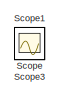
[diagram: root canvas - part 1/2, top left region]
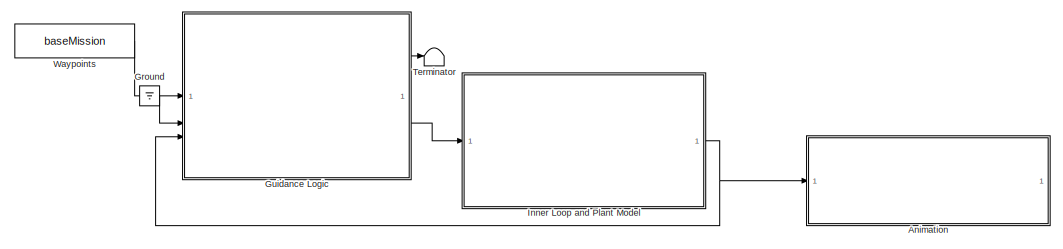
[diagram: root canvas - part 2/2, bottom right region]
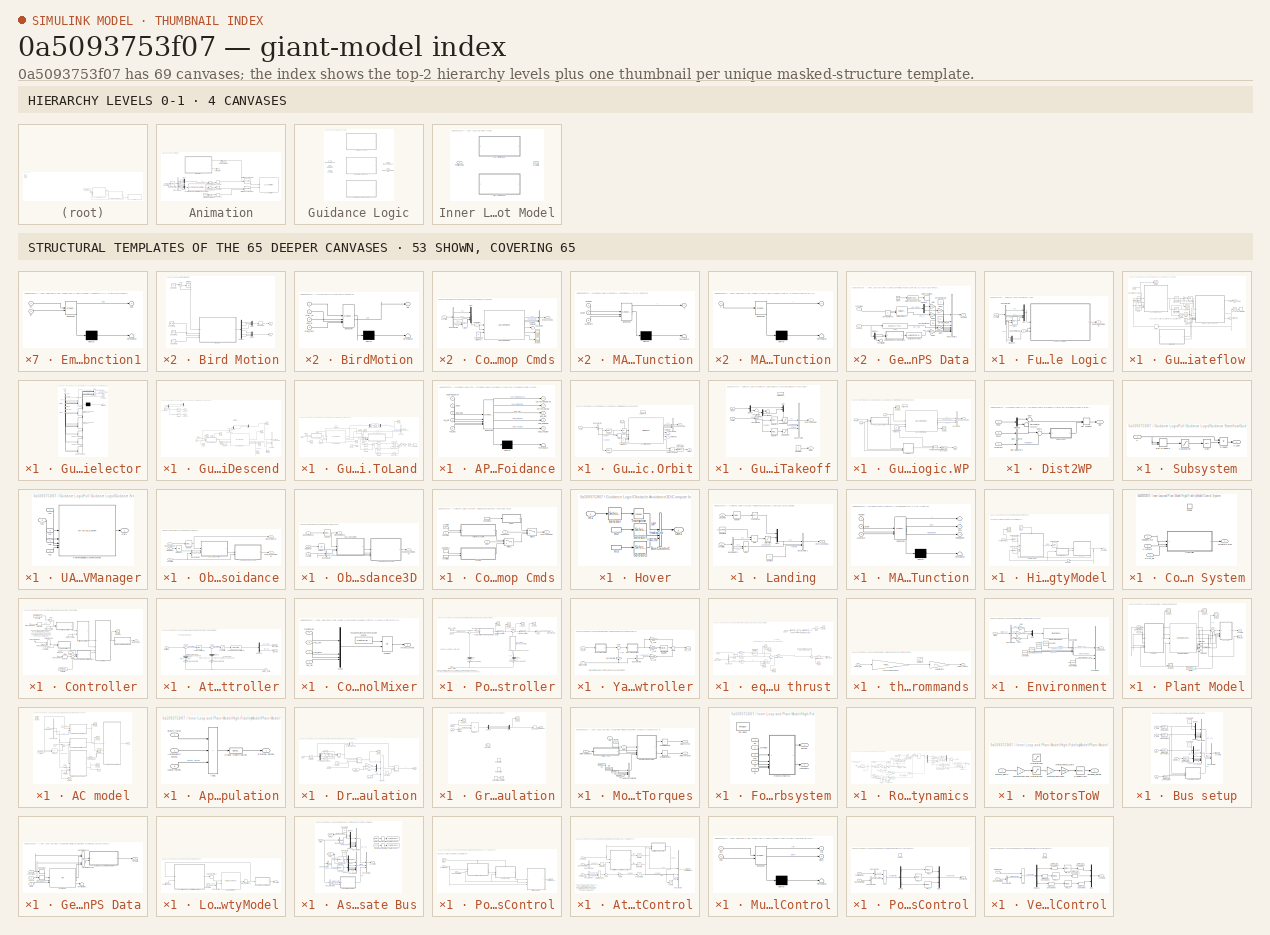
[diagram: thumbnail index - top-2 hierarchy levels (4 canvases) + 53 structural-template representatives of the remaining 65 canvases]
MODEL slx_0a5093753f07
KIND model
CONFIG AbsTol = auto
CONFIG EnableMultiTasking = on
CONFIG FixedStep = 0.005
CONFIG MaxStep = auto
CONFIG MinStep = auto
CONFIG RelTol = 1e-3
CONFIG SampleTimeConstraint = Unconstrained
CONFIG SolverName = VariableStepAuto
CONFIG StartTime = 0.0
CONFIG StopTime = 200
BLOCK [SubSystem] Animation
BLOCK [SubSystem] Animation/Bird Motion
BLOCK [SubSystem] Animation/Bird Motion/BirdMotion
  ErrorFcn = Stateflow.Translate.translate
  PermitHierarchicalResolution = ExplicitOnly
  SFBlockType = MATLAB Function
  TreatAsAtomicUnit = on
BLOCK [Demux] Animation/Bird Motion/BirdMotion/ Demux 
  Outputs = 1
BLOCK [S-Function] Animation/Bird Motion/BirdMotion/ SFunction 
  EnableBusSupport = on
  FunctionName = sf_sfun
  PortCounts = [4 2]
  SFcnIsStateOwnerBlock = off
  SFunctionDeploymentMode = off
  Tag = Stateflow S-Function 7
BLOCK [Terminator] Animation/Bird Motion/BirdMotion/ Terminator 
BLOCK [Inport] Animation/Bird Motion/BirdMotion/cycle_time
  Port = 4
BLOCK [Inport] Animation/Bird Motion/BirdMotion/end_pt
  Port = 3
BLOCK [Outport] Animation/Bird Motion/BirdMotion/out
BLOCK [Inport] Animation/Bird Motion/BirdMotion/start_pt
  Port = 2
BLOCK [Inport] Animation/Bird Motion/BirdMotion/t
BLOCK [Constant] Animation/Bird Motion/Constant
  Value = 0.02
BLOCK [Constant] Animation/Bird Motion/Constant1
  Value = bird_start
BLOCK [Constant] Animation/Bird Motion/Constant2
  Value = bird_end
BLOCK [Constant] Animation/Bird Motion/Constant3
  Value = bird_cycle
BLOCK [Demux] Animation/Bird Motion/Demux
  Outputs = 6
BLOCK [Mux] Animation/Bird Motion/Mux
  DisplayOption = bar
  Inputs = 3
BLOCK [Mux] Animation/Bird Motion/Mux1
  DisplayOption = bar
  Inputs = 3
BLOCK [Reshape] Animation/Bird Motion/Reshape
  OutputDimensionality = Row vector (2-D)
BLOCK [Sum] Animation/Bird Motion/Sum
  Inputs = |++
BLOCK [UnitDelay] Animation/Bird Motion/Unit Delay
  HasFrameUpgradeWarning = on
  SampleTime = -1
BLOCK [Outport] Animation/Bird Motion/pos
BLOCK [Outport] Animation/Bird Motion/vel
  NameLocation = top
  Port = 2
BLOCK [BusSelector] Animation/Bus Selector
  OutputSignals = pos_vel.x,pos_vel.y,pos_vel.z,attitude.yaw,attitude.pitch,attitude.roll
BLOCK [Reference] Animation/Coordinate Transformation Conversion  REF=robotcorelib/Coordinate Transformation Conversion
  SourceBlock = robotcorelib/Coordinate Transformation Conversion
  SourceType = robotics.slcore.internal.block.CoordinateTransformationConversion
BLOCK [DataTypeConversion] Animation/Data Type Conversion
  OutDataTypeStr = double
  RndMeth = Floor
  SaturateOnIntegerOverflow = off
BLOCK [DataTypeConversion] Animation/Data Type Conversion1
  OutDataTypeStr = double
  RndMeth = Floor
  SaturateOnIntegerOverflow = off
BLOCK [DataTypeConversion] Animation/Data Type Conversion2
  OutDataTypeStr = double
  RndMeth = Floor
  SaturateOnIntegerOverflow = off
BLOCK [DataTypeConversion] Animation/Data Type Conversion3
  OutDataTypeStr = double
  RndMeth = Floor
  SaturateOnIntegerOverflow = off
BLOCK [Concatenate] Animation/Matrix Concatenate
  Mode = Multidimensional array
BLOCK [Concatenate] Animation/Matrix Concatenate1
  Mode = Multidimensional array
BLOCK [Mux] Animation/Mux
  DisplayOption = bar
  Inputs = 3
BLOCK [Mux] Animation/Mux1
  DisplayOption = bar
  Inputs = 3
BLOCK [RateTransition] Animation/Rate Transition
  OutPortSampleTime = UAVSampleTime*200
BLOCK [Reshape] Animation/Reshape1
  OutputDimensionality = Row vector (2-D)
BLOCK [Reshape] Animation/Reshape2
  OutputDimensionality = Row vector (2-D)
BLOCK [Reshape] Animation/Reshape3
  OutputDimensionality = Row vector (2-D)
BLOCK [Terminator] Animation/Terminator
BLOCK [Reference] Animation/UAV Animation  REF=uavutilslib/UAV Animation
  SourceBlock = uavutilslib/UAV Animation
  SourceType = uav.sluav.internal.system.UAVAnimation
BLOCK [Inport] Animation/UAVState
BLOCK [Constant] Animation/bird rot
  Value = [1 0 0 0]
BLOCK [Ground] Ground
BLOCK [SubSystem] Guidance Logic
  Variant = on
BLOCK [SubSystem] Guidance Logic/Full Guidance Logic
  TreatAsAtomicUnit = on
  VariantControl = guidanceType==1
BLOCK [Trigonometry] Guidance Logic/Full Guidance Logic/Atan2
  Operator = atan2
BLOCK [BusSelector] Guidance Logic/Full Guidance Logic/Bus Selector1
  NameLocation = top
  OutputSignals = pos_vel.x,pos_vel.y,pos_vel.z,pos_vel.vy,pos_vel.vx
BLOCK [Mux] Guidance Logic/Full Guidance Logic/DroneVel
  DisplayOption = bar
  Inputs = 2
BLOCK [Inport] Guidance Logic/Full Guidance Logic/GCSCommands
  Port = 2
BLOCK [SubSystem] Guidance Logic/Full Guidance Logic/Guidance Stateflow
BLOCK [SubSystem] Guidance Logic/Full Guidance Logic/Guidance Stateflow/Bird Motion
BLOCK [SubSystem] Guidance Logic/Full Guidance Logic/Guidance Stateflow/Bird Motion/BirdMotion
  ErrorFcn = Stateflow.Translate.translate
  PermitHierarchicalResolution = ExplicitOnly
  SFBlockType = MATLAB Function
  TreatAsAtomicUnit = on
BLOCK [Demux] Guidance Logic/Full Guidance Logic/Guidance Stateflow/Bird Motion/BirdMotion/ Demux 
  Outputs = 1
BLOCK [S-Function] Guidance Logic/Full Guidance Logic/Guidance Stateflow/Bird Motion/BirdMotion/ SFunction 
  EnableBusSupport = on
  FunctionName = sf_sfun
  PortCounts = [4 2]
  SFcnIsStateOwnerBlock = off
  SFunctionDeploymentMode = off
  Tag = Stateflow S-Function 10
BLOCK [Terminator] Guidance Logic/Full Guidance Logic/Guidance Stateflow/Bird Motion/BirdMotion/ Terminator 
BLOCK [Inport] Guidance Logic/Full Guidance Logic/Guidance Stateflow/Bird Motion/BirdMotion/cycle_time
  Port = 4
BLOCK [Inport] Guidance Logic/Full Guidance Logic/Guidance Stateflow/Bird Motion/BirdMotion/end_pt
  Port = 3
BLOCK [Outport] Guidance Logic/Full Guidance Logic/Guidance Stateflow/Bird Motion/BirdMotion/out
BLOCK [Inport] Guidance Logic/Full Guidance Logic/Guidance Stateflow/Bird Motion/BirdMotion/start_pt
  Port = 2
BLOCK [Inport] Guidance Logic/Full Guidance Logic/Guidance Stateflow/Bird Motion/BirdMotion/t
BLOCK [Constant] Guidance Logic/Full Guidance Logic/Guidance Stateflow/Bird Motion/Constant
  Value = 0.02
BLOCK [Constant] Guidance Logic/Full Guidance Logic/Guidance Stateflow/Bird Motion/Constant1
  Value = bird_start
BLOCK [Constant] Guidance Logic/Full Guidance Logic/Guidance Stateflow/Bird Motion/Constant2
  Value = bird_end
BLOCK [Constant] Guidance Logic/Full Guidance Logic/Guidance Stateflow/Bird Motion/Constant3
  Value = bird_cycle
BLOCK [Demux] Guidance Logic/Full Guidance Logic/Guidance Stateflow/Bird Motion/Demux
  Outputs = 6
BLOCK [Mux] Guidance Logic/Full Guidance Logic/Guidance Stateflow/Bird Motion/Mux
  DisplayOption = bar
  Inputs = 3
BLOCK [Mux] Guidance Logic/Full Guidance Logic/Guidance Stateflow/Bird Motion/Mux1
  DisplayOption = bar
  Inputs = 3
BLOCK [Reshape] Guidance Logic/Full Guidance Logic/Guidance Stateflow/Bird Motion/Reshape
  OutputDimensionality = Row vector (2-D)
BLOCK [Sum] Guidance Logic/Full Guidance Logic/Guidance Stateflow/Bird Motion/Sum
  Inputs = |++
BLOCK [UnitDelay] Guidance Logic/Full Guidance Logic/Guidance Stateflow/Bird Motion/Unit Delay
  HasFrameUpgradeWarning = on
  SampleTime = -1
BLOCK [Outport] Guidance Logic/Full Guidance Logic/Guidance Stateflow/Bird Motion/pos
BLOCK [Outport] Guidance Logic/Full Guidance Logic/Guidance Stateflow/Bird Motion/vel
  NameLocation = top
  Port = 2
BLOCK [BusSelector] Guidance Logic/Full Guidance Logic/Guidance Stateflow/Bus Selector
  OutputSignals = mode
BLOCK [Reference] Guidance Logic/Full Guidance Logic/Guidance Stateflow/Compare To Constant  REF=simulink/Logic and Bit
Operations/Compare
To Constant
  SourceBlock = simulink/Logic and Bit\nOperations/Compare\nTo Constant
  SourceType = Compare To Constant
BLOCK [Delay] Guidance Logic/Full Guidance Logic/Guidance Stateflow/Delay
  DelayLength = 1
  InitialCondition = 0
  InputPortMap = u0
BLOCK [Inport] Guidance Logic/Full Guidance Logic/Guidance Stateflow/DroneVel
  Port = 3
BLOCK [From] Guidance Logic/Full Guidance Logic/Guidance Stateflow/From
  GotoTag = pose
BLOCK [Inport] Guidance Logic/Full Guidance Logic/Guidance Stateflow/GCSCommands
  Port = 2
BLOCK [Goto] Guidance Logic/Full Guidance Logic/Guidance Stateflow/Goto5
  GotoTag = pose
BLOCK [SubSystem] Guidance Logic/Full Guidance Logic/Guidance Stateflow/Guidance Mode Selector
  ErrorFcn = Stateflow.Translate.translate
  PermitHierarchicalResolution = ExplicitOnly
  SFBlockType = Chart
  TreatAsAtomicUnit = on
BLOCK [Demux] Guidance Logic/Full Guidance Logic/Guidance Stateflow/Guidance Mode Selector/ Demux 
  Outputs = 1
BLOCK [Merge] Guidance Logic/Full Guidance Logic/Guidance Stateflow/Guidance Mode Selector/ Merge 
  Inputs = 6
BLOCK [Merge] Guidance Logic/Full Guidance Logic/Guidance Stateflow/Guidance Mode Selector/ Merge 1
  Inputs = 5
BLOCK [S-Function] Guidance Logic/Full Guidance Logic/Guidance Stateflow/Guidance Mode Selector/ SFunction 
  EnableBusSupport = on
  FunctionName = sf_sfun
  PortCounts = [8 4]
  SFcnIsStateOwnerBlock = off
  SFunctionDeploymentMode = off
  Tag = Stateflow S-Function 1
BLOCK [Terminator] Guidance Logic/Full Guidance Logic/Guidance Stateflow/Guidance Mode Selector/ Terminator 
BLOCK [Inport] Guidance Logic/Full Guidance Logic/Guidance Stateflow/Guidance Mode Selector/BirdPos
  Port = 6
BLOCK [Inport] Guidance Logic/Full Guidance Logic/Guidance Stateflow/Guidance Mode Selector/BirdVel
  Port = 8
BLOCK [Inport] Guidance Logic/Full Guidance Logic/Guidance Stateflow/Guidance Mode Selector/DroneVel
  Port = 7
BLOCK [Inport] Guidance Logic/Full Guidance Logic/Guidance Stateflow/Guidance Mode Selector/FromWP
  Port = 3
BLOCK [Outport] Guidance Logic/Full Guidance Logic/Guidance Stateflow/Guidance Mode Selector/GdncMode
  Port = 3
BLOCK [SubSystem] Guidance Logic/Full Guidance Logic/Guidance Stateflow/Guidance Mode Selector/GuidanceLogic.Land.Descend
  PreDeleteFcn = Stateflow.SLINSF.SimulinkMan.removePreDeleteFcn
  UndoDeleteFcn = Stateflow.SLINSF.SimulinkMan.restorePreDeleteFcn
BLOCK [ActionPort] Guidance Logic/Full Guidance Logic/Guidance Stateflow/Guidance Mode Selector/GuidanceLogic.Land.Descend/Action Port
  CopyFcn = Stateflow.SLINSF.SimulinkMan.removeBlockPreDeleteFcn
  PreDeleteFcn = Stateflow.SLINSF.SimulinkMan.unsafePredeleteFcn
BLOCK [BusCreator] Guidance Logic/Full Guidance Logic/Guidance Stateflow/Guidance Mode Selector/GuidanceLogic.Land.Descend/Bus Creator
  DisplayOption = bar
  InheritFromInputs = off
  Inputs = 3
  NonVirtualBus = on
  OutDataTypeStr = Bus: innerLoopCmdsBus
BLOCK [BusSelector] Guidance Logic/Full Guidance Logic/Guidance Stateflow/Guidance Mode Selector/GuidanceLogic.Land.Descend/Bus Selector
  Commented = on
  OutputSignals = position,params
BLOCK [BusSelector] Guidance Logic/Full Guidance Logic/Guidance Stateflow/Guidance Mode Selector/GuidanceLogic.Land.Descend/Bus Selector1
  OutputSignals = position
BLOCK [Demux] Guidance Logic/Full Guidance Logic/Guidance Stateflow/Guidance Mode Selector/GuidanceLogic.Land.Descend/Demux1
  Commented = on
  Outputs = [2 1]
BLOCK [Demux] Guidance Logic/Full Guidance Logic/Guidance Stateflow/Guidance Mode Selector/GuidanceLogic.Land.Descend/Demux2
  Outputs = [2 1]
BLOCK [Inport] Guidance Logic/Full Guidance Logic/Guidance Stateflow/Guidance Mode Selector/GuidanceLogic.Land.Descend/FromWP
  Port = 3
BLOCK [Saturate] Guidance Logic/Full Guidance Logic/Guidance Stateflow/Guidance Mode Selector/GuidanceLogic.Land.Descend/Hdg Cmd Sat
  AttributesFormatString = [%<UpperLimit> %<LowerLimit>]
  Commented = on
  LowerLimit = -pi
  UpperLimit = pi
BLOCK [Outport] Guidance Logic/Full Guidance Logic/Guidance Stateflow/Guidance Mode Selector/GuidanceLogic.Land.Descend/InnerLoopCmds
  OutDataTypeStr = Bus: innerLoopCmdsBus
BLOCK [Constant] Guidance Logic/Full Guidance Logic/Guidance Stateflow/Guidance Mode Selector/GuidanceLogic.Land.Descend/Lookahead Distance
  OutDataTypeStr = single
  Value = 5
BLOCK [SubSystem] Guidance Logic/Full Guidance Logic/Guidance Stateflow/Guidance Mode Selector/GuidanceLogic.Land.Descend/MATLAB Function
  ErrorFcn = Stateflow.Translate.translate
  PermitHierarchicalResolution = ExplicitOnly
  SFBlockType = MATLAB Function
  TreatAsAtomicUnit = on
BLOCK [Demux] Guidance Logic/Full Guidance Logic/Guidance Stateflow/Guidance Mode Selector/GuidanceLogic.Land.Descend/MATLAB Function/ Demux 
  Outputs = 1
BLOCK [S-Function] Guidance Logic/Full Guidance Logic/Guidance Stateflow/Guidance Mode Selector/GuidanceLogic.Land.Descend/MATLAB Function/ SFunction 
  EnableBusSupport = on
  FunctionName = sf_sfun
  PortCounts = [2 2]
  SFcnIsStateOwnerBlock = off
  SFunctionDeploymentMode = off
  Tag = Stateflow S-Function 5
BLOCK [Terminator] Guidance Logic/Full Guidance Logic/Guidance Stateflow/Guidance Mode Selector/GuidanceLogic.Land.Descend/MATLAB Function/ Terminator 
BLOCK [Inport] Guidance Logic/Full Guidance Logic/Guidance Stateflow/Guidance Mode Selector/GuidanceLogic.Land.Descend/MATLAB Function/FromWP
BLOCK [Inport] Guidance Logic/Full Guidance Logic/Guidance Stateflow/Guidance Mode Selector/GuidanceLogic.Land.Descend/MATLAB Function/ToWP
  Port = 2
BLOCK [Outport] Guidance Logic/Full Guidance Logic/Guidance Stateflow/Guidance Mode Selector/GuidanceLogic.Land.Descend/MATLAB Function/wps
BLOCK [Mux] Guidance Logic/Full Guidance Logic/Guidance Stateflow/Guidance Mode Selector/GuidanceLogic.Land.Descend/Mux
  Commented = on
  DisplayOption = bar
  Inputs = 2
BLOCK [Mux] Guidance Logic/Full Guidance Logic/Guidance Stateflow/Guidance Mode Selector/GuidanceLogic.Land.Descend/Mux1
  DisplayOption = bar
  Inputs = 2
BLOCK [Inport] Guidance Logic/Full Guidance Logic/Guidance Stateflow/Guidance Mode Selector/GuidanceLogic.Land.Descend/Pose
  Port = 2
BLOCK [Scope] Guidance Logic/Full Guidance Logic/Guidance Stateflow/Guidance Mode Selector/GuidanceLogic.Land.Descend/Scope
  Floating = off
  NumInputPorts = 1
  ScopeSpecificationString = Simulink.scopes.TimeScopeBlockCfg('CurrentConfiguration', extmgr.ConfigurationSet(extmgr.Configuration('Core','General UI',true),extmgr.Configuration('Core','Source UI',true),extmgr.Configuration('Sources','WiredSimulink',true,'DataLoggingVariableName','ScopeData1'),extmgr.Configuration('Visuals','Time Domain',true,'SerializedDisplays',{struct('MinYLimReal','1.38558','MaxYLimReal','12.44428','YLab...<+1569ch>
BLOCK [Scope] Guidance Logic/Full Guidance Logic/Guidance Stateflow/Guidance Mode Selector/GuidanceLogic.Land.Descend/Scope1
  Floating = off
  NumInputPorts = 1
  ScopeSpecificationString = Simulink.scopes.TimeScopeBlockCfg('CurrentConfiguration', extmgr.ConfigurationSet(extmgr.Configuration('Core','General UI',true),extmgr.Configuration('Core','Source UI',true),extmgr.Configuration('Sources','WiredSimulink',true,'DataLoggingVariableName','ScopeData2'),extmgr.Configuration('Visuals','Time Domain',true,'SerializedDisplays',{struct('MinYLimReal','-134.5127','MaxYLimReal','19.3903','YLa...<+1983ch>
BLOCK [Scope] Guidance Logic/Full Guidance Logic/Guidance Stateflow/Guidance Mode Selector/GuidanceLogic.Land.Descend/Scope2
  Floating = off
  NumInputPorts = 1
  ScopeSpecificationString = Simulink.scopes.TimeScopeBlockCfg('CurrentConfiguration', extmgr.ConfigurationSet(extmgr.Configuration('Core','General UI',true),extmgr.Configuration('Core','Source UI',true),extmgr.Configuration('Sources','WiredSimulink',true,'DataLoggingVariableName','ScopeData3'),extmgr.Configuration('Visuals','Time Domain',true,'SerializedDisplays',{struct('MinYLimReal','-133.89573','MaxYLimReal','17.09953','Y...<+2000ch>
BLOCK [Scope] Guidance Logic/Full Guidance Logic/Guidance Stateflow/Guidance Mode Selector/GuidanceLogic.Land.Descend/Scope3
  Floating = off
  NumInputPorts = 1
  ScopeSpecificationString = Simulink.scopes.TimeScopeBlockCfg('CurrentConfiguration', extmgr.ConfigurationSet(extmgr.Configuration('Core','General UI',true),extmgr.Configuration('Core','Source UI',true),extmgr.Configuration('Sources','WiredSimulink',true,'DataLoggingVariableName','ScopeData4'),extmgr.Configuration('Visuals','Time Domain',true,'SerializedDisplays',{struct('MinYLimReal','-26.99118','MaxYLimReal','6.16468','YLa...<+1880ch>
BLOCK [Scope] Guidance Logic/Full Guidance Logic/Guidance Stateflow/Guidance Mode Selector/GuidanceLogic.Land.Descend/Scope4
  Floating = off
  NumInputPorts = 1
  ScopeSpecificationString = Simulink.scopes.TimeScopeBlockCfg('CurrentConfiguration', extmgr.ConfigurationSet(extmgr.Configuration('Core','General UI',true),extmgr.Configuration('Core','Source UI',true),extmgr.Configuration('Sources','WiredSimulink',true,'DataLoggingVariableName','ScopeData5'),extmgr.Configuration('Visuals','Time Domain',true,'SerializedDisplays',{struct('MinYLimReal','-134.27812','MaxYLimReal','16.89295','Y...<+1876ch>
BLOCK [Scope] Guidance Logic/Full Guidance Logic/Guidance Stateflow/Guidance Mode Selector/GuidanceLogic.Land.Descend/Scope5
  Floating = off
  NumInputPorts = 1
  ScopeSpecificationString = Simulink.scopes.TimeScopeBlockCfg('CurrentConfiguration', extmgr.ConfigurationSet(extmgr.Configuration('Core','General UI',true),extmgr.Configuration('Core','Source UI',true),extmgr.Configuration('Sources','WiredSimulink',true,'DataLoggingVariableName','ScopeData6'),extmgr.Configuration('Visuals','Time Domain',true,'SerializedDisplays',{struct('MinYLimReal','1.33996','MaxYLimReal','2.66447','YLabe...<+1485ch>
BLOCK [Scope] Guidance Logic/Full Guidance Logic/Guidance Stateflow/Guidance Mode Selector/GuidanceLogic.Land.Descend/Scope6
  Floating = off
  NumInputPorts = 1
  ScopeSpecificationString = Simulink.scopes.TimeScopeBlockCfg('CurrentConfiguration', extmgr.ConfigurationSet(extmgr.Configuration('Core','General UI',true),extmgr.Configuration('Core','Source UI',true),extmgr.Configuration('Sources','WiredSimulink',true,'DataLoggingVariableName','ScopeData7'),extmgr.Configuration('Visuals','Time Domain',true,'SerializedDisplays',{struct('MinYLimReal','-1.00000','MaxYLimReal','1.00000','YLab...<+1483ch>
BLOCK [Scope] Guidance Logic/Full Guidance Logic/Guidance Stateflow/Guidance Mode Selector/GuidanceLogic.Land.Descend/Scope8
  Floating = off
  NumInputPorts = 1
  ScopeSpecificationString = Simulink.scopes.TimeScopeBlockCfg('CurrentConfiguration', extmgr.ConfigurationSet(extmgr.Configuration('Core','General UI',true),extmgr.Configuration('Core','Source UI',true),extmgr.Configuration('Sources','WiredSimulink',true,'DataLoggingVariableName','ScopeData4'),extmgr.Configuration('Visuals','Time Domain',true,'SerializedDisplays',{struct('MinYLimReal','-134.0127','MaxYLimReal','14.8903','YLa...<+1837ch>
BLOCK [Scope] Guidance Logic/Full Guidance Logic/Guidance Stateflow/Guidance Mode Selector/GuidanceLogic.Land.Descend/Scope9
  Floating = off
  NumInputPorts = 1
  ScopeSpecificationString = Simulink.scopes.TimeScopeBlockCfg('CurrentConfiguration', extmgr.ConfigurationSet(extmgr.Configuration('Core','General UI',true),extmgr.Configuration('Core','Source UI',true),extmgr.Configuration('Sources','WiredSimulink',true,'DataLoggingVariableName','ScopeData5'),extmgr.Configuration('Visuals','Time Domain',true,'SerializedDisplays',{struct('MinYLimReal','-134.0127','MaxYLimReal','14.8903','YLa...<+1973ch>
BLOCK [Selector] Guidance Logic/Full Guidance Logic/Guidance Stateflow/Guidance Mode Selector/GuidanceLogic.Land.Descend/Selector1
  Commented = on
  IndexOptions = Index vector (dialog)
  Indices = 4
  InputPortWidth = 4
  OutputSizes = 1
BLOCK [Selector] Guidance Logic/Full Guidance Logic/Guidance Stateflow/Guidance Mode Selector/GuidanceLogic.Land.Descend/Selector3
  Commented = on
  IndexOptions = Index vector (dialog)
  Indices = 4
  InputPortWidth = 4
  OutputSizes = 1
BLOCK [Inport] Guidance Logic/Full Guidance Logic/Guidance Stateflow/Guidance Mode Selector/GuidanceLogic.Land.Descend/ToWP
BLOCK [Reference] Guidance Logic/Full Guidance Logic/Guidance Stateflow/Guidance Mode Selector/GuidanceLogic.Land.Descend/Waypoint Follower  REF=uavalgslib/Waypoint Follower
  SourceBlock = uavalgslib/Waypoint Follower
  SourceType = uav.sluav.internal.system.WaypointFollower
BLOCK [Saturate] Guidance Logic/Full Guidance Logic/Guidance Stateflow/Guidance Mode Selector/GuidanceLogic.Land.Descend/Yaw Cmd Sat
  AttributesFormatString = [%<UpperLimit> %<LowerLimit>]
  Commented = on
  LowerLimit = -pi
  UpperLimit = pi
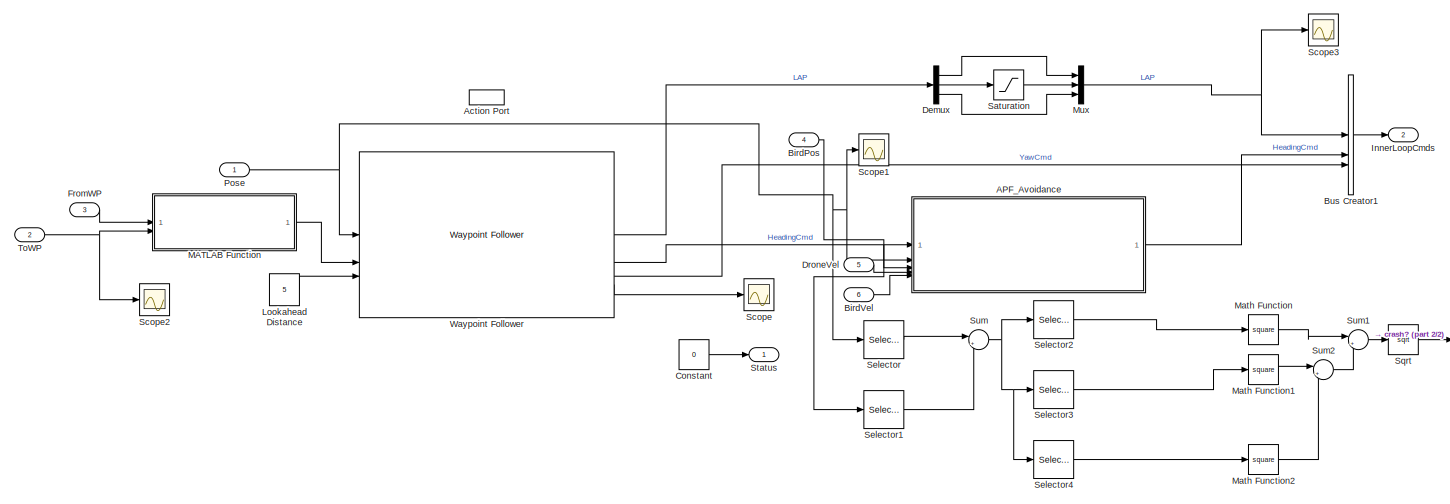
[diagram: Guidance Logic/Full Guidance Logic/Guidance Stateflow/Guidance Mode Selector/GuidanceLogic.Land.ToLand - part 1/2, most of the canvas]
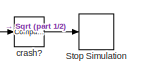
[diagram: Guidance Logic/Full Guidance Logic/Guidance Stateflow/Guidance Mode Selector/GuidanceLogic.Land.ToLand - part 2/2, bottom right region]
BLOCK [SubSystem] Guidance Logic/Full Guidance Logic/Guidance Stateflow/Guidance Mode Selector/GuidanceLogic.Land.ToLand
  PreDeleteFcn = Stateflow.SLINSF.SimulinkMan.removePreDeleteFcn
  UndoDeleteFcn = Stateflow.SLINSF.SimulinkMan.restorePreDeleteFcn
BLOCK [SubSystem] Guidance Logic/Full Guidance Logic/Guidance Stateflow/Guidance Mode Selector/GuidanceLogic.Land.ToLand/APF_Avoidance
  Commented = through
  ErrorFcn = Stateflow.Translate.translate
  PermitHierarchicalResolution = ExplicitOnly
  SFBlockType = MATLAB Function
  TreatAsAtomicUnit = on
BLOCK [Demux] Guidance Logic/Full Guidance Logic/Guidance Stateflow/Guidance Mode Selector/GuidanceLogic.Land.ToLand/APF_Avoidance/ Demux 
  Outputs = 1
BLOCK [S-Function] Guidance Logic/Full Guidance Logic/Guidance Stateflow/Guidance Mode Selector/GuidanceLogic.Land.ToLand/APF_Avoidance/ SFunction 
  EnableBusSupport = on
  FunctionName = sf_sfun
  PortCounts = [5 6]
  SFcnIsStateOwnerBlock = off
  SFunctionDeploymentMode = off
  Tag = Stateflow S-Function 6
BLOCK [Terminator] Guidance Logic/Full Guidance Logic/Guidance Stateflow/Guidance Mode Selector/GuidanceLogic.Land.ToLand/APF_Avoidance/ Terminator 
BLOCK [Outport] Guidance Logic/Full Guidance Logic/Guidance Stateflow/Guidance Mode Selector/GuidanceLogic.Land.ToLand/APF_Avoidance/correctedCourse
BLOCK [Outport] Guidance Logic/Full Guidance Logic/Guidance Stateflow/Guidance Mode Selector/GuidanceLogic.Land.ToLand/APF_Avoidance/correctedYaw
  Port = 2
BLOCK [Outport] Guidance Logic/Full Guidance Logic/Guidance Stateflow/Guidance Mode Selector/GuidanceLogic.Land.ToLand/APF_Avoidance/dbg_dist
  Port = 3
BLOCK [Outport] Guidance Logic/Full Guidance Logic/Guidance Stateflow/Guidance Mode Selector/GuidanceLogic.Land.ToLand/APF_Avoidance/dbg_inRange
  Port = 4
BLOCK [Outport] Guidance Logic/Full Guidance Logic/Guidance Stateflow/Guidance Mode Selector/GuidanceLogic.Land.ToLand/APF_Avoidance/dbg_repulse
  Port = 5
BLOCK [Inport] Guidance Logic/Full Guidance Logic/Guidance Stateflow/Guidance Mode Selector/GuidanceLogic.Land.ToLand/APF_Avoidance/desiredCourse
BLOCK [Inport] Guidance Logic/Full Guidance Logic/Guidance Stateflow/Guidance Mode Selector/GuidanceLogic.Land.ToLand/APF_Avoidance/obstacle
  Port = 3
BLOCK [Inport] Guidance Logic/Full Guidance Logic/Guidance Stateflow/Guidance Mode Selector/GuidanceLogic.Land.ToLand/APF_Avoidance/pose
  Port = 2
BLOCK [Inport] Guidance Logic/Full Guidance Logic/Guidance Stateflow/Guidance Mode Selector/GuidanceLogic.Land.ToLand/APF_Avoidance/vel_obs
  Port = 5
BLOCK [Inport] Guidance Logic/Full Guidance Logic/Guidance Stateflow/Guidance Mode Selector/GuidanceLogic.Land.ToLand/APF_Avoidance/vel_self
  Port = 4
BLOCK [ActionPort] Guidance Logic/Full Guidance Logic/Guidance Stateflow/Guidance Mode Selector/GuidanceLogic.Land.ToLand/Action Port
  CopyFcn = Stateflow.SLINSF.SimulinkMan.removeBlockPreDeleteFcn
  PreDeleteFcn = Stateflow.SLINSF.SimulinkMan.unsafePredeleteFcn
BLOCK [Inport] Guidance Logic/Full Guidance Logic/Guidance Stateflow/Guidance Mode Selector/GuidanceLogic.Land.ToLand/BirdPos 
  Port = 4
BLOCK [Inport] Guidance Logic/Full Guidance Logic/Guidance Stateflow/Guidance Mode Selector/GuidanceLogic.Land.ToLand/BirdVel
  Port = 6
BLOCK [BusCreator] Guidance Logic/Full Guidance Logic/Guidance Stateflow/Guidance Mode Selector/GuidanceLogic.Land.ToLand/Bus Creator1
  DisplayOption = bar
  InheritFromInputs = on
  Inputs = 3
  NonVirtualBus = on
  OutDataTypeStr = Bus: innerLoopCmdsBus
BLOCK [Constant] Guidance Logic/Full Guidance Logic/Guidance Stateflow/Guidance Mode Selector/GuidanceLogic.Land.ToLand/Constant
  OutDataTypeStr = uint8
  Value = 0
BLOCK [Demux] Guidance Logic/Full Guidance Logic/Guidance Stateflow/Guidance Mode Selector/GuidanceLogic.Land.ToLand/Demux
  Outputs = 3
BLOCK [Inport] Guidance Logic/Full Guidance Logic/Guidance Stateflow/Guidance Mode Selector/GuidanceLogic.Land.ToLand/DroneVel
  Port = 5
BLOCK [Inport] Guidance Logic/Full Guidance Logic/Guidance Stateflow/Guidance Mode Selector/GuidanceLogic.Land.ToLand/FromWP
  Port = 3
BLOCK [Outport] Guidance Logic/Full Guidance Logic/Guidance Stateflow/Guidance Mode Selector/GuidanceLogic.Land.ToLand/InnerLoopCmds
  OutDataTypeStr = Bus: innerLoopCmdsBus
  Port = 2
BLOCK [Constant] Guidance Logic/Full Guidance Logic/Guidance Stateflow/Guidance Mode Selector/GuidanceLogic.Land.ToLand/Lookahead Distance
  OutDataTypeStr = single
  Value = 5
BLOCK [SubSystem] Guidance Logic/Full Guidance Logic/Guidance Stateflow/Guidance Mode Selector/GuidanceLogic.Land.ToLand/MATLAB Function
  ErrorFcn = Stateflow.Translate.translate
  PermitHierarchicalResolution = ExplicitOnly
  SFBlockType = MATLAB Function
  TreatAsAtomicUnit = on
BLOCK [Demux] Guidance Logic/Full Guidance Logic/Guidance Stateflow/Guidance Mode Selector/GuidanceLogic.Land.ToLand/MATLAB Function/ Demux 
  Outputs = 1
BLOCK [S-Function] Guidance Logic/Full Guidance Logic/Guidance Stateflow/Guidance Mode Selector/GuidanceLogic.Land.ToLand/MATLAB Function/ SFunction 
  EnableBusSupport = on
  FunctionName = sf_sfun
  PortCounts = [2 2]
  SFcnIsStateOwnerBlock = off
  SFunctionDeploymentMode = off
  Tag = Stateflow S-Function 2
BLOCK [Terminator] Guidance Logic/Full Guidance Logic/Guidance Stateflow/Guidance Mode Selector/GuidanceLogic.Land.ToLand/MATLAB Function/ Terminator 
BLOCK [Inport] Guidance Logic/Full Guidance Logic/Guidance Stateflow/Guidance Mode Selector/GuidanceLogic.Land.ToLand/MATLAB Function/FromWP
BLOCK [Inport] Guidance Logic/Full Guidance Logic/Guidance Stateflow/Guidance Mode Selector/GuidanceLogic.Land.ToLand/MATLAB Function/ToWP
  Port = 2
BLOCK [Outport] Guidance Logic/Full Guidance Logic/Guidance Stateflow/Guidance Mode Selector/GuidanceLogic.Land.ToLand/MATLAB Function/wps
BLOCK [Math] Guidance Logic/Full Guidance Logic/Guidance Stateflow/Guidance Mode Selector/GuidanceLogic.Land.ToLand/Math Function
  Operator = square
BLOCK [Math] Guidance Logic/Full Guidance Logic/Guidance Stateflow/Guidance Mode Selector/GuidanceLogic.Land.ToLand/Math Function1
  Operator = square
BLOCK [Math] Guidance Logic/Full Guidance Logic/Guidance Stateflow/Guidance Mode Selector/GuidanceLogic.Land.ToLand/Math Function2
  Operator = square
BLOCK [Mux] Guidance Logic/Full Guidance Logic/Guidance Stateflow/Guidance Mode Selector/GuidanceLogic.Land.ToLand/Mux
  DisplayOption = bar
  Inputs = 3
BLOCK [Inport] Guidance Logic/Full Guidance Logic/Guidance Stateflow/Guidance Mode Selector/GuidanceLogic.Land.ToLand/Pose
BLOCK [Saturate] Guidance Logic/Full Guidance Logic/Guidance Stateflow/Guidance Mode Selector/GuidanceLogic.Land.ToLand/Saturation
  LowerLimit = -80
  UpperLimit = -12
BLOCK [Scope] Guidance Logic/Full Guidance Logic/Guidance Stateflow/Guidance Mode Selector/GuidanceLogic.Land.ToLand/Scope
  Floating = off
  NumInputPorts = 1
  ScopeSpecificationString = Simulink.scopes.TimeScopeBlockCfg('CurrentConfiguration', extmgr.ConfigurationSet(extmgr.Configuration('Core','General UI',true),extmgr.Configuration('Core','Source UI',true),extmgr.Configuration('Sources','WiredSimulink',true,'DataLoggingVariableName','ScopeData1'),extmgr.Configuration('Visuals','Time Domain',true,'SerializedDisplays',{struct('MinYLimReal','1.38558','MaxYLimReal','12.44428','YLab...<+1569ch>
BLOCK [Scope] Guidance Logic/Full Guidance Logic/Guidance Stateflow/Guidance Mode Selector/GuidanceLogic.Land.ToLand/Scope1
  Floating = off
  NumInputPorts = 1
  ScopeSpecificationString = Simulink.scopes.TimeScopeBlockCfg('CurrentConfiguration', extmgr.ConfigurationSet(extmgr.Configuration('Core','General UI',true),extmgr.Configuration('Core','Source UI',true),extmgr.Configuration('Sources','WiredSimulink',true,'DataLoggingVariableName','ScopeData3'),extmgr.Configuration('Visuals','Time Domain',true,'SerializedDisplays',{struct('MinYLimReal','-137.33614','MaxYLimReal','17.42716','Y...<+1841ch>
BLOCK [Scope] Guidance Logic/Full Guidance Logic/Guidance Stateflow/Guidance Mode Selector/GuidanceLogic.Land.ToLand/Scope2
  Floating = off
  NumInputPorts = 1
  ScopeSpecificationString = Simulink.scopes.TimeScopeBlockCfg('CurrentConfiguration', extmgr.ConfigurationSet(extmgr.Configuration('Core','General UI',true),extmgr.Configuration('Core','Source UI',true),extmgr.Configuration('Sources','WiredSimulink',true,'DataLoggingVariableName','ScopeData9'),extmgr.Configuration('Visuals','Time Domain',true,'SerializedDisplays',{struct('MinYLimReal','-134.5127','MaxYLimReal','19.3903','YLa...<+1943ch>
BLOCK [Scope] Guidance Logic/Full Guidance Logic/Guidance Stateflow/Guidance Mode Selector/GuidanceLogic.Land.ToLand/Scope3
  Floating = off
  NumInputPorts = 1
  ScopeSpecificationString = Simulink.scopes.TimeScopeBlockCfg('CurrentConfiguration', extmgr.ConfigurationSet(extmgr.Configuration('Core','General UI',true),extmgr.Configuration('Core','Source UI',true),extmgr.Configuration('Sources','WiredSimulink',true,'DataLoggingVariableName','ScopeData1'),extmgr.Configuration('Visuals','Time Domain',true,'SerializedDisplays',{struct('MinYLimReal','-25.5748','MaxYLimReal','-7.63284','YLa...<+1852ch>
BLOCK [Selector] Guidance Logic/Full Guidance Logic/Guidance Stateflow/Guidance Mode Selector/GuidanceLogic.Land.ToLand/Selector
  IndexOptions = Index vector (dialog)
  Indices = [1 2 3]
  InputPortWidth = 4
  OutputSizes = 1
BLOCK [Selector] Guidance Logic/Full Guidance Logic/Guidance Stateflow/Guidance Mode Selector/GuidanceLogic.Land.ToLand/Selector1
  IndexOptions = Index vector (dialog)
  Indices = [1 2 3]
  InputPortWidth = 3
  OutputSizes = 1
BLOCK [Selector] Guidance Logic/Full Guidance Logic/Guidance Stateflow/Guidance Mode Selector/GuidanceLogic.Land.ToLand/Selector2
  IndexOptions = Index vector (dialog)
  Indices = [1]
  InputPortWidth = 3
  OutputSizes = 1
BLOCK [Selector] Guidance Logic/Full Guidance Logic/Guidance Stateflow/Guidance Mode Selector/GuidanceLogic.Land.ToLand/Selector3
  IndexOptions = Index vector (dialog)
  Indices = [2]
  InputPortWidth = 3
  OutputSizes = 1
BLOCK [Selector] Guidance Logic/Full Guidance Logic/Guidance Stateflow/Guidance Mode Selector/GuidanceLogic.Land.ToLand/Selector4
  IndexOptions = Index vector (dialog)
  Indices = [3]
  InputPortWidth = 3
  OutputSizes = 1
BLOCK [Sqrt] Guidance Logic/Full Guidance Logic/Guidance Stateflow/Guidance Mode Selector/GuidanceLogic.Land.ToLand/Sqrt
BLOCK [Outport] Guidance Logic/Full Guidance Logic/Guidance Stateflow/Guidance Mode Selector/GuidanceLogic.Land.ToLand/Status
BLOCK [Stop] Guidance Logic/Full Guidance Logic/Guidance Stateflow/Guidance Mode Selector/GuidanceLogic.Land.ToLand/Stop Simulation
  Commented = on
BLOCK [Sum] Guidance Logic/Full Guidance Logic/Guidance Stateflow/Guidance Mode Selector/GuidanceLogic.Land.ToLand/Sum
  Inputs = |+-
BLOCK [Sum] Guidance Logic/Full Guidance Logic/Guidance Stateflow/Guidance Mode Selector/GuidanceLogic.Land.ToLand/Sum1
  Inputs = |++
BLOCK [Sum] Guidance Logic/Full Guidance Logic/Guidance Stateflow/Guidance Mode Selector/GuidanceLogic.Land.ToLand/Sum2
  Inputs = |++
BLOCK [Inport] Guidance Logic/Full Guidance Logic/Guidance Stateflow/Guidance Mode Selector/GuidanceLogic.Land.ToLand/ToWP
  Port = 2
BLOCK [Reference] Guidance Logic/Full Guidance Logic/Guidance Stateflow/Guidance Mode Selector/GuidanceLogic.Land.ToLand/Waypoint Follower  REF=uavalgslib/Waypoint Follower
  SourceBlock = uavalgslib/Waypoint Follower
  SourceType = uav.sluav.internal.system.WaypointFollower
BLOCK [Reference] Guidance Logic/Full Guidance Logic/Guidance Stateflow/Guidance Mode Selector/GuidanceLogic.Land.ToLand/crash?  REF=simulink/Logic and Bit
Operations/Compare
To Constant
  SourceBlock = simulink/Logic and Bit\nOperations/Compare\nTo Constant
  SourceType = Compare To Constant
BLOCK [SubSystem] Guidance Logic/Full Guidance Logic/Guidance Stateflow/Guidance Mode Selector/GuidanceLogic.Orbit
  PreDeleteFcn = Stateflow.SLINSF.SimulinkMan.removePreDeleteFcn
  UndoDeleteFcn = Stateflow.SLINSF.SimulinkMan.restorePreDeleteFcn
BLOCK [Abs] Guidance Logic/Full Guidance Logic/Guidance Stateflow/Guidance Mode Selector/GuidanceLogic.Orbit/Abs
  SaturateOnIntegerOverflow = off
BLOCK [ActionPort] Guidance Logic/Full Guidance Logic/Guidance Stateflow/Guidance Mode Selector/GuidanceLogic.Orbit/Action Port
  CopyFcn = Stateflow.SLINSF.SimulinkMan.removeBlockPreDeleteFcn
  PreDeleteFcn = Stateflow.SLINSF.SimulinkMan.unsafePredeleteFcn
BLOCK [BusCreator] Guidance Logic/Full Guidance Logic/Guidance Stateflow/Guidance Mode Selector/GuidanceLogic.Orbit/Bus Creator
  DisplayOption = bar
  InheritFromInputs = on
  Inputs = 3
  NonVirtualBus = on
  OutDataTypeStr = Bus: innerLoopCmdsBus
BLOCK [BusSelector] Guidance Logic/Full Guidance Logic/Guidance Stateflow/Guidance Mode Selector/GuidanceLogic.Orbit/Bus Selector
  OutputSignals = position,params
BLOCK [DataTypeConversion] Guidance Logic/Full Guidance Logic/Guidance Stateflow/Guidance Mode Selector/GuidanceLogic.Orbit/Data Type Conversion
  OutDataTypeStr = uint8
  RndMeth = Floor
  SaturateOnIntegerOverflow = off
BLOCK [Outport] Guidance Logic/Full Guidance Logic/Guidance Stateflow/Guidance Mode Selector/GuidanceLogic.Orbit/InnerLoopCmds
  OutDataTypeStr = Bus: innerLoopCmdsBus
BLOCK [Constant] Guidance Logic/Full Guidance Logic/Guidance Stateflow/Guidance Mode Selector/GuidanceLogic.Orbit/Lookahead Distance
  OutDataTypeStr = single
  Value = 5
BLOCK [Inport] Guidance Logic/Full Guidance Logic/Guidance Stateflow/Guidance Mode Selector/GuidanceLogic.Orbit/Pose
  Port = 2
BLOCK [Selector] Guidance Logic/Full Guidance Logic/Guidance Stateflow/Guidance Mode Selector/GuidanceLogic.Orbit/Radius
  IndexOptions = Index vector (dialog)
  Indices = [3]
  InputPortWidth = 4
  OutputSizes = 1
BLOCK [RelationalOperator] Guidance Logic/Full Guidance Logic/Guidance Stateflow/Guidance Mode Selector/GuidanceLogic.Orbit/Relational Operator
  InputSameDT = off
  Operator = >
  OutDataTypeStr = boolean
  RndMeth = Simplest
BLOCK [Signum] Guidance Logic/Full Guidance Logic/Guidance Stateflow/Guidance Mode Selector/GuidanceLogic.Orbit/Sign
  ZeroCross = off
BLOCK [Outport] Guidance Logic/Full Guidance Logic/Guidance Stateflow/Guidance Mode Selector/GuidanceLogic.Orbit/Status
  Port = 2
BLOCK [Terminator] Guidance Logic/Full Guidance Logic/Guidance Stateflow/Guidance Mode Selector/GuidanceLogic.Orbit/Terminator
BLOCK [Terminator] Guidance Logic/Full Guidance Logic/Guidance Stateflow/Guidance Mode Selector/GuidanceLogic.Orbit/Terminator1
BLOCK [Inport] Guidance Logic/Full Guidance Logic/Guidance Stateflow/Guidance Mode Selector/GuidanceLogic.Orbit/ToWP
BLOCK [Selector] Guidance Logic/Full Guidance Logic/Guidance Stateflow/Guidance Mode Selector/GuidanceLogic.Orbit/Turns
  IndexOptions = Index vector (dialog)
  Indices = [1]
  InputPortWidth = 4
  OutputSizes = 1
BLOCK [Reference] Guidance Logic/Full Guidance Logic/Guidance Stateflow/Guidance Mode Selector/GuidanceLogic.Orbit/UAV Orbit Follower  REF=uavalgslib/Orbit Follower
  SourceBlock = uavalgslib/Orbit Follower
  SourceType = uav.sluav.internal.system.OrbitFollower
BLOCK [SubSystem] Guidance Logic/Full Guidance Logic/Guidance Stateflow/Guidance Mode Selector/GuidanceLogic.Takeoff
  PreDeleteFcn = Stateflow.SLINSF.SimulinkMan.removePreDeleteFcn
  UndoDeleteFcn = Stateflow.SLINSF.SimulinkMan.restorePreDeleteFcn
BLOCK [ActionPort] Guidance Logic/Full Guidance Logic/Guidance Stateflow/Guidance Mode Selector/GuidanceLogic.Takeoff/Action Port
  CopyFcn = Stateflow.SLINSF.SimulinkMan.removeBlockPreDeleteFcn
  PreDeleteFcn = Stateflow.SLINSF.SimulinkMan.unsafePredeleteFcn
BLOCK [BusCreator] Guidance Logic/Full Guidance Logic/Guidance Stateflow/Guidance Mode Selector/GuidanceLogic.Takeoff/Bus Creator
  DisplayOption = bar
  InheritFromInputs = off
  Inputs = 3
  NonVirtualBus = on
  OutDataTypeStr = Bus: innerLoopCmdsBus
BLOCK [BusSelector] Guidance Logic/Full Guidance Logic/Guidance Stateflow/Guidance Mode Selector/GuidanceLogic.Takeoff/Bus Selector
  OutputSignals = position,params
BLOCK [Constant] Guidance Logic/Full Guidance Logic/Guidance Stateflow/Guidance Mode Selector/GuidanceLogic.Takeoff/Constant
  OutDataTypeStr = uint8
  Value = 0
BLOCK [Demux] Guidance Logic/Full Guidance Logic/Guidance Stateflow/Guidance Mode Selector/GuidanceLogic.Takeoff/Demux
  Outputs = [2 2]
BLOCK [Demux] Guidance Logic/Full Guidance Logic/Guidance Stateflow/Guidance Mode Selector/GuidanceLogic.Takeoff/Demux1
  Outputs = [2 1]
BLOCK [Saturate] Guidance Logic/Full Guidance Logic/Guidance Stateflow/Guidance Mode Selector/GuidanceLogic.Takeoff/Hdg. Cmd Sat
  AttributesFormatString = [%<UpperLimit> %<LowerLimit>]
  LowerLimit = -pi
  UpperLimit = pi
BLOCK [Outport] Guidance Logic/Full Guidance Logic/Guidance Stateflow/Guidance Mode Selector/GuidanceLogic.Takeoff/InnerLoopCmds
  OutDataTypeStr = Bus: innerLoopCmdsBus
BLOCK [Mux] Guidance Logic/Full Guidance Logic/Guidance Stateflow/Guidance Mode Selector/GuidanceLogic.Takeoff/Mux
  DisplayOption = bar
  Inputs = 2
BLOCK [Inport] Guidance Logic/Full Guidance Logic/Guidance Stateflow/Guidance Mode Selector/GuidanceLogic.Takeoff/Pose
  Port = 2
BLOCK [Selector] Guidance Logic/Full Guidance Logic/Guidance Stateflow/Guidance Mode Selector/GuidanceLogic.Takeoff/Selector1
  IndexOptions = Index vector (dialog)
  Indices = 4
  InputPortWidth = 4
  OutputSizes = 1
BLOCK [Selector] Guidance Logic/Full Guidance Logic/Guidance Stateflow/Guidance Mode Selector/GuidanceLogic.Takeoff/Selector3
  IndexOptions = Index vector (dialog)
  Indices = 4
  InputPortWidth = 4
  OutputSizes = 1
BLOCK [Outport] Guidance Logic/Full Guidance Logic/Guidance Stateflow/Guidance Mode Selector/GuidanceLogic.Takeoff/Status
  Port = 2
BLOCK [Terminator] Guidance Logic/Full Guidance Logic/Guidance Stateflow/Guidance Mode Selector/GuidanceLogic.Takeoff/Terminator
BLOCK [Terminator] Guidance Logic/Full Guidance Logic/Guidance Stateflow/Guidance Mode Selector/GuidanceLogic.Takeoff/Terminator1
BLOCK [Inport] Guidance Logic/Full Guidance Logic/Guidance Stateflow/Guidance Mode Selector/GuidanceLogic.Takeoff/ToWP
BLOCK [Saturate] Guidance Logic/Full Guidance Logic/Guidance Stateflow/Guidance Mode Selector/GuidanceLogic.Takeoff/Yaw Cmd Sat
  AttributesFormatString = [%<UpperLimit> %<LowerLimit>]
  LowerLimit = -pi
  UpperLimit = pi
BLOCK [SubSystem] Guidance Logic/Full Guidance Logic/Guidance Stateflow/Guidance Mode Selector/GuidanceLogic.WP
  PreDeleteFcn = Stateflow.SLINSF.SimulinkMan.removePreDeleteFcn
  UndoDeleteFcn = Stateflow.SLINSF.SimulinkMan.restorePreDeleteFcn
BLOCK [ActionPort] Guidance Logic/Full Guidance Logic/Guidance Stateflow/Guidance Mode Selector/GuidanceLogic.WP/Action Port
  CopyFcn = Stateflow.SLINSF.SimulinkMan.removeBlockPreDeleteFcn
  PreDeleteFcn = Stateflow.SLINSF.SimulinkMan.unsafePredeleteFcn
BLOCK [BusCreator] Guidance Logic/Full Guidance Logic/Guidance Stateflow/Guidance Mode Selector/GuidanceLogic.WP/Bus Creator
  DisplayOption = bar
  InheritFromInputs = on
  Inputs = 3
  NonVirtualBus = on
  OutDataTypeStr = Bus: innerLoopCmdsBus
BLOCK [DataTypeConversion] Guidance Logic/Full Guidance Logic/Guidance Stateflow/Guidance Mode Selector/GuidanceLogic.WP/Data Type Conversion
  OutDataTypeStr = uint8
  RndMeth = Floor
  SaturateOnIntegerOverflow = off
BLOCK [SubSystem] Guidance Logic/Full Guidance Logic/Guidance Stateflow/Guidance Mode Selector/GuidanceLogic.WP/Dist2WP
BLOCK [BusSelector] Guidance Logic/Full Guidance Logic/Guidance Stateflow/Guidance Mode Selector/GuidanceLogic.WP/Dist2WP/Bus Selector
  OutputSignals = position
BLOCK [BusSelector] Guidance Logic/Full Guidance Logic/Guidance Stateflow/Guidance Mode Selector/GuidanceLogic.WP/Dist2WP/Bus Selector1
  OutputSignals = position
BLOCK [Demux] Guidance Logic/Full Guidance Logic/Guidance Stateflow/Guidance Mode Selector/GuidanceLogic.WP/Dist2WP/Demux
  Outputs = [3 1]
BLOCK [Outport] Guidance Logic/Full Guidance Logic/Guidance Stateflow/Guidance Mode Selector/GuidanceLogic.WP/Dist2WP/Dist
BLOCK [DotProduct] Guidance Logic/Full Guidance Logic/Guidance Stateflow/Guidance Mode Selector/GuidanceLogic.WP/Dist2WP/Dot Product
  OutDataTypeStr = Inherit: Inherit via internal rule
BLOCK [Inport] Guidance Logic/Full Guidance Logic/Guidance Stateflow/Guidance Mode Selector/GuidanceLogic.WP/Dist2WP/FromWP
  Port = 2
BLOCK [Inport] Guidance Logic/Full Guidance Logic/Guidance Stateflow/Guidance Mode Selector/GuidanceLogic.WP/Dist2WP/Pose
BLOCK [SubSystem] Guidance Logic/Full Guidance Logic/Guidance Stateflow/Guidance Mode Selector/GuidanceLogic.WP/Dist2WP/Subsystem
BLOCK [DotProduct] Guidance Logic/Full Guidance Logic/Guidance Stateflow/Guidance Mode Selector/GuidanceLogic.WP/Dist2WP/Subsystem/Dot Product1
  OutDataTypeStr = Inherit: Inherit via internal rule
BLOCK [Product] Guidance Logic/Full Guidance Logic/Guidance Stateflow/Guidance Mode Selector/GuidanceLogic.WP/Dist2WP/Subsystem/Product
  Inputs = */
BLOCK [Saturate] Guidance Logic/Full Guidance Logic/Guidance Stateflow/Guidance Mode Selector/GuidanceLogic.WP/Dist2WP/Subsystem/Saturation
  LowerLimit = 0.00001
  UpperLimit = inf
BLOCK [Sqrt] Guidance Logic/Full Guidance Logic/Guidance Stateflow/Guidance Mode Selector/GuidanceLogic.WP/Dist2WP/Subsystem/Sqrt
BLOCK [Inport] Guidance Logic/Full Guidance Logic/Guidance Stateflow/Guidance Mode Selector/GuidanceLogic.WP/Dist2WP/Subsystem/V
BLOCK [Outport] Guidance Logic/Full Guidance Logic/Guidance Stateflow/Guidance Mode Selector/GuidanceLogic.WP/Dist2WP/Subsystem/V_unit
BLOCK [Sum] Guidance Logic/Full Guidance Logic/Guidance Stateflow/Guidance Mode Selector/GuidanceLogic.WP/Dist2WP/Sum
  Inputs = |-+
BLOCK [Sum] Guidance Logic/Full Guidance Logic/Guidance Stateflow/Guidance Mode Selector/GuidanceLogic.WP/Dist2WP/Sum1
  Inputs = |+-
BLOCK [Terminator] Guidance Logic/Full Guidance Logic/Guidance Stateflow/Guidance Mode Selector/GuidanceLogic.WP/Dist2WP/Terminator
BLOCK [Inport] Guidance Logic/Full Guidance Logic/Guidance Stateflow/Guidance Mode Selector/GuidanceLogic.WP/Dist2WP/ToWP
  Port = 3
BLOCK [Inport] Guidance Logic/Full Guidance Logic/Guidance Stateflow/Guidance Mode Selector/GuidanceLogic.WP/FromWP
BLOCK [Outport] Guidance Logic/Full Guidance Logic/Guidance Stateflow/Guidance Mode Selector/GuidanceLogic.WP/InnerLoopCmds
  OutDataTypeStr = Bus: innerLoopCmdsBus
BLOCK [Constant] Guidance Logic/Full Guidance Logic/Guidance Stateflow/Guidance Mode Selector/GuidanceLogic.WP/Lookahead Distance
  OutDataTypeStr = single
  Value = 15
BLOCK [SubSystem] Guidance Logic/Full Guidance Logic/Guidance Stateflow/Guidance Mode Selector/GuidanceLogic.WP/MATLAB Function
  ErrorFcn = Stateflow.Translate.translate
  PermitHierarchicalResolution = ExplicitOnly
  SFBlockType = MATLAB Function
  TreatAsAtomicUnit = on
BLOCK [Demux] Guidance Logic/Full Guidance Logic/Guidance Stateflow/Guidance Mode Selector/GuidanceLogic.WP/MATLAB Function/ Demux 
  Outputs = 1
BLOCK [S-Function] Guidance Logic/Full Guidance Logic/Guidance Stateflow/Guidance Mode Selector/GuidanceLogic.WP/MATLAB Function/ SFunction 
  EnableBusSupport = on
  FunctionName = sf_sfun
  PortCounts = [2 2]
  SFcnIsStateOwnerBlock = off
  SFunctionDeploymentMode = off
  Tag = Stateflow S-Function 3
BLOCK [Terminator] Guidance Logic/Full Guidance Logic/Guidance Stateflow/Guidance Mode Selector/GuidanceLogic.WP/MATLAB Function/ Terminator 
BLOCK [Inport] Guidance Logic/Full Guidance Logic/Guidance Stateflow/Guidance Mode Selector/GuidanceLogic.WP/MATLAB Function/FromWP
BLOCK [Inport] Guidance Logic/Full Guidance Logic/Guidance Stateflow/Guidance Mode Selector/GuidanceLogic.WP/MATLAB Function/ToWP
  Port = 2
BLOCK [Outport] Guidance Logic/Full Guidance Logic/Guidance Stateflow/Guidance Mode Selector/GuidanceLogic.WP/MATLAB Function/wps
BLOCK [Inport] Guidance Logic/Full Guidance Logic/Guidance Stateflow/Guidance Mode Selector/GuidanceLogic.WP/Pose
  Port = 2
BLOCK [RelationalOperator] Guidance Logic/Full Guidance Logic/Guidance Stateflow/Guidance Mode Selector/GuidanceLogic.WP/Relational Operator
  InputSameDT = off
  OutDataTypeStr = boolean
  RndMeth = Simplest
BLOCK [Scope] Guidance Logic/Full Guidance Logic/Guidance Stateflow/Guidance Mode Selector/GuidanceLogic.WP/Scope
  Floating = off
  NumInputPorts = 1
  ScopeSpecificationString = Simulink.scopes.TimeScopeBlockCfg('CurrentConfiguration', extmgr.ConfigurationSet(extmgr.Configuration('Core','General UI',true),extmgr.Configuration('Core','Source UI',true),extmgr.Configuration('Sources','WiredSimulink',true,'DataLoggingVariableName','ScopeData1'),extmgr.Configuration('Visuals','Time Domain',true,'SerializedDisplays',{struct('MinYLimReal','-0.36943','MaxYLimReal','3.32489','YLab...<+1567ch>
BLOCK [Scope] Guidance Logic/Full Guidance Logic/Guidance Stateflow/Guidance Mode Selector/GuidanceLogic.WP/Scope1
  Floating = off
  NumInputPorts = 1
  ScopeSpecificationString = Simulink.scopes.TimeScopeBlockCfg('CurrentConfiguration', extmgr.ConfigurationSet(extmgr.Configuration('Core','General UI',true),extmgr.Configuration('Core','Source UI',true),extmgr.Configuration('Sources','WiredSimulink',true,'DataLoggingVariableName','ScopeData1'),extmgr.Configuration('Visuals','Time Domain',true,'SerializedDisplays',{struct('MinYLimReal','-209.44879','MaxYLimReal','24.72474','Y...<+1855ch>
BLOCK [Outport] Guidance Logic/Full Guidance Logic/Guidance Stateflow/Guidance Mode Selector/GuidanceLogic.WP/Status
  Port = 2
BLOCK [Inport] Guidance Logic/Full Guidance Logic/Guidance Stateflow/Guidance Mode Selector/GuidanceLogic.WP/ToWP
  Port = 3
BLOCK [Reference] Guidance Logic/Full Guidance Logic/Guidance Stateflow/Guidance Mode Selector/GuidanceLogic.WP/Waypoint Follower  REF=uavalgslib/Waypoint Follower
  SourceBlock = uavalgslib/Waypoint Follower
  SourceType = uav.sluav.internal.system.WaypointFollower
BLOCK [Outport] Guidance Logic/Full Guidance Logic/Guidance Stateflow/Guidance Mode Selector/InnerLoopCmds
BLOCK [Inport] Guidance Logic/Full Guidance Logic/Guidance Stateflow/Guidance Mode Selector/Pose
  Port = 4
BLOCK [Outport] Guidance Logic/Full Guidance Logic/Guidance Stateflow/Guidance Mode Selector/Status
  Port = 2
BLOCK [Inport] Guidance Logic/Full Guidance Logic/Guidance Stateflow/Guidance Mode Selector/ToWP
  Port = 2
BLOCK [Inport] Guidance Logic/Full Guidance Logic/Guidance Stateflow/Guidance Mode Selector/mode
BLOCK [Inport] Guidance Logic/Full Guidance Logic/Guidance Stateflow/Guidance Mode Selector/startFlight
  Port = 5
BLOCK [Constant] Guidance Logic/Full Guidance Logic/Guidance Stateflow/Home
  OutDataTypeStr = single
  Value = [0 0 0]
BLOCK [Outport] Guidance Logic/Full Guidance Logic/Guidance Stateflow/InnerLoopCommands
  OutDataTypeStr = Bus: innerLoopCmdsBus
BLOCK [Reference] Guidance Logic/Full Guidance Logic/Guidance Stateflow/Landed?  REF=simulink/Logic and Bit
Operations/Compare
To Constant
  SourceBlock = simulink/Logic and Bit\nOperations/Compare\nTo Constant
  SourceType = Compare To Constant
BLOCK [Constant] Guidance Logic/Full Guidance Logic/Guidance Stateflow/MissionAction
  OutDataTypeStr = uint8
  Value = 0
BLOCK [Inport] Guidance Logic/Full Guidance Logic/Guidance Stateflow/Pose
BLOCK [Scope] Guidance Logic/Full Guidance Logic/Guidance Stateflow/Scope
  Floating = off
  NumInputPorts = 1
  ScopeSpecificationString = Simulink.scopes.TimeScopeBlockCfg('CurrentConfiguration', extmgr.ConfigurationSet(extmgr.Configuration('Core','General UI',true),extmgr.Configuration('Core','Source UI',true),extmgr.Configuration('Sources','WiredSimulink',true,'DataLoggingVariableName','ScopeData1'),extmgr.Configuration('Visuals','Time Domain',true,'SerializedDisplays',{struct('MinYLimReal','-209.75','MaxYLimReal','27.75','YLabelR...<+2059ch>
BLOCK [Scope] Guidance Logic/Full Guidance Logic/Guidance Stateflow/Scope1
  Floating = off
  NumInputPorts = 1
  ScopeSpecificationString = Simulink.scopes.TimeScopeBlockCfg('CurrentConfiguration', extmgr.ConfigurationSet(extmgr.Configuration('Core','General UI',true),extmgr.Configuration('Core','Source UI',true),extmgr.Configuration('Sources','WiredSimulink',true,'DataLoggingVariableName','ScopeData2'),extmgr.Configuration('Visuals','Time Domain',true,'SerializedDisplays',{struct('MinYLimReal','-212.375','MaxYLimReal','51.375','YLabe...<+1748ch>
BLOCK [Selector] Guidance Logic/Full Guidance Logic/Guidance Stateflow/Select "From" Waypoint
  IndexOptions = Index vector (dialog)
  Indices = 2
  InputPortWidth = 2
  OutputSizes = 1
BLOCK [Selector] Guidance Logic/Full Guidance Logic/Guidance Stateflow/Select "To" Waypoint
  IndexOptions = Index vector (dialog)
  Indices = 1
  InputPortWidth = 2
  OutputSizes = 1
BLOCK [Step] Guidance Logic/Full Guidance Logic/Guidance Stateflow/Step
  SampleTime = UAVSampleTime*4
  Time = startFlightTime
BLOCK [Stop] Guidance Logic/Full Guidance Logic/Guidance Stateflow/Stop Simulation
BLOCK [InitialCondition] Guidance Logic/Full Guidance Logic/Guidance Stateflow/Takeoff IC
BLOCK [Terminator] Guidance Logic/Full Guidance Logic/Guidance Stateflow/Terminator
  NameLocation = right
BLOCK [SubSystem] Guidance Logic/Full Guidance Logic/Guidance Stateflow/UAV Path Manager
  AncestorBlock = uavalgslib/Path Manager
BLOCK [Inport] Guidance Logic/Full Guidance Logic/Guidance Stateflow/UAV Path Manager/In1
BLOCK [Inport] Guidance Logic/Full Guidance Logic/Guidance Stateflow/UAV Path Manager/In2
  Port = 5
BLOCK [Inport] Guidance Logic/Full Guidance Logic/Guidance Stateflow/UAV Path Manager/In3
  Port = 2
BLOCK [Inport] Guidance Logic/Full Guidance Logic/Guidance Stateflow/UAV Path Manager/In4
  Port = 3
BLOCK [Inport] Guidance Logic/Full Guidance Logic/Guidance Stateflow/UAV Path Manager/In5
  Port = 4
BLOCK [Outport] Guidance Logic/Full Guidance Logic/Guidance Stateflow/UAV Path Manager/Out1
BLOCK [MATLABSystem] Guidance Logic/Full Guidance Logic/Guidance Stateflow/UAV Path Manager/PathManagerSystemObject
  DataType = single
  LoiterRadius = LoiterRadius
  MaskDisplay = disp('PathManager');\nport_label('input',1,'Pose');\nport_label('input',2,'MissionData');\nport_label('input',3,'isModeDone');\nport_label('input',4,'MissionCmd');\nport_label('input',5,'Home');\nport_label('output',1,'ModeParams');
  MaskType = uav.sluav.internal.system.PathManager
  OutputBusName = uavPathManagerBus
  SimulateUsing = Code generation
  System = uav.sluav.internal.system.PathManager
  UAVType = multirotor
BLOCK [Outport] Guidance Logic/Full Guidance Logic/InnerLoopCommands
BLOCK [Mux] Guidance Logic/Full Guidance Logic/Mux
  DisplayOption = bar
BLOCK [Inport] Guidance Logic/Full Guidance Logic/UAVState
BLOCK [Inport] Guidance Logic/GCSCommands
BLOCK [Outport] Guidance Logic/InnerLoopCommands
  Port = 2
BLOCK [Outport] Guidance Logic/OBCCommands
  BusOutputAsStruct = on
  SampleTime = 0.005
BLOCK [Inport] Guidance Logic/OBCMsgs
  Port = 2
BLOCK [SubSystem] Guidance Logic/Obstacle Avoidance
  SystemSampleTime = 0.005*4
  TreatAsAtomicUnit = on
  VariantControl = guidanceType ==2
BLOCK [BusSelector] Guidance Logic/Obstacle Avoidance/Bus Selector
  NameLocation = top
  OutputSignals = pos_vel
BLOCK [SubSystem] Guidance Logic/Obstacle Avoidance/Compute InnerLoop Cmds
  TreatAsAtomicUnit = on
BLOCK [Trigonometry] Guidance Logic/Obstacle Avoidance/Compute InnerLoop Cmds/Atan2
  Operator = atan2
BLOCK [BusCreator] Guidance Logic/Obstacle Avoidance/Compute InnerLoop Cmds/Bus Creator
  DisplayOption = bar
  InheritFromInputs = on
  Inputs = 3
  NonVirtualBus = on
  OutDataTypeStr = Bus: innerLoopCmdsBus
BLOCK [BusSelector] Guidance Logic/Obstacle Avoidance/Compute InnerLoop Cmds/Bus Selector1
  NameLocation = top
  OutputSignals = pos_vel.x,pos_vel.y,pos_vel.z,pos_vel.vy,pos_vel.vx
BLOCK [Inport] Guidance Logic/Obstacle Avoidance/Compute InnerLoop Cmds/GCSCmds
BLOCK [Outport] Guidance Logic/Obstacle Avoidance/Compute InnerLoop Cmds/InnerLoopCmds
  OutDataTypeStr = Bus: innerLoopCmdsBus
BLOCK [Constant] Guidance Logic/Obstacle Avoidance/Compute InnerLoop Cmds/Lookahead Distance
  OutDataTypeStr = single
  Value = 5
BLOCK [Mux] Guidance Logic/Obstacle Avoidance/Compute InnerLoop Cmds/Mux
  DisplayOption = bar
BLOCK [Scope] Guidance Logic/Obstacle Avoidance/Compute InnerLoop Cmds/Scope
  Floating = off
  NumInputPorts = 1
  ScopeSpecificationString = Simulink.scopes.TimeScopeBlockCfg('CurrentConfiguration', extmgr.ConfigurationSet(extmgr.Configuration('Core','General UI',true),extmgr.Configuration('Core','Source UI',true),extmgr.Configuration('Sources','WiredSimulink',true),extmgr.Configuration('Visuals','Time Domain',true,'SerializedDisplays',{struct('MinYLimReal','-1.3181','MaxYLimReal','14.08417','YLabelReal','','MinYLimMag','0.00000','MaxY...<+1376ch>
BLOCK [Scope] Guidance Logic/Obstacle Avoidance/Compute InnerLoop Cmds/Scope1
  Floating = off
  NumInputPorts = 1
  ScopeSpecificationString = Simulink.scopes.TimeScopeBlockCfg('CurrentConfiguration', extmgr.ConfigurationSet(extmgr.Configuration('Core','General UI',true),extmgr.Configuration('Core','Source UI',true),extmgr.Configuration('Sources','WiredSimulink',true,'DataLoggingVariableName','ScopeData1'),extmgr.Configuration('Visuals','Time Domain',true,'SerializedDisplays',{struct('MinYLimReal','-1.45913','MaxYLimReal','14.08434','YLa...<+1436ch>
BLOCK [Terminator] Guidance Logic/Obstacle Avoidance/Compute InnerLoop Cmds/Terminator
BLOCK [Inport] Guidance Logic/Obstacle Avoidance/Compute InnerLoop Cmds/UAVState
  Port = 2
BLOCK [Reference] Guidance Logic/Obstacle Avoidance/Compute InnerLoop Cmds/Waypoint Follower  REF=uavalgslib/Waypoint Follower
  SourceBlock = uavalgslib/Waypoint Follower
  SourceType = uav.sluav.internal.system.WaypointFollower
BLOCK [Inport] Guidance Logic/Obstacle Avoidance/GCSCommands
BLOCK [Outport] Guidance Logic/Obstacle Avoidance/InnerLoopCommands
BLOCK [SubSystem] Guidance Logic/Obstacle Avoidance/MATLAB Function
  ErrorFcn = Stateflow.Translate.translate
  PermitHierarchicalResolution = ExplicitOnly
  SFBlockType = MATLAB Function
  TreatAsAtomicUnit = on
BLOCK [Demux] Guidance Logic/Obstacle Avoidance/MATLAB Function/ Demux 
  Outputs = 1
BLOCK [S-Function] Guidance Logic/Obstacle Avoidance/MATLAB Function/ SFunction 
  EnableBusSupport = off
  FunctionName = sf_sfun
  PortCounts = [3 2]
  SFcnIsStateOwnerBlock = off
  SFunctionDeploymentMode = off
  Tag = Stateflow S-Function 9
BLOCK [Terminator] Guidance Logic/Obstacle Avoidance/MATLAB Function/ Terminator 
BLOCK [Inport] Guidance Logic/Obstacle Avoidance/MATLAB Function/Steer
  Port = 2
BLOCK [Inport] Guidance Logic/Obstacle Avoidance/MATLAB Function/UAVState
  Port = 3
BLOCK [Inport] Guidance Logic/Obstacle Avoidance/MATLAB Function/mission
BLOCK [Outport] Guidance Logic/Obstacle Avoidance/MATLAB Function/y
BLOCK [Outport] Guidance Logic/Obstacle Avoidance/OBCCommands
  BusOutputAsStruct = on
  Port = 2
BLOCK [Inport] Guidance Logic/Obstacle Avoidance/OBCMsgs
  Port = 2
BLOCK [Selector] Guidance Logic/Obstacle Avoidance/Selector
  IndexOptions = Index vector (dialog)
  Indices = [1 2]
  InputPortWidth = 42
  OutputSizes = 1
BLOCK [Inport] Guidance Logic/Obstacle Avoidance/UAVState
  Port = 3
BLOCK [UnitDelay] Guidance Logic/Obstacle Avoidance/Unit Delay1
  HasFrameUpgradeWarning = on
  InitialCondition = single(0)
  SampleTime = -1
BLOCK [SubSystem] Guidance Logic/Obstacle Avoidance3D
  SystemSampleTime = 0.005*4
  TreatAsAtomicUnit = on
  VariantControl = guidanceType ==3
BLOCK [BusSelector] Guidance Logic/Obstacle Avoidance3D/Bus Selector
  NameLocation = top
  OutputSignals = pos_vel
BLOCK [SubSystem] Guidance Logic/Obstacle Avoidance3D/Compute InnerLoop Cmds
  TreatAsAtomicUnit = on
BLOCK [Inport] Guidance Logic/Obstacle Avoidance3D/Compute InnerLoop Cmds/DTD
  Port = 2
BLOCK [SubSystem] Guidance Logic/Obstacle Avoidance3D/Compute InnerLoop Cmds/FollowWaypoints
BLOCK [Trigonometry] Guidance Logic/Obstacle Avoidance3D/Compute InnerLoop Cmds/FollowWaypoints/Atan2
  Operator = atan2
BLOCK [BusCreator] Guidance Logic/Obstacle Avoidance3D/Compute InnerLoop Cmds/FollowWaypoints/Bus Creator
  DisplayOption = bar
  InheritFromInputs = on
  Inputs = 3
  NonVirtualBus = on
  OutDataTypeStr = Bus: innerLoopCmdsBus
BLOCK [BusSelector] Guidance Logic/Obstacle Avoidance3D/Compute InnerLoop Cmds/FollowWaypoints/Bus Selector1
  NameLocation = top
  OutputSignals = pos_vel.x,pos_vel.y,pos_vel.z,pos_vel.vy,pos_vel.vx
BLOCK [Inport] Guidance Logic/Obstacle Avoidance3D/Compute InnerLoop Cmds/FollowWaypoints/GCSCmds
  Port = 2
BLOCK [Outport] Guidance Logic/Obstacle Avoidance3D/Compute InnerLoop Cmds/FollowWaypoints/InnerLoopCmds
  OutDataTypeStr = Bus: innerLoopCmdsBus
BLOCK [Constant] Guidance Logic/Obstacle Avoidance3D/Compute InnerLoop Cmds/FollowWaypoints/Lookahead Distance
  OutDataTypeStr = single
  Value = 4
BLOCK [Mux] Guidance Logic/Obstacle Avoidance3D/Compute InnerLoop Cmds/FollowWaypoints/Mux
  DisplayOption = bar
BLOCK [Scope] Guidance Logic/Obstacle Avoidance3D/Compute InnerLoop Cmds/FollowWaypoints/Scope
  Floating = off
  NumInputPorts = 1
  ScopeSpecificationString = Simulink.scopes.TimeScopeBlockCfg('CurrentConfiguration', extmgr.ConfigurationSet(extmgr.Configuration('Core','General UI',true),extmgr.Configuration('Core','Source UI',true),extmgr.Configuration('Sources','WiredSimulink',true),extmgr.Configuration('Visuals','Time Domain',true,'SerializedDisplays',{struct('MinYLimReal','-1.3181','MaxYLimReal','14.08417','YLabelReal','','MinYLimMag','0.00000','MaxY...<+1376ch>
BLOCK [Scope] Guidance Logic/Obstacle Avoidance3D/Compute InnerLoop Cmds/FollowWaypoints/Scope1
  Floating = off
  NumInputPorts = 1
  ScopeSpecificationString = Simulink.scopes.TimeScopeBlockCfg('CurrentConfiguration', extmgr.ConfigurationSet(extmgr.Configuration('Core','General UI',true),extmgr.Configuration('Core','Source UI',true),extmgr.Configuration('Sources','WiredSimulink',true,'DataLoggingVariableName','ScopeData1'),extmgr.Configuration('Visuals','Time Domain',true,'SerializedDisplays',{struct('MinYLimReal','-1.3181','MaxYLimReal','14.08417','YLab...<+1415ch>
BLOCK [Terminator] Guidance Logic/Obstacle Avoidance3D/Compute InnerLoop Cmds/FollowWaypoints/Terminator
BLOCK [Inport] Guidance Logic/Obstacle Avoidance3D/Compute InnerLoop Cmds/FollowWaypoints/UAVState
BLOCK [Reference] Guidance Logic/Obstacle Avoidance3D/Compute InnerLoop Cmds/FollowWaypoints/Waypoint Follower  REF=uavalgslib/Waypoint Follower
  SourceBlock = uavalgslib/Waypoint Follower
  SourceType = uav.sluav.internal.system.WaypointFollower
BLOCK [Inport] Guidance Logic/Obstacle Avoidance3D/Compute InnerLoop Cmds/GCSCmds
BLOCK [InportShadow] Guidance Logic/Obstacle Avoidance3D/Compute InnerLoop Cmds/GCSCmds1
BLOCK [InportShadow] Guidance Logic/Obstacle Avoidance3D/Compute InnerLoop Cmds/GCSCmds2
BLOCK [SubSystem] Guidance Logic/Obstacle Avoidance3D/Compute InnerLoop Cmds/Hover
BLOCK [BusCreator] Guidance Logic/Obstacle Avoidance3D/Compute InnerLoop Cmds/Hover/Bus Creator1
  DisplayOption = bar
  InheritFromInputs = on
  Inputs = 3
  NonVirtualBus = on
  OutDataTypeStr = Bus: innerLoopCmdsBus
BLOCK [Inport] Guidance Logic/Obstacle Avoidance3D/Compute InnerLoop Cmds/Hover/In1
BLOCK [InportShadow] Guidance Logic/Obstacle Avoidance3D/Compute InnerLoop Cmds/Hover/In2
BLOCK [InportShadow] Guidance Logic/Obstacle Avoidance3D/Compute InnerLoop Cmds/Hover/In3
BLOCK [Outport] Guidance Logic/Obstacle Avoidance3D/Compute InnerLoop Cmds/Hover/Out1
BLOCK [Selector] Guidance Logic/Obstacle Avoidance3D/Compute InnerLoop Cmds/Hover/Selector
  IndexOptions = Index vector (dialog),Index vector (dialog)
  Indices = 2,[1 2 3]
  InputPortWidth = 3
  NumberOfDimensions = 2
  OutputSizes = 1,1
BLOCK [Selector] Guidance Logic/Obstacle Avoidance3D/Compute InnerLoop Cmds/Hover/Selector1
  IndexOptions = Index vector (dialog),Index vector (dialog)
  Indices = 2,4
  InputPortWidth = 3
  NumberOfDimensions = 2
  OutputSizes = 1,1
BLOCK [Selector] Guidance Logic/Obstacle Avoidance3D/Compute InnerLoop Cmds/Hover/Selector2
  IndexOptions = Index vector (dialog),Index vector (dialog)
  Indices = 2,4
  InputPortWidth = 3
  NumberOfDimensions = 2
  OutputSizes = 1,1
BLOCK [Math] Guidance Logic/Obstacle Avoidance3D/Compute InnerLoop Cmds/Hover/Transpose
  Operator = transpose
BLOCK [Outport] Guidance Logic/Obstacle Avoidance3D/Compute InnerLoop Cmds/InnerLoopCmds
  OutDataTypeStr = Bus: innerLoopCmdsBus
BLOCK [SubSystem] Guidance Logic/Obstacle Avoidance3D/Compute InnerLoop Cmds/Landing
BLOCK [Trigonometry] Guidance Logic/Obstacle Avoidance3D/Compute InnerLoop Cmds/Landing/Atan1
  Operator = atan2
BLOCK [BusCreator] Guidance Logic/Obstacle Avoidance3D/Compute InnerLoop Cmds/Landing/Bus Creator1
  DisplayOption = bar
  InheritFromInputs = on
  Inputs = 3
  NonVirtualBus = on
  OutDataTypeStr = Bus: innerLoopCmdsBus
BLOCK [BusSelector] Guidance Logic/Obstacle Avoidance3D/Compute InnerLoop Cmds/Landing/Bus Selector2
  NameLocation = top
  OutputSignals = pos_vel.z,pos_vel.vy,pos_vel.vx
BLOCK [Constant] Guidance Logic/Obstacle Avoidance3D/Compute InnerLoop Cmds/Landing/Constant
  OutDataTypeStr = single
  Value = 0
BLOCK [Constant] Guidance Logic/Obstacle Avoidance3D/Compute InnerLoop Cmds/Landing/Constant1
  OutDataTypeStr = single
  Value = UAVSampleTime*4*4
BLOCK [Inport] Guidance Logic/Obstacle Avoidance3D/Compute InnerLoop Cmds/Landing/GCSCmds
BLOCK [Outport] Guidance Logic/Obstacle Avoidance3D/Compute InnerLoop Cmds/Landing/InnerLoopCmds1
  OutDataTypeStr = Bus: innerLoopCmdsBus
BLOCK [Mux] Guidance Logic/Obstacle Avoidance3D/Compute InnerLoop Cmds/Landing/Mux1
  DisplayOption = bar
  Inputs = 2
BLOCK [Saturate] Guidance Logic/Obstacle Avoidance3D/Compute InnerLoop Cmds/Landing/Saturation
  LowerLimit = -inf
  UpperLimit = -0.5
BLOCK [Selector] Guidance Logic/Obstacle Avoidance3D/Compute InnerLoop Cmds/Landing/Selector
  IndexOptions = Index vector (dialog),Index vector (dialog)
  Indices = 3,[1 2]
  InputPortWidth = 3
  NumberOfDimensions = 2
  OutputSizes = 1,1
BLOCK [Sum] Guidance Logic/Obstacle Avoidance3D/Compute InnerLoop Cmds/Landing/Sum
  IconShape = rectangular
BLOCK [Math] Guidance Logic/Obstacle Avoidance3D/Compute InnerLoop Cmds/Landing/Transpose
  Operator = transpose
BLOCK [Inport] Guidance Logic/Obstacle Avoidance3D/Compute InnerLoop Cmds/Landing/UAVState1
  OutDataTypeStr = Bus: uavStateBus
  Port = 2
BLOCK [Switch] Guidance Logic/Obstacle Avoidance3D/Compute InnerLoop Cmds/Switch1
  InputSameDT = off
  SaturateOnIntegerOverflow = off
  Threshold = 5
BLOCK [Switch] Guidance Logic/Obstacle Avoidance3D/Compute InnerLoop Cmds/Switch2
  Criteria = u2 ~= 0
  InputSameDT = off
  SaturateOnIntegerOverflow = off
  Threshold = 5
BLOCK [Inport] Guidance Logic/Obstacle Avoidance3D/Compute InnerLoop Cmds/UAVState
  Port = 4
BLOCK [InportShadow] Guidance Logic/Obstacle Avoidance3D/Compute InnerLoop Cmds/UAVState1
  Port = 4
BLOCK [Inport] Guidance Logic/Obstacle Avoidance3D/Compute InnerLoop Cmds/needHover
  Port = 3
BLOCK [Inport] Guidance Logic/Obstacle Avoidance3D/GCSCommands
BLOCK [Outport] Guidance Logic/Obstacle Avoidance3D/InnerLoopCommands
BLOCK [SubSystem] Guidance Logic/Obstacle Avoidance3D/MATLAB Function
  ErrorFcn = Stateflow.Translate.translate
  PermitHierarchicalResolution = ExplicitOnly
  SFBlockType = MATLAB Function
  TreatAsAtomicUnit = on
BLOCK [Demux] Guidance Logic/Obstacle Avoidance3D/MATLAB Function/ Demux 
  Outputs = 1
BLOCK [S-Function] Guidance Logic/Obstacle Avoidance3D/MATLAB Function/ SFunction 
  EnableBusSupport = off
  FunctionName = sf_sfun
  PortCounts = [3 4]
  SFcnIsStateOwnerBlock = off
  SFunctionDeploymentMode = off
  Tag = Stateflow S-Function 4
BLOCK [Terminator] Guidance Logic/Obstacle Avoidance3D/MATLAB Function/ Terminator 
BLOCK [Outport] Guidance Logic/Obstacle Avoidance3D/MATLAB Function/DTD
  Port = 2
BLOCK [Inport] Guidance Logic/Obstacle Avoidance3D/MATLAB Function/Steer
  Port = 2
BLOCK [Inport] Guidance Logic/Obstacle Avoidance3D/MATLAB Function/UAVState
  Port = 3
BLOCK [Inport] Guidance Logic/Obstacle Avoidance3D/MATLAB Function/mission
BLOCK [Outport] Guidance Logic/Obstacle Avoidance3D/MATLAB Function/needHover
  Port = 3
BLOCK [Outport] Guidance Logic/Obstacle Avoidance3D/MATLAB Function/y
BLOCK [Outport] Guidance Logic/Obstacle Avoidance3D/OBCCommands
  BusOutputAsStruct = on
  Port = 2
BLOCK [Inport] Guidance Logic/Obstacle Avoidance3D/OBCMsgs
  Port = 2
BLOCK [Selector] Guidance Logic/Obstacle Avoidance3D/Selector
  IndexOptions = Index vector (dialog)
  Indices = [1 2]
  InputPortWidth = 42
  OutputSizes = 1
BLOCK [Inport] Guidance Logic/Obstacle Avoidance3D/UAVState
  Port = 3
BLOCK [UnitDelay] Guidance Logic/Obstacle Avoidance3D/Unit Delay1
  HasFrameUpgradeWarning = on
  InitialCondition = single(0)
  SampleTime = -1
BLOCK [Inport] Guidance Logic/UAVState
  Port = 3
BLOCK [SubSystem] Inner Loop and Plant Model
  Variant = on
BLOCK [SubSystem] Inner Loop and Plant Model/High-FidelityModel
  VariantControl = plantModelFi==1
BLOCK [SubSystem] Inner Loop and Plant Model/High-FidelityModel/Control System
  RTWSystemCode = Reusable function
  SystemSampleTime = UAVSampleTime
  TreatAsAtomicUnit = on
BLOCK [Outport] Inner Loop and Plant Model/High-FidelityModel/Control System/ActuatorCmds
  VectorParamsAs1DForOutWhenUnconnected = off
BLOCK [SubSystem] Inner Loop and Plant Model/High-FidelityModel/Control System/Controller
BLOCK [SubSystem] Inner Loop and Plant Model/High-FidelityModel/Control System/Controller/Attitude Controller
BLOCK [Reference] Inner Loop and Plant Model/High-FidelityModel/Control System/Controller/Attitude Controller/Angle control loop  REF=slpidlib/PID Controller
  SourceBlock = slpidlib/PID Controller
  SourceType = PID 1dof
BLOCK [Reference] Inner Loop and Plant Model/High-FidelityModel/Control System/Controller/Attitude Controller/Angular velocity control loop  REF=slpidlib/PID Controller
  SourceBlock = slpidlib/PID Controller
  SourceType = PID 1dof
BLOCK [BusSelector] Inner Loop and Plant Model/High-FidelityModel/Control System/Controller/Attitude Controller/Bus Selector1
  OutputSignals = attitude.pitchspeed_q,attitude.rollspeed_p
BLOCK [BusSelector] Inner Loop and Plant Model/High-FidelityModel/Control System/Controller/Attitude Controller/Bus Selector3
  OutputSignals = attitude.pitch,attitude.roll
BLOCK [Demux] Inner Loop and Plant Model/High-FidelityModel/Control System/Controller/Attitude Controller/Demux1
  Outputs = 2
BLOCK [Mux] Inner Loop and Plant Model/High-FidelityModel/Control System/Controller/Attitude Controller/Mux
  DisplayOption = bar
  Inputs = 2
BLOCK [Mux] Inner Loop and Plant Model/High-FidelityModel/Control System/Controller/Attitude Controller/Mux2
  DisplayOption = bar
  Inputs = 2
BLOCK [Sum] Inner Loop and Plant Model/High-FidelityModel/Control System/Controller/Attitude Controller/Sum1
  Inputs = |+-
BLOCK [Sum] Inner Loop and Plant Model/High-FidelityModel/Control System/Controller/Attitude Controller/Sum19
  Inputs = |+-
BLOCK [Saturate] Inner Loop and Plant Model/High-FidelityModel/Control System/Controller/Attitude Controller/angle limiter
  LowerLimit = -0.65
  UpperLimit = 0.65
BLOCK [Inport] Inner Loop and Plant Model/High-FidelityModel/Control System/Controller/Attitude Controller/refAttitude
BLOCK [Inport] Inner Loop and Plant Model/High-FidelityModel/Control System/Controller/Attitude Controller/states_estim
  NameLocation = top
  Port = 2
BLOCK [Outport] Inner Loop and Plant Model/High-FidelityModel/Control System/Controller/Attitude Controller/tau_pitch
  VectorParamsAs1DForOutWhenUnconnected = off
BLOCK [Outport] Inner Loop and Plant Model/High-FidelityModel/Control System/Controller/Attitude Controller/tau_roll
  Port = 2
  VectorParamsAs1DForOutWhenUnconnected = off
BLOCK [SubSystem] Inner Loop and Plant Model/High-FidelityModel/Control System/Controller/ControlMixer
BLOCK [Mux] Inner Loop and Plant Model/High-FidelityModel/Control System/Controller/ControlMixer/Mux2
  DisplayOption = bar
BLOCK [Product] Inner Loop and Plant Model/High-FidelityModel/Control System/Controller/ControlMixer/Product
  Multiplication = Matrix(*)
  RndMeth = Zero
BLOCK [Constant] Inner Loop and Plant Model/High-FidelityModel/Control System/Controller/ControlMixer/TorqueTotalThrustToThrustPerMotor
  NameLocation = top
  OutDataTypeStr = single
  Value = Controller.Q2Ts
BLOCK [Inport] Inner Loop and Plant Model/High-FidelityModel/Control System/Controller/ControlMixer/tau_pitch
BLOCK [Inport] Inner Loop and Plant Model/High-FidelityModel/Control System/Controller/ControlMixer/tau_roll
  Port = 2
BLOCK [Inport] Inner Loop and Plant Model/High-FidelityModel/Control System/Controller/ControlMixer/tau_yaw
  Port = 3
BLOCK [Outport] Inner Loop and Plant Model/High-FidelityModel/Control System/Controller/ControlMixer/thrusts_refout
  VectorParamsAs1DForOutWhenUnconnected = off
BLOCK [Inport] Inner Loop and Plant Model/High-FidelityModel/Control System/Controller/ControlMixer/totalThrust
  Port = 4
BLOCK [Inport] Inner Loop and Plant Model/High-FidelityModel/Control System/Controller/DCM_be
  Port = 3
BLOCK [FromWorkspace] Inner Loop and Plant Model/High-FidelityModel/Control System/Controller/GPS drift
  SampleTime = 0.1
  VariableName = gps_drift_signal
BLOCK [Inport] Inner Loop and Plant Model/High-FidelityModel/Control System/Controller/In Bus Element
BLOCK [Inport] Inner Loop and Plant Model/High-FidelityModel/Control System/Controller/In Bus Element1
BLOCK [Inport] Inner Loop and Plant Model/High-FidelityModel/Control System/Controller/In Bus Element2
BLOCK [Inport] Inner Loop and Plant Model/High-FidelityModel/Control System/Controller/In Bus Element3
BLOCK [SubSystem] Inner Loop and Plant Model/High-FidelityModel/Control System/Controller/Position Controller
BLOCK [BusSelector] Inner Loop and Plant Model/High-FidelityModel/Control System/Controller/Position Controller/Bus Selector1
  NameLocation = right
  OutputSignals = pos_vel.x,pos_vel.y
BLOCK [BusSelector] Inner Loop and Plant Model/High-FidelityModel/Control System/Controller/Position Controller/Bus Selector2
  NameLocation = right
  OutputSignals = attitude.yaw,pos_vel.vx,pos_vel.vy
BLOCK [BusSelector] Inner Loop and Plant Model/High-FidelityModel/Control System/Controller/Position Controller/Bus Selector3
  OutputSignals = attitude.yaw
BLOCK [Gain] Inner Loop and Plant Model/High-FidelityModel/Control System/Controller/Position Controller/Gain
  Gain = [-1, 1]
BLOCK [Mux] Inner Loop and Plant Model/High-FidelityModel/Control System/Controller/Position Controller/Mux
  DisplayOption = bar
  Inputs = 2
  NameLocation = right
BLOCK [Mux] Inner Loop and Plant Model/High-FidelityModel/Control System/Controller/Position Controller/Mux1
  DisplayOption = bar
  Inputs = 2
  NameLocation = right
BLOCK [Reference] Inner Loop and Plant Model/High-FidelityModel/Control System/Controller/Position Controller/Position controller  REF=slpidlib/PID Controller
  SourceBlock = slpidlib/PID Controller
  SourceType = PID 1dof
BLOCK [SubSystem] Inner Loop and Plant Model/High-FidelityModel/Control System/Controller/Position Controller/Position error transformation (Earth to Body frame)
  ErrorFcn = Stateflow.Translate.translate
  PermitHierarchicalResolution = ExplicitOnly
  SFBlockType = MATLAB Function
  TreatAsAtomicUnit = on
BLOCK [Demux] Inner Loop and Plant Model/High-FidelityModel/Control System/Controller/Position Controller/Position error transformation (Earth to Body frame)/ Demux 
  Outputs = 1
BLOCK [S-Function] Inner Loop and Plant Model/High-FidelityModel/Control System/Controller/Position Controller/Position error transformation (Earth to Body frame)/ SFunction 
  EnableBusSupport = on
  FunctionName = sf_sfun
  PortCounts = [2 2]
  SFcnIsStateOwnerBlock = off
  SFunctionDeploymentMode = off
  Tag = Stateflow S-Function 13
BLOCK [Terminator] Inner Loop and Plant Model/High-FidelityModel/Control System/Controller/Position Controller/Position error transformation (Earth to Body frame)/ Terminator 
BLOCK [Outport] Inner Loop and Plant Model/High-FidelityModel/Control System/Controller/Position Controller/Position error transformation (Earth to Body frame)/xy_err_body
BLOCK [Inport] Inner Loop and Plant Model/High-FidelityModel/Control System/Controller/Position Controller/Position error transformation (Earth to Body frame)/xy_err_earth
  Port = 2
BLOCK [Inport] Inner Loop and Plant Model/High-FidelityModel/Control System/Controller/Position Controller/Position error transformation (Earth to Body frame)/yaw
BLOCK [Scope] Inner Loop and Plant Model/High-FidelityModel/Control System/Controller/Position Controller/Scope
  Floating = off
  NumInputPorts = 1
  ScopeSpecificationString = Simulink.scopes.TimeScopeBlockCfg('CurrentConfiguration', extmgr.ConfigurationSet(extmgr.Configuration('Core','General UI',true),extmgr.Configuration('Core','Source UI',true),extmgr.Configuration('Sources','WiredSimulink',true,'DataLoggingVariableName','ScopeData1'),extmgr.Configuration('Visuals','Time Domain',true,'SerializedDisplays',{struct('MinYLimReal','-5.00000','MaxYLimReal','5.00000','YLab...<+1853ch>
BLOCK [Scope] Inner Loop and Plant Model/High-FidelityModel/Control System/Controller/Position Controller/Scope1
  Floating = off
  NumInputPorts = 1
  ScopeSpecificationString = Simulink.scopes.TimeScopeBlockCfg('CurrentConfiguration', extmgr.ConfigurationSet(extmgr.Configuration('Core','General UI',true),extmgr.Configuration('Core','Source UI',true),extmgr.Configuration('Sources','WiredSimulink',true,'DataLoggingVariableName','ScopeData2'),extmgr.Configuration('Visuals','Time Domain',true,'SerializedDisplays',{struct('MinYLimReal','-24.80046','MaxYLimReal','209.4286','YL...<+1925ch>
BLOCK [Scope] Inner Loop and Plant Model/High-FidelityModel/Control System/Controller/Position Controller/Scope2
  Floating = off
  NumInputPorts = 1
  ScopeSpecificationString = Simulink.scopes.TimeScopeBlockCfg('CurrentConfiguration', extmgr.ConfigurationSet(extmgr.Configuration('Core','General UI',true),extmgr.Configuration('Core','Source UI',true),extmgr.Configuration('Sources','WiredSimulink',true,'DataLoggingVariableName','ScopeData3'),extmgr.Configuration('Visuals','Time Domain',true,'SerializedDisplays',{struct('MinYLimReal','-6.37218','MaxYLimReal','5.72205','YLab...<+1494ch>
BLOCK [Scope] Inner Loop and Plant Model/High-FidelityModel/Control System/Controller/Position Controller/Scope3
  Floating = off
  NumInputPorts = 1
  ScopeSpecificationString = Simulink.scopes.TimeScopeBlockCfg('CurrentConfiguration', extmgr.ConfigurationSet(extmgr.Configuration('Core','General UI',true),extmgr.Configuration('Core','Source UI',true),extmgr.Configuration('Sources','WiredSimulink',true,'DataLoggingVariableName','ScopeData4'),extmgr.Configuration('Visuals','Time Domain',true,'SerializedDisplays',{struct('MinYLimReal','-0.76358','MaxYLimReal','0.76358','YLab...<+1522ch>
BLOCK [Sum] Inner Loop and Plant Model/High-FidelityModel/Control System/Controller/Position Controller/Sum1
  Inputs = |+-
BLOCK [Sum] Inner Loop and Plant Model/High-FidelityModel/Control System/Controller/Position Controller/Sum19
  Inputs = |+-
BLOCK [Reference] Inner Loop and Plant Model/High-FidelityModel/Control System/Controller/Position Controller/Velocity controller  REF=slpidlib/PID Controller
  SourceBlock = slpidlib/PID Controller
  SourceType = PID 1dof
BLOCK [SubSystem] Inner Loop and Plant Model/High-FidelityModel/Control System/Controller/Position Controller/Velocity error transformation (Earth to Body frame)
  ErrorFcn = Stateflow.Translate.translate
  NameLocation = right
  PermitHierarchicalResolution = ExplicitOnly
  SFBlockType = MATLAB Function
  TreatAsAtomicUnit = on
BLOCK [Demux] Inner Loop and Plant Model/High-FidelityModel/Control System/Controller/Position Controller/Velocity error transformation (Earth to Body frame)/ Demux 
  Outputs = 1
BLOCK [S-Function] Inner Loop and Plant Model/High-FidelityModel/Control System/Controller/Position Controller/Velocity error transformation (Earth to Body frame)/ SFunction 
  EnableBusSupport = on
  FunctionName = sf_sfun
  PortCounts = [2 2]
  SFcnIsStateOwnerBlock = off
  SFunctionDeploymentMode = off
  Tag = Stateflow S-Function 14
BLOCK [Terminator] Inner Loop and Plant Model/High-FidelityModel/Control System/Controller/Position Controller/Velocity error transformation (Earth to Body frame)/ Terminator 
BLOCK [Outport] Inner Loop and Plant Model/High-FidelityModel/Control System/Controller/Position Controller/Velocity error transformation (Earth to Body frame)/xy_err_body
BLOCK [Inport] Inner Loop and Plant Model/High-FidelityModel/Control System/Controller/Position Controller/Velocity error transformation (Earth to Body frame)/xy_err_earth
  Port = 2
BLOCK [Inport] Inner Loop and Plant Model/High-FidelityModel/Control System/Controller/Position Controller/Velocity error transformation (Earth to Body frame)/yaw
BLOCK [Outport] Inner Loop and Plant Model/High-FidelityModel/Control System/Controller/Position Controller/pitch_roll_cmd
  VectorParamsAs1DForOutWhenUnconnected = off
BLOCK [Inport] Inner Loop and Plant Model/High-FidelityModel/Control System/Controller/Position Controller/posXY
BLOCK [Inport] Inner Loop and Plant Model/High-FidelityModel/Control System/Controller/Position Controller/states_estim
  NameLocation = top
  Port = 2
BLOCK [InportShadow] Inner Loop and Plant Model/High-FidelityModel/Control System/Controller/Position Controller/states_estim 
  NameLocation = top
  Port = 2
BLOCK [Scope] Inner Loop and Plant Model/High-FidelityModel/Control System/Controller/Scope1
  Floating = off
  NumInputPorts = 1
  ScopeSpecificationString = Simulink.scopes.TimeScopeBlockCfg('CurrentConfiguration', extmgr.ConfigurationSet(extmgr.Configuration('Core','General UI',true),extmgr.Configuration('Core','Source UI',true),extmgr.Configuration('Sources','WiredSimulink',true,'DataLoggingVariableName','ScopeData8'),extmgr.Configuration('Visuals','Time Domain',true,'SerializedDisplays',{struct('MinYLimReal','-16.08664','MaxYLimReal','-13.67967','Y...<+1548ch>
BLOCK [Selector] Inner Loop and Plant Model/High-FidelityModel/Control System/Controller/Selector
  IndexOptions = Index vector (dialog)
  Indices = 3
  InputPortWidth = 3
  OutputSizes = 1
BLOCK [Selector] Inner Loop and Plant Model/High-FidelityModel/Control System/Controller/Selector1
  IndexOptions = Index vector (dialog)
  Indices = [1 2]
  InputPortWidth = 3
  OutputSizes = 1
BLOCK [Sum] Inner Loop and Plant Model/High-FidelityModel/Control System/Controller/Sum
  Inputs = |++
BLOCK [Sum] Inner Loop and Plant Model/High-FidelityModel/Control System/Controller/Sum1
  Inputs = |++
BLOCK [Inport] Inner Loop and Plant Model/High-FidelityModel/Control System/Controller/UAVState
  Port = 2
BLOCK [VariantSource] Inner Loop and Plant Model/High-FidelityModel/Control System/Controller/Variant Source
BLOCK [SubSystem] Inner Loop and Plant Model/High-FidelityModel/Control System/Controller/Yaw Controller
BLOCK [BusSelector] Inner Loop and Plant Model/High-FidelityModel/Control System/Controller/Yaw Controller/Bus Selector1
  OutputSignals = attitude.yawspeed_r
BLOCK [BusSelector] Inner Loop and Plant Model/High-FidelityModel/Control System/Controller/Yaw Controller/Bus Selector5
  NameLocation = right
  OutputSignals = attitude.yaw
BLOCK [Gain] Inner Loop and Plant Model/High-FidelityModel/Control System/Controller/Yaw Controller/D_yaw
  Gain = .0006
BLOCK [DiscreteIntegrator] Inner Loop and Plant Model/High-FidelityModel/Control System/Controller/Yaw Controller/Discrete-Time Integrator
  ICPrevOutput = DiscIntNeverNeededParam
  ICPrevScaledInput = DiscIntNeverNeededParam
  InitialConditionSetting = Auto
  LimitOutput = on
  LowerSaturationLimit = -0.25
  SampleTime = -1
  UpperSaturationLimit = 0.25
  gainval = 1
BLOCK [Gain] Inner Loop and Plant Model/High-FidelityModel/Control System/Controller/Yaw Controller/I_yaw
  Gain = 0.002
  OutDataTypeStr = single
  ParamDataTypeStr = single
BLOCK [SubSystem] Inner Loop and Plant Model/High-FidelityModel/Control System/Controller/Yaw Controller/MATLAB Function
  ErrorFcn = Stateflow.Translate.translate
  PermitHierarchicalResolution = ExplicitOnly
  SFBlockType = MATLAB Function
  TreatAsAtomicUnit = on
BLOCK [Demux] Inner Loop and Plant Model/High-FidelityModel/Control System/Controller/Yaw Controller/MATLAB Function/ Demux 
  Outputs = 1
BLOCK [S-Function] Inner Loop and Plant Model/High-FidelityModel/Control System/Controller/Yaw Controller/MATLAB Function/ SFunction 
  EnableBusSupport = on
  FunctionName = sf_sfun
  PortCounts = [1 2]
  SFcnIsStateOwnerBlock = off
  SFunctionDeploymentMode = off
  Tag = Stateflow S-Function 16
BLOCK [Terminator] Inner Loop and Plant Model/High-FidelityModel/Control System/Controller/Yaw Controller/MATLAB Function/ Terminator 
BLOCK [Inport] Inner Loop and Plant Model/High-FidelityModel/Control System/Controller/Yaw Controller/MATLAB Function/u
BLOCK [Outport] Inner Loop and Plant Model/High-FidelityModel/Control System/Controller/Yaw Controller/MATLAB Function/y
BLOCK [SubSystem] Inner Loop and Plant Model/High-FidelityModel/Control System/Controller/Yaw Controller/MATLAB Function1
  ErrorFcn = Stateflow.Translate.translate
  PermitHierarchicalResolution = ExplicitOnly
  SFBlockType = MATLAB Function
  TreatAsAtomicUnit = on
BLOCK [Demux] Inner Loop and Plant Model/High-FidelityModel/Control System/Controller/Yaw Controller/MATLAB Function1/ Demux 
  Outputs = 1
BLOCK [S-Function] Inner Loop and Plant Model/High-FidelityModel/Control System/Controller/Yaw Controller/MATLAB Function1/ SFunction 
  EnableBusSupport = on
  FunctionName = sf_sfun
  PortCounts = [1 2]
  SFcnIsStateOwnerBlock = off
  SFunctionDeploymentMode = off
  Tag = Stateflow S-Function 17
BLOCK [Terminator] Inner Loop and Plant Model/High-FidelityModel/Control System/Controller/Yaw Controller/MATLAB Function1/ Terminator 
BLOCK [Inport] Inner Loop and Plant Model/High-FidelityModel/Control System/Controller/Yaw Controller/MATLAB Function1/u
BLOCK [Outport] Inner Loop and Plant Model/High-FidelityModel/Control System/Controller/Yaw Controller/MATLAB Function1/y
BLOCK [Gain] Inner Loop and Plant Model/High-FidelityModel/Control System/Controller/Yaw Controller/P_yaw
  Gain = 0.006
  OutDataTypeStr = single
  ParamDataTypeStr = single
BLOCK [Sum] Inner Loop and Plant Model/High-FidelityModel/Control System/Controller/Yaw Controller/Sum1
  AccumDataTypeStr = single
  Inputs = |+-
  OutDataTypeStr = single
  SaturateOnIntegerOverflow = on
BLOCK [Sum] Inner Loop and Plant Model/High-FidelityModel/Control System/Controller/Yaw Controller/Sum2
  Inputs = ++-
BLOCK [Inport] Inner Loop and Plant Model/High-FidelityModel/Control System/Controller/Yaw Controller/states_estim
  NameLocation = top
  Port = 2
BLOCK [Outport] Inner Loop and Plant Model/High-FidelityModel/Control System/Controller/Yaw Controller/tau_yaw
  VectorParamsAs1DForOutWhenUnconnected = off
BLOCK [Inport] Inner Loop and Plant Model/High-FidelityModel/Control System/Controller/Yaw Controller/yaw_ref
BLOCK [FromWorkspace] Inner Loop and Plant Model/High-FidelityModel/Control System/Controller/barro drift
  SampleTime = 0.1
  VariableName = baro_drift_signal
BLOCK [SubSystem] Inner Loop and Plant Model/High-FidelityModel/Control System/Controller/gravity feedforward//equilibrium thrust
BLOCK [BusSelector] Inner Loop and Plant Model/High-FidelityModel/Control System/Controller/gravity feedforward//equilibrium thrust/Bus Selector1
  OutputSignals = pos_vel.z,pos_vel.vz
BLOCK [Inport] Inner Loop and Plant Model/High-FidelityModel/Control System/Controller/gravity feedforward//equilibrium thrust/DCM_be
  Port = 3
BLOCK [Gain] Inner Loop and Plant Model/High-FidelityModel/Control System/Controller/gravity feedforward//equilibrium thrust/D_z1
  Gain = 2.5
  OutDataTypeStr = single
  ParamDataTypeStr = single
  SaturateOnIntegerOverflow = on
BLOCK [DiscreteTransferFcn] Inner Loop and Plant Model/High-FidelityModel/Control System/Controller/gravity feedforward//equilibrium thrust/Discrete Transfer Fcn
  Commented = on
  Denominator = [1 -0.9]
  InputPortMap = u0
  Numerator = [0.1]
BLOCK [DiscreteIntegrator] Inner Loop and Plant Model/High-FidelityModel/Control System/Controller/gravity feedforward//equilibrium thrust/Discrete-Time Integrator
  ICPrevOutput = DiscIntNeverNeededParam
  ICPrevScaledInput = DiscIntNeverNeededParam
  InitialConditionSetting = Auto
  LimitOutput = on
  LowerSaturationLimit = -2
  SampleTime = UAVSampleTime
  UpperSaturationLimit = 2
BLOCK [Product] Inner Loop and Plant Model/High-FidelityModel/Control System/Controller/gravity feedforward//equilibrium thrust/Divide
  Commented = on
  Inputs = */
BLOCK [Gain] Inner Loop and Plant Model/High-FidelityModel/Control System/Controller/gravity feedforward//equilibrium thrust/I_pr
  Gain = 0.1
BLOCK [Constant] Inner Loop and Plant Model/High-FidelityModel/Control System/Controller/gravity feedforward//equilibrium thrust/MPC_THR_HOVER
  OutDataTypeStr = single
  Value = -Gravity*ctrl_mass
BLOCK [Gain] Inner Loop and Plant Model/High-FidelityModel/Control System/Controller/gravity feedforward//equilibrium thrust/P_z1
  Gain = 0.4
  OutDataTypeStr = single
  ParamDataTypeStr = single
  SaturateOnIntegerOverflow = on
BLOCK [Inport] Inner Loop and Plant Model/High-FidelityModel/Control System/Controller/gravity feedforward//equilibrium thrust/PosZ
  Port = 2
BLOCK [Saturate] Inner Loop and Plant Model/High-FidelityModel/Control System/Controller/gravity feedforward//equilibrium thrust/SaturationThrust1
  LowerLimit = -63
  OutDataTypeStr = single
  UpperLimit = 63
BLOCK [Saturate] Inner Loop and Plant Model/High-FidelityModel/Control System/Controller/gravity feedforward//equilibrium thrust/SaturationThrust2
  LowerLimit = -9
  OutDataTypeStr = single
  UpperLimit = 2
BLOCK [Saturate] Inner Loop and Plant Model/High-FidelityModel/Control System/Controller/gravity feedforward//equilibrium thrust/SaturationThrust3
  LowerLimit = -10
  OutDataTypeStr = single
  UpperLimit = 3
BLOCK [Saturate] Inner Loop and Plant Model/High-FidelityModel/Control System/Controller/gravity feedforward//equilibrium thrust/SaturationThrust4
  Commented = on
  LowerLimit = 0.5
  OutDataTypeStr = single
  UpperLimit = 1
BLOCK [Scope] Inner Loop and Plant Model/High-FidelityModel/Control System/Controller/gravity feedforward//equilibrium thrust/Scope
  Floating = off
  NumInputPorts = 1
  ScopeSpecificationString = Simulink.scopes.TimeScopeBlockCfg('CurrentConfiguration', extmgr.ConfigurationSet(extmgr.Configuration('Core','General UI',true),extmgr.Configuration('Core','Source UI',true),extmgr.Configuration('Sources','WiredSimulink',true,'DataLoggingVariableName','ScopeData5'),extmgr.Configuration('Visuals','Time Domain',true,'SerializedDisplays',{struct('MinYLimReal','-46.15676','MaxYLimReal','-38.65688','Y...<+1800ch>
BLOCK [Scope] Inner Loop and Plant Model/High-FidelityModel/Control System/Controller/gravity feedforward//equilibrium thrust/Scope1
  Floating = off
  NumInputPorts = 1
  ScopeSpecificationString = Simulink.scopes.TimeScopeBlockCfg('CurrentConfiguration', extmgr.ConfigurationSet(extmgr.Configuration('Core','General UI',true),extmgr.Configuration('Core','Source UI',true),extmgr.Configuration('Sources','WiredSimulink',true,'DataLoggingVariableName','ScopeData7'),extmgr.Configuration('Visuals','Time Domain',true,'SerializedDisplays',{struct('MinYLimReal','-6.44717','MaxYLimReal','1.05272','YLab...<+1791ch>
BLOCK [Scope] Inner Loop and Plant Model/High-FidelityModel/Control System/Controller/gravity feedforward//equilibrium thrust/Scope2
  Floating = off
  NumInputPorts = 1
  ScopeSpecificationString = Simulink.scopes.TimeScopeBlockCfg('CurrentConfiguration', extmgr.ConfigurationSet(extmgr.Configuration('Core','General UI',true),extmgr.Configuration('Core','Source UI',true),extmgr.Configuration('Sources','WiredSimulink',true,'DataLoggingVariableName','ScopeData8'),extmgr.Configuration('Visuals','Time Domain',true,'SerializedDisplays',{struct('MinYLimReal','-0.03497','MaxYLimReal','0.13517','YLab...<+1777ch>
BLOCK [Scope] Inner Loop and Plant Model/High-FidelityModel/Control System/Controller/gravity feedforward//equilibrium thrust/Scope3
  Commented = on
  Floating = off
  NumInputPorts = 1
  ScopeSpecificationString = Simulink.scopes.TimeScopeBlockCfg('CurrentConfiguration', extmgr.ConfigurationSet(extmgr.Configuration('Core','General UI',true),extmgr.Configuration('Core','Source UI',true),extmgr.Configuration('Sources','WiredSimulink',true,'DataLoggingVariableName','ScopeData9'),extmgr.Configuration('Visuals','Time Domain',true,'SerializedDisplays',{struct('MinYLimReal','-439.31943','MaxYLimReal','-28.93225','...<+1514ch>
BLOCK [Scope] Inner Loop and Plant Model/High-FidelityModel/Control System/Controller/gravity feedforward//equilibrium thrust/Scope4
  Floating = off
  NumInputPorts = 1
  ScopeSpecificationString = Simulink.scopes.TimeScopeBlockCfg('CurrentConfiguration', extmgr.ConfigurationSet(extmgr.Configuration('Core','General UI',true),extmgr.Configuration('Core','Source UI',true),extmgr.Configuration('Sources','WiredSimulink',true,'DataLoggingVariableName','ScopeData2'),extmgr.Configuration('Visuals','Time Domain',true,'SerializedDisplays',{struct('MinYLimReal','-0.04374','MaxYLimReal','0.00876','YLab...<+1785ch>
BLOCK [Scope] Inner Loop and Plant Model/High-FidelityModel/Control System/Controller/gravity feedforward//equilibrium thrust/Scope5
  Floating = off
  NumInputPorts = 1
  ScopeSpecificationString = Simulink.scopes.TimeScopeBlockCfg('CurrentConfiguration', extmgr.ConfigurationSet(extmgr.Configuration('Core','General UI',true),extmgr.Configuration('Core','Source UI',true),extmgr.Configuration('Sources','WiredSimulink',true,'DataLoggingVariableName','ScopeData3'),extmgr.Configuration('Visuals','Time Domain',true,'SerializedDisplays',{struct('MinYLimReal','-8.33908','MaxYLimReal','14.775','YLabe...<+1773ch>
BLOCK [Selector] Inner Loop and Plant Model/High-FidelityModel/Control System/Controller/gravity feedforward//equilibrium thrust/Selector
  Commented = on
  IndexOptions = Index vector (dialog),Index vector (dialog)
  Indices = 3,3
  InputPortWidth = 3
  NumberOfDimensions = 2
  OutputSizes = 1,1
BLOCK [Sum] Inner Loop and Plant Model/High-FidelityModel/Control System/Controller/gravity feedforward//equilibrium thrust/Sum1
  AccumDataTypeStr = single
  Inputs = ++-
  OutDataTypeStr = single
  SaturateOnIntegerOverflow = on
BLOCK [Sum] Inner Loop and Plant Model/High-FidelityModel/Control System/Controller/gravity feedforward//equilibrium thrust/Sum2
  AccumDataTypeStr = single
  Inputs = +-|
  OutDataTypeStr = single
  SaturateOnIntegerOverflow = on
BLOCK [Sum] Inner Loop and Plant Model/High-FidelityModel/Control System/Controller/gravity feedforward//equilibrium thrust/Sum5
  AccumDataTypeStr = single
  Inputs = ++|
  OutDataTypeStr = single
  SaturateOnIntegerOverflow = on
BLOCK [Outport] Inner Loop and Plant Model/High-FidelityModel/Control System/Controller/gravity feedforward//equilibrium thrust/altitude_cmd
  VectorParamsAs1DForOutWhenUnconnected = off
BLOCK [Inport] Inner Loop and Plant Model/High-FidelityModel/Control System/Controller/gravity feedforward//equilibrium thrust/states_estim
BLOCK [Outport] Inner Loop and Plant Model/High-FidelityModel/Control System/Controller/motors_refout
  VectorParamsAs1DForOutWhenUnconnected = off
BLOCK [InportShadow] Inner Loop and Plant Model/High-FidelityModel/Control System/Controller/states_estim1
  Port = 2
BLOCK [InportShadow] Inner Loop and Plant Model/High-FidelityModel/Control System/Controller/states_estim2
  Port = 2
BLOCK [InportShadow] Inner Loop and Plant Model/High-FidelityModel/Control System/Controller/states_estim3
  Port = 2
BLOCK [SubSystem] Inner Loop and Plant Model/High-FidelityModel/Control System/Controller/thrustsToMotorCommands
BLOCK [Gain] Inner Loop and Plant Model/High-FidelityModel/Control System/Controller/thrustsToMotorCommands/MotorDirections
  Gain = [1 -1 1 -1]
BLOCK [Saturate] Inner Loop and Plant Model/High-FidelityModel/Control System/Controller/thrustsToMotorCommands/Saturation5
  Commented = on
  LowerLimit = Vehicle.Motor.minLimit
  UpperLimit = Vehicle.Motor.maxLimit
BLOCK [Gain] Inner Loop and Plant Model/High-FidelityModel/Control System/Controller/thrustsToMotorCommands/ThrustToMotorCommand
  Gain = -Vehicle.Motor.thrustToMotorCommand
BLOCK [Outport] Inner Loop and Plant Model/High-FidelityModel/Control System/Controller/thrustsToMotorCommands/motors_cmdout
  VectorParamsAs1DForOutWhenUnconnected = off
BLOCK [Inport] Inner Loop and Plant Model/High-FidelityModel/Control System/Controller/thrustsToMotorCommands/thrusts_refin
BLOCK [Inport] Inner Loop and Plant Model/High-FidelityModel/Control System/DCM_be
  Port = 3
BLOCK [EnablePort] Inner Loop and Plant Model/High-FidelityModel/Control System/Enable
  StatesWhenEnabling = reset
BLOCK [Inport] Inner Loop and Plant Model/High-FidelityModel/Control System/PositionCmd
BLOCK [Inport] Inner Loop and Plant Model/High-FidelityModel/Control System/UAVState
  BusOutputAsStruct = on
  Port = 2
BLOCK [SubSystem] Inner Loop and Plant Model/High-FidelityModel/Environment
  TreatAsAtomicUnit = on
  VariantControl = VSS_ENVIRONMENT_VARIABLE
BLOCK [BusCreator] Inner Loop and Plant Model/High-FidelityModel/Environment/Bus Creator
  DisplayOption = bar
  InheritFromInputs = on
  Inputs = 3
  NonVirtualBus = on
  OutDataTypeStr = Bus: EnvironmentBus
BLOCK [BusCreator] Inner Loop and Plant Model/High-FidelityModel/Environment/Bus Creator1
  DisplayOption = bar
  InheritFromInputs = on
  Inputs = 4
  NonVirtualBus = on
  OutDataTypeStr = Bus: AtmosphereBus
BLOCK [BusSelector] Inner Loop and Plant Model/High-FidelityModel/Environment/Bus Selector
  OutputSignals = gps.lat,gps.lon,gps.alt
BLOCK [Constant] Inner Loop and Plant Model/High-FidelityModel/Environment/Constant
  Value = 288.08
BLOCK [Constant] Inner Loop and Plant Model/High-FidelityModel/Environment/Constant1
  Value = 340.25
BLOCK [Constant] Inner Loop and Plant Model/High-FidelityModel/Environment/Constant2
  Value = 1.012*10^5
BLOCK [Constant] Inner Loop and Plant Model/High-FidelityModel/Environment/Constant3
  Value = 1.224
BLOCK [Outport] Inner Loop and Plant Model/High-FidelityModel/Environment/Environment
  VectorParamsAs1DForOutWhenUnconnected = off
BLOCK [Gain] Inner Loop and Plant Model/High-FidelityModel/Environment/Gain
  Gain = 1/1e7
  OutDataTypeStr = double
BLOCK [Gain] Inner Loop and Plant Model/High-FidelityModel/Environment/Gain1
  Gain = 1/1e7
  OutDataTypeStr = double
BLOCK [Gain] Inner Loop and Plant Model/High-FidelityModel/Environment/Gain2
  Gain = 1/-1e3
  OutDataTypeStr = double
BLOCK [Constant] Inner Loop and Plant Model/High-FidelityModel/Environment/Magnetic feild
  Value = [19080, -1276, 50282]
BLOCK [Mux] Inner Loop and Plant Model/High-FidelityModel/Environment/Mux
  DisplayOption = bar
  Inputs = 3
BLOCK [Inport] Inner Loop and Plant Model/High-FidelityModel/Environment/States
BLOCK [GravityWGS84] Inner Loop and Plant Model/High-FidelityModel/Environment/WGS84 Gravity Model  
  action = None
BLOCK [Memory] Inner Loop and Plant Model/High-FidelityModel/Memory1
  InheritSampleTime = on
  LinearizeAsDelay = on
  LinearizeMemory = on
BLOCK [SubSystem] Inner Loop and Plant Model/High-FidelityModel/Plant Model
  TreatAsAtomicUnit = on
BLOCK [Reference] Inner Loop and Plant Model/High-FidelityModel/Plant Model/6DOF (Quaternion)  REF=shared6dof/6DOF (Euler Angles)
  SourceBlock = shared6dof/6DOF (Euler Angles)
  SourceType = 6DOF EoM (Body Axis)
BLOCK [SubSystem] Inner Loop and Plant Model/High-FidelityModel/Plant Model/AC model
BLOCK [Inport] Inner Loop and Plant Model/High-FidelityModel/Plant Model/AC model/Actuators
BLOCK [SubSystem] Inner Loop and Plant Model/High-FidelityModel/Plant Model/AC model/Applied Force Calculation
BLOCK [Sum] Inner Loop and Plant Model/High-FidelityModel/Plant Model/AC model/Applied Force Calculation/Add1
  IconShape = rectangular
  Inputs = +++
BLOCK [Inport] Inner Loop and Plant Model/High-FidelityModel/Plant Model/AC model/Applied Force Calculation/Aerodynamic Forces
  Port = 2
  Unit = N
BLOCK [Outport] Inner Loop and Plant Model/High-FidelityModel/Plant Model/AC model/Applied Force Calculation/External Forces
  Unit = N
  VectorParamsAs1DForOutWhenUnconnected = off
BLOCK [Inport] Inner Loop and Plant Model/High-FidelityModel/Plant Model/AC model/Applied Force Calculation/Motor Forces
  Port = 3
  Unit = N
BLOCK [SignalSpecification] Inner Loop and Plant Model/High-FidelityModel/Plant Model/AC model/Applied Force Calculation/Signal Specification
  Dimensions = 3
BLOCK [Inport] Inner Loop and Plant Model/High-FidelityModel/Plant Model/AC model/Applied Force Calculation/gravity force
  Unit = N
BLOCK [BusSelector] Inner Loop and Plant Model/High-FidelityModel/Plant Model/AC model/Bus Selector
  OutputSignals = Gravity_ned,AtmosphereBus.air_density
BLOCK [Inport] Inner Loop and Plant Model/High-FidelityModel/Plant Model/AC model/DCM_be
  Port = 3
BLOCK [SubSystem] Inner Loop and Plant Model/High-FidelityModel/Plant Model/AC model/Drag Calculation
BLOCK [Constant] Inner Loop and Plant Model/High-FidelityModel/Plant Model/AC model/Drag Calculation/Constant
  Value = 0.5
BLOCK [Constant] Inner Loop and Plant Model/High-FidelityModel/Plant Model/AC model/Drag Calculation/Constant1
  Value = -1
BLOCK [Demux] Inner Loop and Plant Model/High-FidelityModel/Plant Model/AC model/Drag Calculation/Demux
  Outputs = 3
BLOCK [Inport] Inner Loop and Plant Model/High-FidelityModel/Plant Model/AC model/Drag Calculation/Density
  Unit = kg/m^3
BLOCK [Gain] Inner Loop and Plant Model/High-FidelityModel/Plant Model/AC model/Drag Calculation/Gain
  Gain = [.25 .25]
BLOCK [Math] Inner Loop and Plant Model/High-FidelityModel/Plant Model/AC model/Drag Calculation/Math Function
  Operator = square
BLOCK [Math] Inner Loop and Plant Model/High-FidelityModel/Plant Model/AC model/Drag Calculation/Math Function1
  Operator = square
BLOCK [Math] Inner Loop and Plant Model/High-FidelityModel/Plant Model/AC model/Drag Calculation/Math Function2
  Operator = square
BLOCK [Mux] Inner Loop and Plant Model/High-FidelityModel/Plant Model/AC model/Drag Calculation/Mux1
  DisplayOption = bar
  Inputs = 2
BLOCK [Product] Inner Loop and Plant Model/High-FidelityModel/Plant Model/AC model/Drag Calculation/Normal vel Vector
  Inputs = */
BLOCK [Product] Inner Loop and Plant Model/High-FidelityModel/Plant Model/AC model/Drag Calculation/Product
  Inputs = 3
  RndMeth = Zero
BLOCK [Product] Inner Loop and Plant Model/High-FidelityModel/Plant Model/AC model/Drag Calculation/Product1
  Inputs = 3
BLOCK [Product] Inner Loop and Plant Model/High-FidelityModel/Plant Model/AC model/Drag Calculation/Product2
  Inputs = 3
BLOCK [Saturate] Inner Loop and Plant Model/High-FidelityModel/Plant Model/AC model/Drag Calculation/Saturation
  LowerLimit = 0.1
  UpperLimit = 9999
BLOCK [Scope] Inner Loop and Plant Model/High-FidelityModel/Plant Model/AC model/Drag Calculation/Scope
  Floating = off
  NumInputPorts = 1
  ScopeSpecificationString = Simulink.scopes.TimeScopeBlockCfg('CurrentConfiguration', extmgr.ConfigurationSet(extmgr.Configuration('Core','General UI',true),extmgr.Configuration('Core','Source UI',true),extmgr.Configuration('Sources','WiredSimulink',true,'DataLoggingVariableName','ScopeData11'),extmgr.Configuration('Visuals','Time Domain',true,'SerializedDisplays',{struct('MinYLimReal','-37891.64011','MaxYLimReal','341116.13...<+1513ch>
BLOCK [Sum] Inner Loop and Plant Model/High-FidelityModel/Plant Model/AC model/Drag Calculation/VMag
  IconShape = rectangular
  Inputs = +++
BLOCK [Constant] Inner Loop and Plant Model/High-FidelityModel/Plant Model/AC model/Drag Calculation/diameter
  SampleTime = 0
  Value = 0.65
BLOCK [Outport] Inner Loop and Plant Model/High-FidelityModel/Plant Model/AC model/Drag Calculation/drag
  Unit = N
  VectorParamsAs1DForOutWhenUnconnected = off
BLOCK [Constant] Inner Loop and Plant Model/High-FidelityModel/Plant Model/AC model/Drag Calculation/dragCoeff
  SampleTime = 0
  Value = 0.9
BLOCK [Inport] Inner Loop and Plant Model/High-FidelityModel/Plant Model/AC model/Drag Calculation/vel
  Port = 2
  Unit = m/s
BLOCK [Inport] Inner Loop and Plant Model/High-FidelityModel/Plant Model/AC model/Environment
  Port = 2
BLOCK [Outport] Inner Loop and Plant Model/High-FidelityModel/Plant Model/AC model/F_cg
  Unit = N
  VectorParamsAs1DForOutWhenUnconnected = off
BLOCK [SubSystem] Inner Loop and Plant Model/High-FidelityModel/Plant Model/AC model/Gravity Force Calculation
BLOCK [Constant] Inner Loop and Plant Model/High-FidelityModel/Plant Model/AC model/Gravity Force Calculation/Constant
  Value = ctrl_mass*Gravity
BLOCK [Inport] Inner Loop and Plant Model/High-FidelityModel/Plant Model/AC model/Gravity Force Calculation/DCMbe
BLOCK [Demux] Inner Loop and Plant Model/High-FidelityModel/Plant Model/AC model/Gravity Force Calculation/Demux
  Outputs = 3
BLOCK [Gain] Inner Loop and Plant Model/High-FidelityModel/Plant Model/AC model/Gravity Force Calculation/Gain1
  Gain = ctrl_mass
BLOCK [Mux] Inner Loop and Plant Model/High-FidelityModel/Plant Model/AC model/Gravity Force Calculation/Mux
  DisplayOption = bar
  Inputs = 3
BLOCK [Product] Inner Loop and Plant Model/High-FidelityModel/Plant Model/AC model/Gravity Force Calculation/Product
  Multiplication = Matrix(*)
BLOCK [RateLimiter] Inner Loop and Plant Model/High-FidelityModel/Plant Model/AC model/Gravity Force Calculation/Rate Limiter
  Commented = through
  FallingSlewLimit = -100
  RisingSlewLimit = 100
  SampleTimeMode = inherited
BLOCK [RateLimiter] Inner Loop and Plant Model/High-FidelityModel/Plant Model/AC model/Gravity Force Calculation/Rate Limiter1
  Commented = through
  FallingSlewLimit = -100
  RisingSlewLimit = 100
  SampleTimeMode = inherited
BLOCK [RateLimiter] Inner Loop and Plant Model/High-FidelityModel/Plant Model/AC model/Gravity Force Calculation/Rate Limiter2
  Commented = through
  FallingSlewLimit = -50
  InitialCondition = ctrl_mass*Gravity
  RisingSlewLimit = 50
  SampleTimeMode = inherited
BLOCK [Reshape] Inner Loop and Plant Model/High-FidelityModel/Plant Model/AC model/Gravity Force Calculation/Reshape
  OutputDimensionality = Column vector (2-D)
BLOCK [Saturate] Inner Loop and Plant Model/High-FidelityModel/Plant Model/AC model/Gravity Force Calculation/Saturation
  Commented = through
  LowerLimit = 50
  UpperLimit = 70
BLOCK [Scope] Inner Loop and Plant Model/High-FidelityModel/Plant Model/AC model/Gravity Force Calculation/Scope
  Floating = off
  NumInputPorts = 1
  ScopeSpecificationString = Simulink.scopes.TimeScopeBlockCfg('CurrentConfiguration', extmgr.ConfigurationSet(extmgr.Configuration('Core','General UI',true),extmgr.Configuration('Core','Source UI',true),extmgr.Configuration('Sources','WiredSimulink',true,'DataLoggingVariableName','ScopeData8'),extmgr.Configuration('Visuals','Time Domain',true,'SerializedDisplays',{struct('MinYLimReal','-21.74145','MaxYLimReal','46.20223','YL...<+1529ch>
BLOCK [Scope] Inner Loop and Plant Model/High-FidelityModel/Plant Model/AC model/Gravity Force Calculation/Scope1
  Floating = off
  NumInputPorts = 1
  ScopeSpecificationString = Simulink.scopes.TimeScopeBlockCfg('CurrentConfiguration', extmgr.ConfigurationSet(extmgr.Configuration('Core','General UI',true),extmgr.Configuration('Core','Source UI',true),extmgr.Configuration('Sources','WiredSimulink',true,'DataLoggingVariableName','ScopeData10'),extmgr.Configuration('Visuals','Time Domain',true,'SerializedDisplays',{struct('MinYLimReal','-1.23121','MaxYLimReal','1.04322','YLa...<+1944ch>
BLOCK [Inport] Inner Loop and Plant Model/High-FidelityModel/Plant Model/AC model/Gravity Force Calculation/gravity
  Port = 2
  Unit = m/s^2
BLOCK [Outport] Inner Loop and Plant Model/High-FidelityModel/Plant Model/AC model/Gravity Force Calculation/gravity force
  Unit = N
  VectorParamsAs1DForOutWhenUnconnected = off
BLOCK [Outport] Inner Loop and Plant Model/High-FidelityModel/Plant Model/AC model/M_cg
  Port = 2
  Unit = N*m
  VectorParamsAs1DForOutWhenUnconnected = off
BLOCK [SubSystem] Inner Loop and Plant Model/High-FidelityModel/Plant Model/AC model/Motor Forces and Torques
BLOCK [Constant] Inner Loop and Plant Model/High-FidelityModel/Plant Model/AC model/Motor Forces and Torques/D1
  Value = [Vehicle.Airframe.xy -Vehicle.Airframe.xy Vehicle.Airframe.h]
BLOCK [Constant] Inner Loop and Plant Model/High-FidelityModel/Plant Model/AC model/Motor Forces and Torques/D2
  Value = [Vehicle.Airframe.xy Vehicle.Airframe.xy Vehicle.Airframe.h]
BLOCK [Constant] Inner Loop and Plant Model/High-FidelityModel/Plant Model/AC model/Motor Forces and Torques/D3
  Value = [-Vehicle.Airframe.xy Vehicle.Airframe.xy Vehicle.Airframe.h]
BLOCK [Constant] Inner Loop and Plant Model/High-FidelityModel/Plant Model/AC model/Motor Forces and Torques/D4
  Value = [-Vehicle.Airframe.xy -Vehicle.Airframe.xy Vehicle.Airframe.h]
BLOCK [Inport] Inner Loop and Plant Model/High-FidelityModel/Plant Model/AC model/Motor Forces and Torques/Density
  Port = 2
BLOCK [SubSystem] Inner Loop and Plant Model/High-FidelityModel/Plant Model/AC model/Motor Forces and Torques/For Each Subsystem
  TreatAsAtomicUnit = on
BLOCK [Inport] Inner Loop and Plant Model/High-FidelityModel/Plant Model/AC model/Motor Forces and Torques/For Each Subsystem/D
  Partition = on
  PartitionDimension = 2
  PartitionOffset = 0
  PartitionWidth = 1
  Port = 5
BLOCK [ForEach] Inner Loop and Plant Model/High-FidelityModel/Plant Model/AC model/Motor Forces and Torques/For Each Subsystem/For Each
  DisableCoverage = on
BLOCK [Outport] Inner Loop and Plant Model/High-FidelityModel/Plant Model/AC model/Motor Forces and Torques/For Each Subsystem/Forces
  ConcatenationDimension = 2
  VectorParamsAs1DForOutWhenUnconnected = off
BLOCK [Outport] Inner Loop and Plant Model/High-FidelityModel/Plant Model/AC model/Motor Forces and Torques/For Each Subsystem/Moments
  ConcatenationDimension = 2
  Port = 2
  VectorParamsAs1DForOutWhenUnconnected = off
BLOCK [Inport] Inner Loop and Plant Model/High-FidelityModel/Plant Model/AC model/Motor Forces and Torques/For Each Subsystem/Omega
  Port = 3
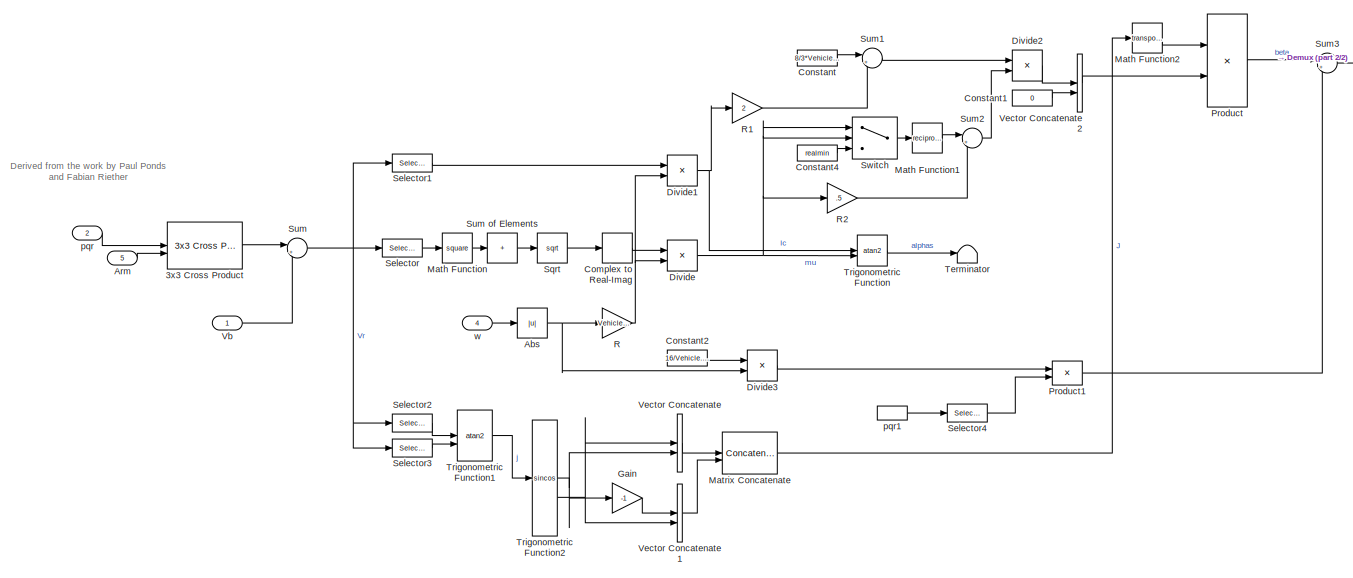
[diagram: Inner Loop and Plant Model/High-FidelityModel/Plant Model/AC model/Motor Forces and Torques/For Each Subsystem/RotorDynamics - part 1/2, left side, full height]
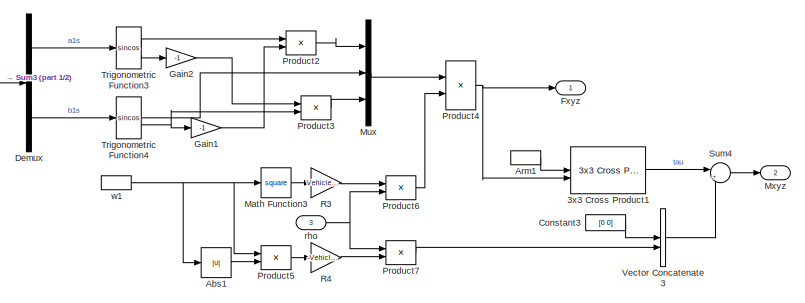
[diagram: Inner Loop and Plant Model/High-FidelityModel/Plant Model/AC model/Motor Forces and Torques/For Each Subsystem/RotorDynamics - part 2/2, middle right region]
BLOCK [SubSystem] Inner Loop and Plant Model/High-FidelityModel/Plant Model/AC model/Motor Forces and Torques/For Each Subsystem/RotorDynamics
  RTWFcnNameOpts = Use subsystem name
  RTWFileNameOpts = Use function name
  RTWSystemCode = Reusable function
  TreatAsAtomicUnit = on
BLOCK [Reference] Inner Loop and Plant Model/High-FidelityModel/Plant Model/AC model/Motor Forces and Torques/For Each Subsystem/RotorDynamics/3x3 Cross Product  REF=sharedutil/3x3 Cross Product
  SourceBlock = sharedutil/3x3 Cross Product
  SourceType = CrossProduct
BLOCK [Reference] Inner Loop and Plant Model/High-FidelityModel/Plant Model/AC model/Motor Forces and Torques/For Each Subsystem/RotorDynamics/3x3 Cross Product1  REF=sharedutil/3x3 Cross Product
  SourceBlock = sharedutil/3x3 Cross Product
  SourceType = CrossProduct
BLOCK [Abs] Inner Loop and Plant Model/High-FidelityModel/Plant Model/AC model/Motor Forces and Torques/For Each Subsystem/RotorDynamics/Abs
  SaturateOnIntegerOverflow = off
BLOCK [Abs] Inner Loop and Plant Model/High-FidelityModel/Plant Model/AC model/Motor Forces and Torques/For Each Subsystem/RotorDynamics/Abs1
  SaturateOnIntegerOverflow = off
BLOCK [Inport] Inner Loop and Plant Model/High-FidelityModel/Plant Model/AC model/Motor Forces and Torques/For Each Subsystem/RotorDynamics/Arm
  Port = 5
  PortDimensions = [3 1]
BLOCK [InportShadow] Inner Loop and Plant Model/High-FidelityModel/Plant Model/AC model/Motor Forces and Torques/For Each Subsystem/RotorDynamics/Arm1
  Port = 5
  PortDimensions = [3 1]
BLOCK [ComplexToRealImag] Inner Loop and Plant Model/High-FidelityModel/Plant Model/AC model/Motor Forces and Torques/For Each Subsystem/RotorDynamics/Complex to Real-Imag
  Output = Real
BLOCK [Constant] Inner Loop and Plant Model/High-FidelityModel/Plant Model/AC model/Motor Forces and Torques/For Each Subsystem/RotorDynamics/Constant
  Value = 8/3*Vehicle.Rotor.theta0+2*Vehicle.Rotor.theta1
BLOCK [Constant] Inner Loop and Plant Model/High-FidelityModel/Plant Model/AC model/Motor Forces and Torques/For Each Subsystem/RotorDynamics/Constant1
  Value = 0
BLOCK [Constant] Inner Loop and Plant Model/High-FidelityModel/Plant Model/AC model/Motor Forces and Torques/For Each Subsystem/RotorDynamics/Constant2
  Value = 16/Vehicle.Rotor.lock
BLOCK [Constant] Inner Loop and Plant Model/High-FidelityModel/Plant Model/AC model/Motor Forces and Torques/For Each Subsystem/RotorDynamics/Constant3
  Value = [0 0]
BLOCK [Constant] Inner Loop and Plant Model/High-FidelityModel/Plant Model/AC model/Motor Forces and Torques/For Each Subsystem/RotorDynamics/Constant4
  Value = realmin
BLOCK [Demux] Inner Loop and Plant Model/High-FidelityModel/Plant Model/AC model/Motor Forces and Torques/For Each Subsystem/RotorDynamics/Demux
  Outputs = 2
BLOCK [Product] Inner Loop and Plant Model/High-FidelityModel/Plant Model/AC model/Motor Forces and Torques/For Each Subsystem/RotorDynamics/Divide
  Inputs = */
BLOCK [Product] Inner Loop and Plant Model/High-FidelityModel/Plant Model/AC model/Motor Forces and Torques/For Each Subsystem/RotorDynamics/Divide1
  Inputs = */
BLOCK [Product] Inner Loop and Plant Model/High-FidelityModel/Plant Model/AC model/Motor Forces and Torques/For Each Subsystem/RotorDynamics/Divide2
  Inputs = */
BLOCK [Product] Inner Loop and Plant Model/High-FidelityModel/Plant Model/AC model/Motor Forces and Torques/For Each Subsystem/RotorDynamics/Divide3
  Inputs = */
BLOCK [Outport] Inner Loop and Plant Model/High-FidelityModel/Plant Model/AC model/Motor Forces and Torques/For Each Subsystem/RotorDynamics/Fxyz
  PortDimensions = [3 1]
  VectorParamsAs1DForOutWhenUnconnected = off
BLOCK [Gain] Inner Loop and Plant Model/High-FidelityModel/Plant Model/AC model/Motor Forces and Torques/For Each Subsystem/RotorDynamics/Gain
  Gain = -1
BLOCK [Gain] Inner Loop and Plant Model/High-FidelityModel/Plant Model/AC model/Motor Forces and Torques/For Each Subsystem/RotorDynamics/Gain1
  Gain = -1
BLOCK [Gain] Inner Loop and Plant Model/High-FidelityModel/Plant Model/AC model/Motor Forces and Torques/For Each Subsystem/RotorDynamics/Gain2
  Gain = -1
BLOCK [Math] Inner Loop and Plant Model/High-FidelityModel/Plant Model/AC model/Motor Forces and Torques/For Each Subsystem/RotorDynamics/Math Function
  Operator = square
  SignedPower = on
BLOCK [Math] Inner Loop and Plant Model/High-FidelityModel/Plant Model/AC model/Motor Forces and Torques/For Each Subsystem/RotorDynamics/Math Function1
  Operator = reciprocal
  SignedPower = on
BLOCK [Math] Inner Loop and Plant Model/High-FidelityModel/Plant Model/AC model/Motor Forces and Torques/For Each Subsystem/RotorDynamics/Math Function2
  Operator = transpose
  SignedPower = on
BLOCK [Math] Inner Loop and Plant Model/High-FidelityModel/Plant Model/AC model/Motor Forces and Torques/For Each Subsystem/RotorDynamics/Math Function3
  Operator = square
  SignedPower = on
BLOCK [Concatenate] Inner Loop and Plant Model/High-FidelityModel/Plant Model/AC model/Motor Forces and Torques/For Each Subsystem/RotorDynamics/Matrix Concatenate
  ConcatenateDimension = 2
  Mode = Multidimensional array
BLOCK [Mux] Inner Loop and Plant Model/High-FidelityModel/Plant Model/AC model/Motor Forces and Torques/For Each Subsystem/RotorDynamics/Mux
  DisplayOption = bar
  Inputs = 3
BLOCK [Outport] Inner Loop and Plant Model/High-FidelityModel/Plant Model/AC model/Motor Forces and Torques/For Each Subsystem/RotorDynamics/Mxyz
  Port = 2
  PortDimensions = [3 1]
  VectorParamsAs1DForOutWhenUnconnected = off
BLOCK [Product] Inner Loop and Plant Model/High-FidelityModel/Plant Model/AC model/Motor Forces and Torques/For Each Subsystem/RotorDynamics/Product
  Multiplication = Matrix(*)
BLOCK [Product] Inner Loop and Plant Model/High-FidelityModel/Plant Model/AC model/Motor Forces and Torques/For Each Subsystem/RotorDynamics/Product1
BLOCK [Product] Inner Loop and Plant Model/High-FidelityModel/Plant Model/AC model/Motor Forces and Torques/For Each Subsystem/RotorDynamics/Product2
BLOCK [Product] Inner Loop and Plant Model/High-FidelityModel/Plant Model/AC model/Motor Forces and Torques/For Each Subsystem/RotorDynamics/Product3
BLOCK [Product] Inner Loop and Plant Model/High-FidelityModel/Plant Model/AC model/Motor Forces and Torques/For Each Subsystem/RotorDynamics/Product4
BLOCK [Product] Inner Loop and Plant Model/High-FidelityModel/Plant Model/AC model/Motor Forces and Torques/For Each Subsystem/RotorDynamics/Product5
BLOCK [Product] Inner Loop and Plant Model/High-FidelityModel/Plant Model/AC model/Motor Forces and Torques/For Each Subsystem/RotorDynamics/Product6
BLOCK [Product] Inner Loop and Plant Model/High-FidelityModel/Plant Model/AC model/Motor Forces and Torques/For Each Subsystem/RotorDynamics/Product7
BLOCK [Gain] Inner Loop and Plant Model/High-FidelityModel/Plant Model/AC model/Motor Forces and Torques/For Each Subsystem/RotorDynamics/R
  Gain = Vehicle.Rotor.radius
BLOCK [Gain] Inner Loop and Plant Model/High-FidelityModel/Plant Model/AC model/Motor Forces and Torques/For Each Subsystem/RotorDynamics/R1
  Gain = 2
BLOCK [Gain] Inner Loop and Plant Model/High-FidelityModel/Plant Model/AC model/Motor Forces and Torques/For Each Subsystem/RotorDynamics/R2
  Gain = .5
BLOCK [Gain] Inner Loop and Plant Model/High-FidelityModel/Plant Model/AC model/Motor Forces and Torques/For Each Subsystem/RotorDynamics/R3
  Gain = Vehicle.Rotor.Ct*Vehicle.Rotor.radius^2*Vehicle.Rotor.area
BLOCK [Gain] Inner Loop and Plant Model/High-FidelityModel/Plant Model/AC model/Motor Forces and Torques/For Each Subsystem/RotorDynamics/R4
  Gain = -Vehicle.Rotor.Cq*Vehicle.Rotor.radius^3*Vehicle.Rotor.area
BLOCK [Selector] Inner Loop and Plant Model/High-FidelityModel/Plant Model/AC model/Motor Forces and Torques/For Each Subsystem/RotorDynamics/Selector
  IndexOptions = Index vector (dialog)
  Indices = [1 2]
  InputPortWidth = 3
  OutputSizes = 1
BLOCK [Selector] Inner Loop and Plant Model/High-FidelityModel/Plant Model/AC model/Motor Forces and Torques/For Each Subsystem/RotorDynamics/Selector1
  IndexOptions = Index vector (dialog)
  Indices = [3]
  InputPortWidth = 3
  OutputSizes = 1
BLOCK [Selector] Inner Loop and Plant Model/High-FidelityModel/Plant Model/AC model/Motor Forces and Torques/For Each Subsystem/RotorDynamics/Selector2
  IndexOptions = Index vector (dialog)
  Indices = [2]
  InputPortWidth = 3
  OutputSizes = 1
BLOCK [Selector] Inner Loop and Plant Model/High-FidelityModel/Plant Model/AC model/Motor Forces and Torques/For Each Subsystem/RotorDynamics/Selector3
  IndexOptions = Index vector (dialog)
  Indices = [1]
  InputPortWidth = 3
  OutputSizes = 1
BLOCK [Selector] Inner Loop and Plant Model/High-FidelityModel/Plant Model/AC model/Motor Forces and Torques/For Each Subsystem/RotorDynamics/Selector4
  IndexOptions = Index vector (dialog)
  Indices = [2 1]
  InputPortWidth = 3
  OutputSizes = 1
BLOCK [Sqrt] Inner Loop and Plant Model/High-FidelityModel/Plant Model/AC model/Motor Forces and Torques/For Each Subsystem/RotorDynamics/Sqrt
  OutputSignalType = complex
BLOCK [Sum] Inner Loop and Plant Model/High-FidelityModel/Plant Model/AC model/Motor Forces and Torques/For Each Subsystem/RotorDynamics/Sum
  Inputs = |++
BLOCK [Sum] Inner Loop and Plant Model/High-FidelityModel/Plant Model/AC model/Motor Forces and Torques/For Each Subsystem/RotorDynamics/Sum of Elements
  IconShape = rectangular
  Inputs = +
BLOCK [Sum] Inner Loop and Plant Model/High-FidelityModel/Plant Model/AC model/Motor Forces and Torques/For Each Subsystem/RotorDynamics/Sum1
  Inputs = |+-
BLOCK [Sum] Inner Loop and Plant Model/High-FidelityModel/Plant Model/AC model/Motor Forces and Torques/For Each Subsystem/RotorDynamics/Sum2
  Inputs = |+-
BLOCK [Sum] Inner Loop and Plant Model/High-FidelityModel/Plant Model/AC model/Motor Forces and Torques/For Each Subsystem/RotorDynamics/Sum3
  Inputs = |+-
BLOCK [Sum] Inner Loop and Plant Model/High-FidelityModel/Plant Model/AC model/Motor Forces and Torques/For Each Subsystem/RotorDynamics/Sum4
  Inputs = |++
BLOCK [Switch] Inner Loop and Plant Model/High-FidelityModel/Plant Model/AC model/Motor Forces and Torques/For Each Subsystem/RotorDynamics/Switch
  Criteria = u2 ~= 0
  InputSameDT = off
  SaturateOnIntegerOverflow = off
BLOCK [Terminator] Inner Loop and Plant Model/High-FidelityModel/Plant Model/AC model/Motor Forces and Torques/For Each Subsystem/RotorDynamics/Terminator
BLOCK [Trigonometry] Inner Loop and Plant Model/High-FidelityModel/Plant Model/AC model/Motor Forces and Torques/For Each Subsystem/RotorDynamics/Trigonometric Function
  Operator = atan2
BLOCK [Trigonometry] Inner Loop and Plant Model/High-FidelityModel/Plant Model/AC model/Motor Forces and Torques/For Each Subsystem/RotorDynamics/Trigonometric Function1
  Operator = atan2
BLOCK [Trigonometry] Inner Loop and Plant Model/High-FidelityModel/Plant Model/AC model/Motor Forces and Torques/For Each Subsystem/RotorDynamics/Trigonometric Function2
  Operator = sincos
BLOCK [Trigonometry] Inner Loop and Plant Model/High-FidelityModel/Plant Model/AC model/Motor Forces and Torques/For Each Subsystem/RotorDynamics/Trigonometric Function3
  Operator = sincos
BLOCK [Trigonometry] Inner Loop and Plant Model/High-FidelityModel/Plant Model/AC model/Motor Forces and Torques/For Each Subsystem/RotorDynamics/Trigonometric Function4
  Operator = sincos
BLOCK [Inport] Inner Loop and Plant Model/High-FidelityModel/Plant Model/AC model/Motor Forces and Torques/For Each Subsystem/RotorDynamics/Vb
  PortDimensions = 3
BLOCK [Concatenate] Inner Loop and Plant Model/High-FidelityModel/Plant Model/AC model/Motor Forces and Torques/For Each Subsystem/RotorDynamics/Vector Concatenate
BLOCK [Concatenate] Inner Loop and Plant Model/High-FidelityModel/Plant Model/AC model/Motor Forces and Torques/For Each Subsystem/RotorDynamics/Vector Concatenate1
BLOCK [Concatenate] Inner Loop and Plant Model/High-FidelityModel/Plant Model/AC model/Motor Forces and Torques/For Each Subsystem/RotorDynamics/Vector Concatenate2
BLOCK [Concatenate] Inner Loop and Plant Model/High-FidelityModel/Plant Model/AC model/Motor Forces and Torques/For Each Subsystem/RotorDynamics/Vector Concatenate3
BLOCK [Inport] Inner Loop and Plant Model/High-FidelityModel/Plant Model/AC model/Motor Forces and Torques/For Each Subsystem/RotorDynamics/pqr
  Port = 2
  PortDimensions = 3
BLOCK [InportShadow] Inner Loop and Plant Model/High-FidelityModel/Plant Model/AC model/Motor Forces and Torques/For Each Subsystem/RotorDynamics/pqr1
  Port = 2
  PortDimensions = 3
BLOCK [Inport] Inner Loop and Plant Model/High-FidelityModel/Plant Model/AC model/Motor Forces and Torques/For Each Subsystem/RotorDynamics/rho
  Port = 3
  PortDimensions = 1
BLOCK [Inport] Inner Loop and Plant Model/High-FidelityModel/Plant Model/AC model/Motor Forces and Torques/For Each Subsystem/RotorDynamics/w
  Port = 4
  PortDimensions = [1 1]
BLOCK [InportShadow] Inner Loop and Plant Model/High-FidelityModel/Plant Model/AC model/Motor Forces and Torques/For Each Subsystem/RotorDynamics/w1
  Port = 4
  PortDimensions = [1 1]
BLOCK [Inport] Inner Loop and Plant Model/High-FidelityModel/Plant Model/AC model/Motor Forces and Torques/For Each Subsystem/Vb
  PortDimensions = 3
BLOCK [Inport] Inner Loop and Plant Model/High-FidelityModel/Plant Model/AC model/Motor Forces and Torques/For Each Subsystem/rho
  Port = 2
  PortDimensions = 1
BLOCK [Inport] Inner Loop and Plant Model/High-FidelityModel/Plant Model/AC model/Motor Forces and Torques/For Each Subsystem/w
  Partition = on
  PartitionDimension = 2
  PartitionOffset = 0
  PartitionWidth = 1
  Port = 4
BLOCK [Inport] Inner Loop and Plant Model/High-FidelityModel/Plant Model/AC model/Motor Forces and Torques/Motor Commands
  Port = 4
BLOCK [Outport] Inner Loop and Plant Model/High-FidelityModel/Plant Model/AC model/Motor Forces and Torques/Motor Forces
  Unit = N
  VectorParamsAs1DForOutWhenUnconnected = off
BLOCK [Outport] Inner Loop and Plant Model/High-FidelityModel/Plant Model/AC model/Motor Forces and Torques/Motor Torques
  Port = 2
  Unit = N*m
  VectorParamsAs1DForOutWhenUnconnected = off
BLOCK [SubSystem] Inner Loop and Plant Model/High-FidelityModel/Plant Model/AC model/Motor Forces and Torques/MotorsToW
BLOCK [Gain] Inner Loop and Plant Model/High-FidelityModel/Plant Model/AC model/Motor Forces and Torques/MotorsToW/Motordirections
  Gain = [1 -1 1 -1]
  OutDataTypeStr = Inherit: Inherit via back propagation
  ParamDataTypeStr = single
  SaturateOnIntegerOverflow = on
BLOCK [Gain] Inner Loop and Plant Model/High-FidelityModel/Plant Model/AC model/Motor Forces and Torques/MotorsToW/Motordirections1
  Gain = [1 -1 1 -1]
  OutDataTypeStr = Inherit: Inherit via back propagation
  ParamDataTypeStr = single
  SaturateOnIntegerOverflow = on
BLOCK [Saturate] Inner Loop and Plant Model/High-FidelityModel/Plant Model/AC model/Motor Forces and Torques/MotorsToW/Saturation1
  LowerLimit = 1
  OutDataTypeStr = Inherit: Inherit via back propagation
  UpperLimit = 99999999999
BLOCK [Saturate] Inner Loop and Plant Model/High-FidelityModel/Plant Model/AC model/Motor Forces and Torques/MotorsToW/Saturation5
  Commented = on
  LowerLimit = Vehicle.Motor.minLimit
  OutDataTypeStr = Inherit: Inherit via back propagation
  UpperLimit = Vehicle.Motor.maxLimit
BLOCK [Sqrt] Inner Loop and Plant Model/High-FidelityModel/Plant Model/AC model/Motor Forces and Torques/MotorsToW/Signed Sqrt
  Operator = signedSqrt
  OutDataTypeStr = Inherit: Inherit via back propagation
BLOCK [Gain] Inner Loop and Plant Model/High-FidelityModel/Plant Model/AC model/Motor Forces and Torques/MotorsToW/motorsToW2_Gain
  Gain = Vehicle.Motor.commandToW2Gain
  OutDataTypeStr = Inherit: Inherit via back propagation
  ParamDataTypeStr = single
  SaturateOnIntegerOverflow = on
BLOCK [Inport] Inner Loop and Plant Model/High-FidelityModel/Plant Model/AC model/Motor Forces and Torques/MotorsToW/motors_datin
BLOCK [Outport] Inner Loop and Plant Model/High-FidelityModel/Plant Model/AC model/Motor Forces and Torques/MotorsToW/omegas_datout
  VectorParamsAs1DForOutWhenUnconnected = off
BLOCK [Sum] Inner Loop and Plant Model/High-FidelityModel/Plant Model/AC model/Motor Forces and Torques/Sum of Elements
  CollapseDim = 2
  CollapseMode = Specified dimension
  IconShape = rectangular
  Inputs = +
BLOCK [Sum] Inner Loop and Plant Model/High-FidelityModel/Plant Model/AC model/Motor Forces and Torques/Sum of Elements1
  CollapseDim = 2
  CollapseMode = Specified dimension
  IconShape = rectangular
  Inputs = +
BLOCK [Inport] Inner Loop and Plant Model/High-FidelityModel/Plant Model/AC model/Motor Forces and Torques/Vb
BLOCK [Concatenate] Inner Loop and Plant Model/High-FidelityModel/Plant Model/AC model/Motor Forces and Torques/Vector Concatenate
  ConcatenateDimension = 2
  Mode = Multidimensional array
  NumInputs = 4
BLOCK [Inport] Inner Loop and Plant Model/High-FidelityModel/Plant Model/AC model/Motor Forces and Torques/pqr
  Port = 3
BLOCK [Scope] Inner Loop and Plant Model/High-FidelityModel/Plant Model/AC model/Scope1
  Floating = off
  NumInputPorts = 1
  ScopeSpecificationString = Simulink.scopes.TimeScopeBlockCfg('CurrentConfiguration', extmgr.ConfigurationSet(extmgr.Configuration('Core','General UI',true),extmgr.Configuration('Core','Source UI',true),extmgr.Configuration('Sources','WiredSimulink',true,'DataLoggingVariableName','ScopeData4'),extmgr.Configuration('Visuals','Time Domain',true,'SerializedDisplays',{struct('MinYLimReal','32.01111','MaxYLimReal','56.47061','YLa...<+2346ch>
BLOCK [Scope] Inner Loop and Plant Model/High-FidelityModel/Plant Model/AC model/Scope2
  Floating = off
  NumInputPorts = 1
  ScopeSpecificationString = Simulink.scopes.TimeScopeBlockCfg('CurrentConfiguration', extmgr.ConfigurationSet(extmgr.Configuration('Core','General UI',true),extmgr.Configuration('Core','Source UI',true),extmgr.Configuration('Sources','WiredSimulink',true,'DataLoggingVariableName','ScopeData3'),extmgr.Configuration('Visuals','Time Domain',true,'SerializedDisplays',{struct('MinYLimReal','-8.77295','MaxYLimReal','13.16718','YLa...<+1899ch>
BLOCK [Scope] Inner Loop and Plant Model/High-FidelityModel/Plant Model/AC model/Scope3
  Floating = off
  NumInputPorts = 1
  ScopeSpecificationString = Simulink.scopes.TimeScopeBlockCfg('CurrentConfiguration', extmgr.ConfigurationSet(extmgr.Configuration('Core','General UI',true),extmgr.Configuration('Core','Source UI',true),extmgr.Configuration('Sources','WiredSimulink',true,'DataLoggingVariableName','ScopeData5'),extmgr.Configuration('Visuals','Time Domain',true,'SerializedDisplays',{struct('MinYLimReal','-1.45868','MaxYLimReal','0.15213','YLab...<+1857ch>
BLOCK [Scope] Inner Loop and Plant Model/High-FidelityModel/Plant Model/AC model/Scope4
  Floating = off
  NumInputPorts = 1
  ScopeSpecificationString = Simulink.scopes.TimeScopeBlockCfg('CurrentConfiguration', extmgr.ConfigurationSet(extmgr.Configuration('Core','General UI',true),extmgr.Configuration('Core','Source UI',true),extmgr.Configuration('Sources','WiredSimulink',true,'DataLoggingVariableName','ScopeData7'),extmgr.Configuration('Visuals','Time Domain',true,'SerializedDisplays',{struct('MinYLimReal','-21866.69336','MaxYLimReal','21795.9628...<+1893ch>
BLOCK [Scope] Inner Loop and Plant Model/High-FidelityModel/Plant Model/AC model/Scope5
  Floating = off
  NumInputPorts = 1
  ScopeSpecificationString = Simulink.scopes.TimeScopeBlockCfg('CurrentConfiguration', extmgr.ConfigurationSet(extmgr.Configuration('Core','General UI',true),extmgr.Configuration('Core','Source UI',true),extmgr.Configuration('Sources','WiredSimulink',true,'DataLoggingVariableName','ScopeData6'),extmgr.Configuration('Visuals','Time Domain',true,'SerializedDisplays',{struct('MinYLimReal','-52.80835','MaxYLimReal','5.86768','YLa...<+1884ch>
BLOCK [Scope] Inner Loop and Plant Model/High-FidelityModel/Plant Model/AC model/Scope6
  Floating = off
  NumInputPorts = 1
  ScopeSpecificationString = Simulink.scopes.TimeScopeBlockCfg('CurrentConfiguration', extmgr.ConfigurationSet(extmgr.Configuration('Core','General UI',true),extmgr.Configuration('Core','Source UI',true),extmgr.Configuration('Sources','WiredSimulink',true,'DataLoggingVariableName','ScopeData7'),extmgr.Configuration('Visuals','Time Domain',true,'SerializedDisplays',{struct('MinYLimReal','-0.01272','MaxYLimReal','0.01324','YLab...<+1905ch>
BLOCK [Sum] Inner Loop and Plant Model/High-FidelityModel/Plant Model/AC model/Sum
  Inputs = |+-
BLOCK [Gain] Inner Loop and Plant Model/High-FidelityModel/Plant Model/AC model/Thrust Perterbation
  Gain = ctrl_thrust_perturbation_param
BLOCK [Inport] Inner Loop and Plant Model/High-FidelityModel/Plant Model/AC model/V_b
  Port = 4
  Unit = m/s
BLOCK [Product] Inner Loop and Plant Model/High-FidelityModel/Plant Model/AC model/Vwind_b
  Multiplication = Matrix(*)
BLOCK [Inport] Inner Loop and Plant Model/High-FidelityModel/Plant Model/AC model/w_b
  Port = 5
  Unit = rad/s
BLOCK [FromWorkspace] Inner Loop and Plant Model/High-FidelityModel/Plant Model/AC model/wind
  SampleTime = 0.1
  VariableName = wind_param
BLOCK [Inport] Inner Loop and Plant Model/High-FidelityModel/Plant Model/Actuators
BLOCK [SubSystem] Inner Loop and Plant Model/High-FidelityModel/Plant Model/Bus setup
BLOCK [BusCreator] Inner Loop and Plant Model/High-FidelityModel/Plant Model/Bus setup/Bus Creator
  DisplayOption = bar
  InheritFromInputs = off
  Inputs = 7
  OutDataTypeStr = Bus: local_position_ned
BLOCK [BusCreator] Inner Loop and Plant Model/High-FidelityModel/Plant Model/Bus setup/Bus Creator2
  DisplayOption = bar
  InheritFromInputs = off
  Inputs = 7
  OutDataTypeStr = Bus: attitudeBus
BLOCK [BusCreator] Inner Loop and Plant Model/High-FidelityModel/Plant Model/Bus setup/Bus Creator3
  DisplayOption = bar
  InheritFromInputs = on
  Inputs = 3
  OutDataTypeStr = Bus: uavStateBus
BLOCK [Constant] Inner Loop and Plant Model/High-FidelityModel/Plant Model/Bus setup/Constant1
  OutDataTypeStr = uint32
  Value = 0
BLOCK [Constant] Inner Loop and Plant Model/High-FidelityModel/Plant Model/Bus setup/Constant2
  OutDataTypeStr = uint32
  Value = 0
BLOCK [Inport] Inner Loop and Plant Model/High-FidelityModel/Plant Model/Bus setup/DCM
  Port = 4
BLOCK [DataTypeConversion] Inner Loop and Plant Model/High-FidelityModel/Plant Model/Bus setup/Data Type Conversion
  OutDataTypeStr = single
  RndMeth = Floor
  SaturateOnIntegerOverflow = off
BLOCK [DataTypeConversion] Inner Loop and Plant Model/High-FidelityModel/Plant Model/Bus setup/Data Type Conversion1
  OutDataTypeStr = single
  RndMeth = Floor
  SaturateOnIntegerOverflow = off
BLOCK [DataTypeConversion] Inner Loop and Plant Model/High-FidelityModel/Plant Model/Bus setup/Data Type Conversion2
  OutDataTypeStr = single
  RndMeth = Floor
  SaturateOnIntegerOverflow = off
BLOCK [DataTypeConversion] Inner Loop and Plant Model/High-FidelityModel/Plant Model/Bus setup/Data Type Conversion3
  OutDataTypeStr = single
  RndMeth = Floor
  SaturateOnIntegerOverflow = off
BLOCK [DataTypeConversion] Inner Loop and Plant Model/High-FidelityModel/Plant Model/Bus setup/Data Type Conversion4
  OutDataTypeStr = single
  RndMeth = Floor
  SaturateOnIntegerOverflow = off
BLOCK [Demux] Inner Loop and Plant Model/High-FidelityModel/Plant Model/Bus setup/Demux
  Outputs = 3
BLOCK [Demux] Inner Loop and Plant Model/High-FidelityModel/Plant Model/Bus setup/Demux1
  Outputs = 3
BLOCK [Demux] Inner Loop and Plant Model/High-FidelityModel/Plant Model/Bus setup/Demux2
  Outputs = 3
BLOCK [Demux] Inner Loop and Plant Model/High-FidelityModel/Plant Model/Bus setup/Demux3
  Outputs = 3
BLOCK [Inport] Inner Loop and Plant Model/High-FidelityModel/Plant Model/Bus setup/Euler
  Port = 3
  PortDimensions = 3
  Unit = rad
BLOCK [SubSystem] Inner Loop and Plant Model/High-FidelityModel/Plant Model/Bus setup/Generate GPS Data
BLOCK [Inport] Inner Loop and Plant Model/High-FidelityModel/Plant Model/Bus setup/Generate GPS Data/DCM
  Port = 3
BLOCK [Reference] Inner Loop and Plant Model/High-FidelityModel/Plant Model/Bus setup/Generate GPS Data/GPS Model  REF=sensorinslib/INS
  SourceBlock = sensorinslib/INS
  SourceType = fusion.internal.simulink.insSensor
BLOCK [Outport] Inner Loop and Plant Model/High-FidelityModel/Plant Model/Bus setup/Generate GPS Data/GPSData
  VectorParamsAs1DForOutWhenUnconnected = off
BLOCK [Reshape] Inner Loop and Plant Model/High-FidelityModel/Plant Model/Bus setup/Generate GPS Data/Reshape
  OutputDimensionality = Customize
  OutputDimensions = [1 3]
BLOCK [Reshape] Inner Loop and Plant Model/High-FidelityModel/Plant Model/Bus setup/Generate GPS Data/Reshape1
  OutputDimensionality = Customize
  OutputDimensions = [1 3]
BLOCK [SubSystem] Inner Loop and Plant Model/High-FidelityModel/Plant Model/Bus setup/Generate GPS Data/Scale and Assemble GPS Data 
BLOCK [Reference] Inner Loop and Plant Model/High-FidelityModel/Plant Model/Bus setup/Generate GPS Data/Scale and Assemble GPS Data /Angle Conversion1  REF=aerolibconvert2/Angle Conversion
  SourceBlock = aerolibconvert2/Angle Conversion
  SourceType = Angle Conversion
BLOCK [BusCreator] Inner Loop and Plant Model/High-FidelityModel/Plant Model/Bus setup/Generate GPS Data/Scale and Assemble GPS Data /Bus Creator1
  DisplayOption = bar
  InheritFromInputs = off
  Inputs = 9
  NonVirtualBus = on
  OutDataTypeStr = Bus: gps_raw_int
BLOCK [Clock] Inner Loop and Plant Model/High-FidelityModel/Plant Model/Bus setup/Generate GPS Data/Scale and Assemble GPS Data /Clock
  AttributesFormatString = Decimation: %<Decimation>
  Decimation = 1
BLOCK [DataTypeConversion] Inner Loop and Plant Model/High-FidelityModel/Plant Model/Bus setup/Generate GPS Data/Scale and Assemble GPS Data /Data Type Conversion
  OutDataTypeStr = uint32
  RndMeth = Floor
  SaturateOnIntegerOverflow = off
BLOCK [Demux] Inner Loop and Plant Model/High-FidelityModel/Plant Model/Bus setup/Generate GPS Data/Scale and Assemble GPS Data /Demux1
  Outputs = 3
BLOCK [Demux] Inner Loop and Plant Model/High-FidelityModel/Plant Model/Bus setup/Generate GPS Data/Scale and Assemble GPS Data /Demux2
  Outputs = 2
BLOCK [SubSystem] Inner Loop and Plant Model/High-FidelityModel/Plant Model/Bus setup/Generate GPS Data/Scale and Assemble GPS Data /Embedded MATLAB Function1
  ErrorFcn = Stateflow.Translate.translate
  PermitHierarchicalResolution = ExplicitOnly
  SFBlockType = MATLAB Function
  TreatAsAtomicUnit = on
BLOCK [Demux] Inner Loop and Plant Model/High-FidelityModel/Plant Model/Bus setup/Generate GPS Data/Scale and Assemble GPS Data /Embedded MATLAB Function1/ Demux 
  Outputs = 1
BLOCK [S-Function] Inner Loop and Plant Model/High-FidelityModel/Plant Model/Bus setup/Generate GPS Data/Scale and Assemble GPS Data /Embedded MATLAB Function1/ SFunction 
  EnableBusSupport = on
  FunctionName = sf_sfun
  PortCounts = [2 2]
  SFcnIsStateOwnerBlock = off
  SFunctionDeploymentMode = off
  Tag = Stateflow S-Function 18
BLOCK [Terminator] Inner Loop and Plant Model/High-FidelityModel/Plant Model/Bus setup/Generate GPS Data/Scale and Assemble GPS Data /Embedded MATLAB Function1/ Terminator 
BLOCK [Inport] Inner Loop and Plant Model/High-FidelityModel/Plant Model/Bus setup/Generate GPS Data/Scale and Assemble GPS Data /Embedded MATLAB Function1/Ve
  Port = 2
BLOCK [Inport] Inner Loop and Plant Model/High-FidelityModel/Plant Model/Bus setup/Generate GPS Data/Scale and Assemble GPS Data /Embedded MATLAB Function1/Vn
BLOCK [Outport] Inner Loop and Plant Model/High-FidelityModel/Plant Model/Bus setup/Generate GPS Data/Scale and Assemble GPS Data /Embedded MATLAB Function1/cog
  VectorParamsAs1DForOutWhenUnconnected = off
BLOCK [Fcn] Inner Loop and Plant Model/High-FidelityModel/Plant Model/Bus setup/Generate GPS Data/Scale and Assemble GPS Data /Fcn
  Expr = sqrt(u(1)^2+u(2)^2+u(3)^2)
BLOCK [Reference] Inner Loop and Plant Model/High-FidelityModel/Plant Model/Bus setup/Generate GPS Data/Scale and Assemble GPS Data /Flat Earth to LLA  REF=aerolibtransform2/Flat Earth to LLA
  SourceBlock = aerolibtransform2/Flat Earth to LLA
  SourceType = Flat Earth to LLA
BLOCK [Gain] Inner Loop and Plant Model/High-FidelityModel/Plant Model/Bus setup/Generate GPS Data/Scale and Assemble GPS Data /Gain
  Gain = 1e7
  OutDataTypeStr = int32
BLOCK [Gain] Inner Loop and Plant Model/High-FidelityModel/Plant Model/Bus setup/Generate GPS Data/Scale and Assemble GPS Data /Gain1
  Gain = 1e7
  OutDataTypeStr = int32
BLOCK [Gain] Inner Loop and Plant Model/High-FidelityModel/Plant Model/Bus setup/Generate GPS Data/Scale and Assemble GPS Data /Gain2
  Gain = -1e3
  OutDataTypeStr = int32
BLOCK [Gain] Inner Loop and Plant Model/High-FidelityModel/Plant Model/Bus setup/Generate GPS Data/Scale and Assemble GPS Data /Gain3
  Gain = 1e2
  OutDataTypeStr = uint16
BLOCK [Gain] Inner Loop and Plant Model/High-FidelityModel/Plant Model/Bus setup/Generate GPS Data/Scale and Assemble GPS Data /Gain4
  Gain = 1e2
  OutDataTypeStr = uint16
BLOCK [Outport] Inner Loop and Plant Model/High-FidelityModel/Plant Model/Bus setup/Generate GPS Data/Scale and Assemble GPS Data /Out1
BLOCK [RateTransition] Inner Loop and Plant Model/High-FidelityModel/Plant Model/Bus setup/Generate GPS Data/Scale and Assemble GPS Data /Rate Transition1
  Commented = through
  OutPortSampleTime = 0.005
BLOCK [Terminator] Inner Loop and Plant Model/High-FidelityModel/Plant Model/Bus setup/Generate GPS Data/Scale and Assemble GPS Data /Terminator
BLOCK [Inport] Inner Loop and Plant Model/High-FidelityModel/Plant Model/Bus setup/Generate GPS Data/Scale and Assemble GPS Data /Ve
  Port = 2
BLOCK [Inport] Inner Loop and Plant Model/High-FidelityModel/Plant Model/Bus setup/Generate GPS Data/Scale and Assemble GPS Data /Xe
BLOCK [Constant] Inner Loop and Plant Model/High-FidelityModel/Plant Model/Bus setup/Generate GPS Data/Scale and Assemble GPS Data /Zero level trust
  AttributesFormatString = %<Value>
  Value = 0
BLOCK [Constant] Inner Loop and Plant Model/High-FidelityModel/Plant Model/Bus setup/Generate GPS Data/Scale and Assemble GPS Data /Zero level trust5
  AttributesFormatString = %<Value>
  OutDataTypeStr = uint8
  Value = 3
BLOCK [Constant] Inner Loop and Plant Model/High-FidelityModel/Plant Model/Bus setup/Generate GPS Data/Scale and Assemble GPS Data /Zero level trust6
  AttributesFormatString = %<Value>
  OutDataTypeStr = uint16
  Value = 80
BLOCK [Constant] Inner Loop and Plant Model/High-FidelityModel/Plant Model/Bus setup/Generate GPS Data/Scale and Assemble GPS Data /Zero level trust7
  AttributesFormatString = %<Value>
  OutDataTypeStr = uint16
  Value = 80
BLOCK [Terminator] Inner Loop and Plant Model/High-FidelityModel/Plant Model/Bus setup/Generate GPS Data/Terminator1
BLOCK [VariantSource] Inner Loop and Plant Model/High-FidelityModel/Plant Model/Bus setup/Generate GPS Data/Variant Source
  LabelModeActiveChoice = Model
  VariantControlMode = label
BLOCK [VariantSource] Inner Loop and Plant Model/High-FidelityModel/Plant Model/Bus setup/Generate GPS Data/Variant Source1
  LabelModeActiveChoice = Model
  VariantControlMode = label
BLOCK [Inport] Inner Loop and Plant Model/High-FidelityModel/Plant Model/Bus setup/Generate GPS Data/Vx, Vy, Vz
  Port = 2
BLOCK [Inport] Inner Loop and Plant Model/High-FidelityModel/Plant Model/Bus setup/Generate GPS Data/XYZ (NEU)
BLOCK [Inport] Inner Loop and Plant Model/High-FidelityModel/Plant Model/Bus setup/Omega_b
  Port = 5
  PortDimensions = 3
  Unit = rad/s
BLOCK [Outport] Inner Loop and Plant Model/High-FidelityModel/Plant Model/Bus setup/UAVState
  OutDataTypeStr = Bus: uavStateBus
BLOCK [Inport] Inner Loop and Plant Model/High-FidelityModel/Plant Model/Bus setup/V_ned
  PortDimensions = 3
  Unit = m/second
BLOCK [Inport] Inner Loop and Plant Model/High-FidelityModel/Plant Model/Bus setup/X_ned
  Port = 2
  PortDimensions = 3
  Unit = m
BLOCK [Outport] Inner Loop and Plant Model/High-FidelityModel/Plant Model/DCM_be
  Port = 2
  VectorParamsAs1DForOutWhenUnconnected = off
BLOCK [Inport] Inner Loop and Plant Model/High-FidelityModel/Plant Model/Environment
  Port = 2
BLOCK [FromWorkspace] Inner Loop and Plant Model/High-FidelityModel/Plant Model/IMU Drift
  SampleTime = 0.1
  VariableName = gyro_drift_signal
BLOCK [Scope] Inner Loop and Plant Model/High-FidelityModel/Plant Model/Scope
  Floating = off
  NumInputPorts = 1
  ScopeSpecificationString = Simulink.scopes.TimeScopeBlockCfg('CurrentConfiguration', extmgr.ConfigurationSet(extmgr.Configuration('Core','General UI',true),extmgr.Configuration('Core','Source UI',true),extmgr.Configuration('Sources','WiredSimulink',true,'DataLoggingVariableName','ScopeData2'),extmgr.Configuration('Visuals','Time Domain',true,'SerializedDisplays',{struct('MinYLimReal','-224.70447','MaxYLimReal','162.34025','...<+1847ch>
BLOCK [Scope] Inner Loop and Plant Model/High-FidelityModel/Plant Model/Scope1
  Floating = off
  NumInputPorts = 1
  ScopeSpecificationString = Simulink.scopes.TimeScopeBlockCfg('CurrentConfiguration', extmgr.ConfigurationSet(extmgr.Configuration('Core','General UI',true),extmgr.Configuration('Core','Source UI',true),extmgr.Configuration('Sources','WiredSimulink',true,'DataLoggingVariableName','ScopeData6'),extmgr.Configuration('Visuals','Time Domain',true,'SerializedDisplays',{struct('MinYLimReal','-3.66733','MaxYLimReal','5.97231','YLab...<+1898ch>
BLOCK [Scope] Inner Loop and Plant Model/High-FidelityModel/Plant Model/Scope2
  Floating = off
  NumInputPorts = 1
  ScopeSpecificationString = Simulink.scopes.TimeScopeBlockCfg('CurrentConfiguration', extmgr.ConfigurationSet(extmgr.Configuration('Core','General UI',true),extmgr.Configuration('Core','Source UI',true),extmgr.Configuration('Sources','WiredSimulink',true,'DataLoggingVariableName','ScopeData1'),extmgr.Configuration('Visuals','Time Domain',true,'SerializedDisplays',{struct('MinYLimReal','-18.49235','MaxYLimReal','2.98325','YLa...<+1889ch>
BLOCK [Scope] Inner Loop and Plant Model/High-FidelityModel/Plant Model/Scope3
  Floating = off
  NumInputPorts = 1
  ScopeSpecificationString = Simulink.scopes.TimeScopeBlockCfg('CurrentConfiguration', extmgr.ConfigurationSet(extmgr.Configuration('Core','General UI',true),extmgr.Configuration('Core','Source UI',true),extmgr.Configuration('Sources','WiredSimulink',true,'DataLoggingVariableName','ScopeData2'),extmgr.Configuration('Visuals','Time Domain',true,'SerializedDisplays',{struct('MinYLimReal','-0.00611','MaxYLimReal','0.00713','YLab...<+1888ch>
BLOCK [Sum] Inner Loop and Plant Model/High-FidelityModel/Plant Model/Sum1
  Inputs = |++
BLOCK [Terminator] Inner Loop and Plant Model/High-FidelityModel/Plant Model/Terminator1
BLOCK [Terminator] Inner Loop and Plant Model/High-FidelityModel/Plant Model/Terminator2
BLOCK [Terminator] Inner Loop and Plant Model/High-FidelityModel/Plant Model/Terminator3
BLOCK [Outport] Inner Loop and Plant Model/High-FidelityModel/Plant Model/UAVState
  VectorParamsAs1DForOutWhenUnconnected = off
BLOCK [Inport] Inner Loop and Plant Model/High-FidelityModel/PositionCmds
BLOCK [RateTransition] Inner Loop and Plant Model/High-FidelityModel/Rate Transition
BLOCK [RateTransition] Inner Loop and Plant Model/High-FidelityModel/Rate Transition1
  OutPortSampleTime = UAVSampleTime
BLOCK [RateTransition] Inner Loop and Plant Model/High-FidelityModel/Rate Transition2
  OutPortSampleTime = UAVSampleTime
BLOCK [Scope] Inner Loop and Plant Model/High-FidelityModel/Scope
  Floating = off
  NumInputPorts = 1
  ScopeSpecificationString = Simulink.scopes.TimeScopeBlockCfg('CurrentConfiguration', extmgr.ConfigurationSet(extmgr.Configuration('Core','General UI',true),extmgr.Configuration('Core','Source UI',true),extmgr.Configuration('Sources','WiredSimulink',true,'DataLoggingVariableName','ScopeData1'),extmgr.Configuration('Visuals','Time Domain',true,'SerializedDisplays',{struct('MinYLimReal','-22.82047','MaxYLimReal','7.61086','YLa...<+1955ch>
BLOCK [Step] Inner Loop and Plant Model/High-FidelityModel/Step
  SampleTime = UAVSampleTime
  Time = startFlightTime
BLOCK [Outport] Inner Loop and Plant Model/High-FidelityModel/UAVState
  OutDataTypeStr = Bus: uavStateBus
BLOCK [SubSystem] Inner Loop and Plant Model/Low-FidelityModel
  VariantControl = plantModelFi ==0
BLOCK [SubSystem] Inner Loop and Plant Model/Low-FidelityModel/Assemble UAV State Bus
BLOCK [BusCreator] Inner Loop and Plant Model/Low-FidelityModel/Assemble UAV State Bus/Bus Creator
  DisplayOption = bar
  InheritFromInputs = off
  Inputs = 7
  OutDataTypeStr = Bus: local_position_ned
BLOCK [BusCreator] Inner Loop and Plant Model/Low-FidelityModel/Assemble UAV State Bus/Bus Creator2
  DisplayOption = bar
  InheritFromInputs = off
  Inputs = 7
  OutDataTypeStr = Bus: attitudeBus
BLOCK [BusCreator] Inner Loop and Plant Model/Low-FidelityModel/Assemble UAV State Bus/Bus Creator3
  DisplayOption = bar
  InheritFromInputs = off
  Inputs = 3
  OutDataTypeStr = Bus: uavStateBus
BLOCK [BusSelector] Inner Loop and Plant Model/Low-FidelityModel/Assemble UAV State Bus/Bus Selector
  OutputSignals = WorldPosition,WorldVelocity
BLOCK [BusSelector] Inner Loop and Plant Model/Low-FidelityModel/Assemble UAV State Bus/Bus Selector1
  OutputSignals = EulerZYX,BodyAngularRateRPY
BLOCK [BusSelector] Inner Loop and Plant Model/Low-FidelityModel/Assemble UAV State Bus/Bus Selector2
  OutputSignals = WorldPosition,WorldVelocity
BLOCK [Constant] Inner Loop and Plant Model/Low-FidelityModel/Assemble UAV State Bus/Constant1
  OutDataTypeStr = uint32
  Value = 0
BLOCK [Constant] Inner Loop and Plant Model/Low-FidelityModel/Assemble UAV State Bus/Constant2
  OutDataTypeStr = uint32
  Value = 0
BLOCK [Demux] Inner Loop and Plant Model/Low-FidelityModel/Assemble UAV State Bus/Demux
  Outputs = 3
BLOCK [Demux] Inner Loop and Plant Model/Low-FidelityModel/Assemble UAV State Bus/Demux1
  Outputs = 3
BLOCK [Demux] Inner Loop and Plant Model/Low-FidelityModel/Assemble UAV State Bus/Demux2
  Outputs = 3
BLOCK [Demux] Inner Loop and Plant Model/Low-FidelityModel/Assemble UAV State Bus/Demux3
  Outputs = 3
BLOCK [From] Inner Loop and Plant Model/Low-FidelityModel/Assemble UAV State Bus/From1
  Commented = on
  GotoTag = XYZ
BLOCK [From] Inner Loop and Plant Model/Low-FidelityModel/Assemble UAV State Bus/From11
  Commented = on
  GotoTag = Euler
BLOCK [SubSystem] Inner Loop and Plant Model/Low-FidelityModel/Assemble UAV State Bus/Generate GPS Data
BLOCK [Reference] Inner Loop and Plant Model/Low-FidelityModel/Assemble UAV State Bus/Generate GPS Data/Angle Conversion1  REF=aerolibconvert2/Angle Conversion
  SourceBlock = aerolibconvert2/Angle Conversion
  SourceType = Angle Conversion
BLOCK [BusCreator] Inner Loop and Plant Model/Low-FidelityModel/Assemble UAV State Bus/Generate GPS Data/Bus Creator1
  DisplayOption = bar
  InheritFromInputs = off
  Inputs = 9
  NonVirtualBus = on
  OutDataTypeStr = Bus: gps_raw_int
BLOCK [Clock] Inner Loop and Plant Model/Low-FidelityModel/Assemble UAV State Bus/Generate GPS Data/Clock
  AttributesFormatString = Decimation: %<Decimation>
  Decimation = 1
BLOCK [DataTypeConversion] Inner Loop and Plant Model/Low-FidelityModel/Assemble UAV State Bus/Generate GPS Data/Data Type Conversion
  OutDataTypeStr = uint32
  RndMeth = Floor
  SaturateOnIntegerOverflow = off
BLOCK [Demux] Inner Loop and Plant Model/Low-FidelityModel/Assemble UAV State Bus/Generate GPS Data/Demux1
  Outputs = 3
BLOCK [Demux] Inner Loop and Plant Model/Low-FidelityModel/Assemble UAV State Bus/Generate GPS Data/Demux2
  Outputs = 2
BLOCK [SubSystem] Inner Loop and Plant Model/Low-FidelityModel/Assemble UAV State Bus/Generate GPS Data/Embedded MATLAB Function1
  ErrorFcn = Stateflow.Translate.translate
  PermitHierarchicalResolution = ExplicitOnly
  SFBlockType = MATLAB Function
  TreatAsAtomicUnit = on
BLOCK [Demux] Inner Loop and Plant Model/Low-FidelityModel/Assemble UAV State Bus/Generate GPS Data/Embedded MATLAB Function1/ Demux 
  Outputs = 1
BLOCK [S-Function] Inner Loop and Plant Model/Low-FidelityModel/Assemble UAV State Bus/Generate GPS Data/Embedded MATLAB Function1/ SFunction 
  EnableBusSupport = on
  FunctionName = sf_sfun
  PortCounts = [2 2]
  SFcnIsStateOwnerBlock = off
  SFunctionDeploymentMode = off
  Tag = Stateflow S-Function 8
BLOCK [Terminator] Inner Loop and Plant Model/Low-FidelityModel/Assemble UAV State Bus/Generate GPS Data/Embedded MATLAB Function1/ Terminator 
BLOCK [Inport] Inner Loop and Plant Model/Low-FidelityModel/Assemble UAV State Bus/Generate GPS Data/Embedded MATLAB Function1/Ve
  Port = 2
BLOCK [Inport] Inner Loop and Plant Model/Low-FidelityModel/Assemble UAV State Bus/Generate GPS Data/Embedded MATLAB Function1/Vn
BLOCK [Outport] Inner Loop and Plant Model/Low-FidelityModel/Assemble UAV State Bus/Generate GPS Data/Embedded MATLAB Function1/cog
  VectorParamsAs1DForOutWhenUnconnected = off
BLOCK [Fcn] Inner Loop and Plant Model/Low-FidelityModel/Assemble UAV State Bus/Generate GPS Data/Fcn
  Expr = sqrt(u(1)^2+u(2)^2+u(3)^2)
BLOCK [Reference] Inner Loop and Plant Model/Low-FidelityModel/Assemble UAV State Bus/Generate GPS Data/Flat Earth to LLA  REF=aerolibtransform2/Flat Earth to LLA
  SourceBlock = aerolibtransform2/Flat Earth to LLA
  SourceType = Flat Earth to LLA
BLOCK [Outport] Inner Loop and Plant Model/Low-FidelityModel/Assemble UAV State Bus/Generate GPS Data/GPSData
  VectorParamsAs1DForOutWhenUnconnected = off
BLOCK [Gain] Inner Loop and Plant Model/Low-FidelityModel/Assemble UAV State Bus/Generate GPS Data/Gain
  Gain = 1e7
  OutDataTypeStr = int32
BLOCK [Gain] Inner Loop and Plant Model/Low-FidelityModel/Assemble UAV State Bus/Generate GPS Data/Gain1
  Gain = 1e7
  OutDataTypeStr = int32
BLOCK [Gain] Inner Loop and Plant Model/Low-FidelityModel/Assemble UAV State Bus/Generate GPS Data/Gain2
  Gain = 1e3
  OutDataTypeStr = int32
BLOCK [Gain] Inner Loop and Plant Model/Low-FidelityModel/Assemble UAV State Bus/Generate GPS Data/Gain3
  Gain = 1e2
  OutDataTypeStr = uint16
BLOCK [Gain] Inner Loop and Plant Model/Low-FidelityModel/Assemble UAV State Bus/Generate GPS Data/Gain4
  Gain = 1e2
  OutDataTypeStr = uint16
BLOCK [RateTransition] Inner Loop and Plant Model/Low-FidelityModel/Assemble UAV State Bus/Generate GPS Data/Rate Transition1
  OutPortSampleTime = 0.005
BLOCK [Terminator] Inner Loop and Plant Model/Low-FidelityModel/Assemble UAV State Bus/Generate GPS Data/Terminator
BLOCK [Inport] Inner Loop and Plant Model/Low-FidelityModel/Assemble UAV State Bus/Generate GPS Data/Vx, Vy, Vz
  Port = 2
BLOCK [Inport] Inner Loop and Plant Model/Low-FidelityModel/Assemble UAV State Bus/Generate GPS Data/XYZ (NED)
BLOCK [Constant] Inner Loop and Plant Model/Low-FidelityModel/Assemble UAV State Bus/Generate GPS Data/Zero level trust
  AttributesFormatString = %<Value>
  Value = 0
BLOCK [Constant] Inner Loop and Plant Model/Low-FidelityModel/Assemble UAV State Bus/Generate GPS Data/Zero level trust5
  AttributesFormatString = %<Value>
  OutDataTypeStr = uint8
  Value = 3
BLOCK [Constant] Inner Loop and Plant Model/Low-FidelityModel/Assemble UAV State Bus/Generate GPS Data/Zero level trust6
  AttributesFormatString = %<Value>
  OutDataTypeStr = uint16
  Value = 80
BLOCK [Constant] Inner Loop and Plant Model/Low-FidelityModel/Assemble UAV State Bus/Generate GPS Data/Zero level trust7
  AttributesFormatString = %<Value>
  OutDataTypeStr = uint16
  Value = 80
BLOCK [Goto] Inner Loop and Plant Model/Low-FidelityModel/Assemble UAV State Bus/Goto
  Commented = on
  GotoTag = Euler
BLOCK [Goto] Inner Loop and Plant Model/Low-FidelityModel/Assemble UAV State Bus/Goto1
  Commented = on
  GotoTag = XYZ
BLOCK [RateTransition] Inner Loop and Plant Model/Low-FidelityModel/Assemble UAV State Bus/Rate Transition1
  Commented = on
  OutPortSampleTime = UAVSampleTime
BLOCK [RateTransition] Inner Loop and Plant Model/Low-FidelityModel/Assemble UAV State Bus/Rate Transition5
  Commented = on
  OutPortSampleTime = UAVSampleTime
BLOCK [Selector] Inner Loop and Plant Model/Low-FidelityModel/Assemble UAV State Bus/Selector
  IndexOptions = Index vector (dialog)
  Indices = [3 2 1]
  InputPortWidth = 3
  OutputSizes = 1
BLOCK [Selector] Inner Loop and Plant Model/Low-FidelityModel/Assemble UAV State Bus/Selector1
  IndexOptions = Index vector (dialog)
  Indices = [3 2 1]
  InputPortWidth = 3
  OutputSizes = 1
BLOCK [Inport] Inner Loop and Plant Model/Low-FidelityModel/Assemble UAV State Bus/State
BLOCK [ToWorkspace] Inner Loop and Plant Model/Low-FidelityModel/Assemble UAV State Bus/To Workspace1
  Commented = on
  FixptAsFi = on
  MaxDataPoints = inf
  SampleTime = -1
  SaveFormat = Timeseries
  VariableName = XYZ
BLOCK [ToWorkspace] Inner Loop and Plant Model/Low-FidelityModel/Assemble UAV State Bus/To Workspace6
  Commented = on
  FixptAsFi = on
  MaxDataPoints = inf
  SampleTime = -1
  SaveFormat = Timeseries
  VariableName = euler
BLOCK [Outport] Inner Loop and Plant Model/Low-FidelityModel/Assemble UAV State Bus/UAVState
  OutDataTypeStr = Bus: uavStateBus
BLOCK [BusCreator] Inner Loop and Plant Model/Low-FidelityModel/Bus Creator1
  DisplayOption = bar
  InheritFromInputs = on
  Inputs = 1
  NonVirtualBus = on
  OutDataTypeStr = Bus: uavGuidanceEnvironmentBus
BLOCK [Constant] Inner Loop and Plant Model/Low-FidelityModel/Constant
  AttributesFormatString = %<Value>
  OutDataTypeStr = single
  Value = Gravity
BLOCK [SubSystem] Inner Loop and Plant Model/Low-FidelityModel/Position and Acceleration Control
BLOCK [SubSystem] Inner Loop and Plant Model/Low-FidelityModel/Position and Acceleration Control/Attitude Control
BLOCK [Inport] Inner Loop and Plant Model/Low-FidelityModel/Position and Acceleration Control/Attitude Control/Accel Cmd
BLOCK [BusCreator] Inner Loop and Plant Model/Low-FidelityModel/Position and Acceleration Control/Attitude Control/Bus Creator
  DisplayOption = bar
  InheritFromInputs = off
  Inputs = 4
  NonVirtualBus = on
  OutDataTypeStr = Bus: uavGuidanceControlBus
BLOCK [BusSelector] Inner Loop and Plant Model/Low-FidelityModel/Position and Acceleration Control/Attitude Control/Bus Selector
  OutputSignals = HeadingCmd,YawCmd
BLOCK [BusSelector] Inner Loop and Plant Model/Low-FidelityModel/Position and Acceleration Control/Attitude Control/Bus Selector1
  NameLocation = top
  OutputSignals = EulerZYX
BLOCK [Outport] Inner Loop and Plant Model/Low-FidelityModel/Position and Acceleration Control/Attitude Control/Control Signal
BLOCK [SubSystem] Inner Loop and Plant Model/Low-FidelityModel/Position and Acceleration Control/Attitude Control/Multirotor Acceleration Control
  ErrorFcn = Stateflow.Translate.translate
  PermitHierarchicalResolution = ExplicitOnly
  SFBlockType = MATLAB Function
  TreatAsAtomicUnit = on
BLOCK [Demux] Inner Loop and Plant Model/Low-FidelityModel/Position and Acceleration Control/Attitude Control/Multirotor Acceleration Control/ Demux 
  Outputs = 1
BLOCK [S-Function] Inner Loop and Plant Model/Low-FidelityModel/Position and Acceleration Control/Attitude Control/Multirotor Acceleration Control/ SFunction 
  EnableBusSupport = on
  FunctionName = sf_sfun
  Parameters = Gravity
  PortCounts = [2 3]
  SFcnIsStateOwnerBlock = off
  SFunctionDeploymentMode = off
  Tag = Stateflow S-Function 11
BLOCK [Terminator] Inner Loop and Plant Model/Low-FidelityModel/Position and Acceleration Control/Attitude Control/Multirotor Acceleration Control/ Terminator 
BLOCK [Inport] Inner Loop and Plant Model/Low-FidelityModel/Position and Acceleration Control/Attitude Control/Multirotor Acceleration Control/acc
BLOCK [Outport] Inner Loop and Plant Model/Low-FidelityModel/Position and Acceleration Control/Attitude Control/Multirotor Acceleration Control/pitch
  Port = 2
  VectorParamsAs1DForOutWhenUnconnected = off
BLOCK [Outport] Inner Loop and Plant Model/Low-FidelityModel/Position and Acceleration Control/Attitude Control/Multirotor Acceleration Control/roll
  VectorParamsAs1DForOutWhenUnconnected = off
BLOCK [Inport] Inner Loop and Plant Model/Low-FidelityModel/Position and Acceleration Control/Attitude Control/Multirotor Acceleration Control/yaw
  Port = 2
BLOCK [SubSystem] Inner Loop and Plant Model/Low-FidelityModel/Position and Acceleration Control/Attitude Control/Multirotor Thrust Control
  ErrorFcn = Stateflow.Translate.translate
  PermitHierarchicalResolution = ExplicitOnly
  SFBlockType = MATLAB Function
  TreatAsAtomicUnit = on
BLOCK [Demux] Inner Loop and Plant Model/Low-FidelityModel/Position and Acceleration Control/Attitude Control/Multirotor Thrust Control/ Demux 
  Outputs = 1
BLOCK [S-Function] Inner Loop and Plant Model/Low-FidelityModel/Position and Acceleration Control/Attitude Control/Multirotor Thrust Control/ SFunction 
  EnableBusSupport = on
  FunctionName = sf_sfun
  Parameters = Gravity,mass_param
  PortCounts = [3 2]
  SFcnIsStateOwnerBlock = off
  SFunctionDeploymentMode = off
  Tag = Stateflow S-Function 12
BLOCK [Terminator] Inner Loop and Plant Model/Low-FidelityModel/Position and Acceleration Control/Attitude Control/Multirotor Thrust Control/ Terminator 
BLOCK [Inport] Inner Loop and Plant Model/Low-FidelityModel/Position and Acceleration Control/Attitude Control/Multirotor Thrust Control/acc
BLOCK [Inport] Inner Loop and Plant Model/Low-FidelityModel/Position and Acceleration Control/Attitude Control/Multirotor Thrust Control/pitch
  Port = 2
BLOCK [Inport] Inner Loop and Plant Model/Low-FidelityModel/Position and Acceleration Control/Attitude Control/Multirotor Thrust Control/roll
  Port = 3
BLOCK [Outport] Inner Loop and Plant Model/Low-FidelityModel/Position and Acceleration Control/Attitude Control/Multirotor Thrust Control/thrust
  VectorParamsAs1DForOutWhenUnconnected = off
BLOCK [Gain] Inner Loop and Plant Model/Low-FidelityModel/Position and Acceleration Control/Attitude Control/P Gain
  Gain = 1.1
BLOCK [Inport] Inner Loop and Plant Model/Low-FidelityModel/Position and Acceleration Control/Attitude Control/PositionCmd
  Port = 3
BLOCK [Inport] Inner Loop and Plant Model/Low-FidelityModel/Position and Acceleration Control/Attitude Control/QuadRotorState
  Port = 2
BLOCK [Selector] Inner Loop and Plant Model/Low-FidelityModel/Position and Acceleration Control/Attitude Control/Selector1
  IndexOptions = Index vector (dialog)
  Indices = [1]
  InputPortWidth = 3
  OutputSizes = 1
BLOCK [Sum] Inner Loop and Plant Model/Low-FidelityModel/Position and Acceleration Control/Attitude Control/Sum
  Inputs = -+|
BLOCK [VariantSource] Inner Loop and Plant Model/Low-FidelityModel/Position and Acceleration Control/Attitude Control/Variant Source
BLOCK [Saturate] Inner Loop and Plant Model/Low-FidelityModel/Position and Acceleration Control/Attitude Control/dT Limit
  AttributesFormatString = [%<UpperLimit> %<LowerLimit>]
  LowerLimit = 0
  UpperLimit = 1.2
BLOCK [Saturate] Inner Loop and Plant Model/Low-FidelityModel/Position and Acceleration Control/Attitude Control/phi Limit
  AttributesFormatString = [%<UpperLimit> %<LowerLimit>]
  LowerLimit = -25*pi/180
  UpperLimit = 25*pi/180
BLOCK [Saturate] Inner Loop and Plant Model/Low-FidelityModel/Position and Acceleration Control/Attitude Control/psi_dot Limit
  AttributesFormatString = [%<UpperLimit> %<LowerLimit>]
  LowerLimit = -30*pi/180
  UpperLimit = 30*pi/180
BLOCK [Saturate] Inner Loop and Plant Model/Low-FidelityModel/Position and Acceleration Control/Attitude Control/theta Limit
  AttributesFormatString = [%<UpperLimit> %<LowerLimit>]
  LowerLimit = -25*pi/180
  UpperLimit = 25*pi/180
BLOCK [Outport] Inner Loop and Plant Model/Low-FidelityModel/Position and Acceleration Control/Control Signal
BLOCK [SubSystem] Inner Loop and Plant Model/Low-FidelityModel/Position and Acceleration Control/Position Control
BLOCK [Sum] Inner Loop and Plant Model/Low-FidelityModel/Position and Acceleration Control/Position Control/Add
  IconShape = rectangular
  Inputs = +-
BLOCK [BusSelector] Inner Loop and Plant Model/Low-FidelityModel/Position and Acceleration Control/Position Control/Bus Selector
  OutputSignals = LAP
BLOCK [BusSelector] Inner Loop and Plant Model/Low-FidelityModel/Position and Acceleration Control/Position Control/Bus Selector1
  NameLocation = top
  OutputSignals = WorldPosition
BLOCK [Demux] Inner Loop and Plant Model/Low-FidelityModel/Position and Acceleration Control/Position Control/Demux
  Outputs = 3
BLOCK [EnablePort] Inner Loop and Plant Model/Low-FidelityModel/Position and Acceleration Control/Position Control/Enable
  StatesWhenEnabling = reset
BLOCK [Mux] Inner Loop and Plant Model/Low-FidelityModel/Position and Acceleration Control/Position Control/Mux1
  DisplayOption = bar
  Inputs = 3
BLOCK [Reference] Inner Loop and Plant Model/Low-FidelityModel/Position and Acceleration Control/Position Control/PID_X  REF=slpidlib/PID Controller
  AttributesFormatString = P: %<P>, I: %<I>, D:%<D>
  SourceBlock = slpidlib/PID Controller
  SourceType = PID 1dof
BLOCK [Reference] Inner Loop and Plant Model/Low-FidelityModel/Position and Acceleration Control/Position Control/PID_Y  REF=slpidlib/PID Controller
  AttributesFormatString = P: %<P>, I: %<I>, D:%<D>
  SourceBlock = slpidlib/PID Controller
  SourceType = PID 1dof
BLOCK [Reference] Inner Loop and Plant Model/Low-FidelityModel/Position and Acceleration Control/Position Control/PID_Z  REF=slpidlib/PID Controller
  AttributesFormatString = P: %<P>, I: %<I>, D:%<D>
  SourceBlock = slpidlib/PID Controller
  SourceType = PID 1dof
BLOCK [Inport] Inner Loop and Plant Model/Low-FidelityModel/Position and Acceleration Control/Position Control/PositionCmd
BLOCK [Inport] Inner Loop and Plant Model/Low-FidelityModel/Position and Acceleration Control/Position Control/QuadRotorState
  Port = 2
BLOCK [Outport] Inner Loop and Plant Model/Low-FidelityModel/Position and Acceleration Control/Position Control/Velocity Cmd
BLOCK [Inport] Inner Loop and Plant Model/Low-FidelityModel/Position and Acceleration Control/PositionCmd
  Port = 2
BLOCK [Inport] Inner Loop and Plant Model/Low-FidelityModel/Position and Acceleration Control/QuadRotorState
BLOCK [Step] Inner Loop and Plant Model/Low-FidelityModel/Position and Acceleration Control/Step
  SampleTime = UAVSampleTime
  Time = startFlightTime
BLOCK [SubSystem] Inner Loop and Plant Model/Low-FidelityModel/Position and Acceleration Control/Velocity Control
BLOCK [Outport] Inner Loop and Plant Model/Low-FidelityModel/Position and Acceleration Control/Velocity Control/Accel Cmd
BLOCK [Sum] Inner Loop and Plant Model/Low-FidelityModel/Position and Acceleration Control/Velocity Control/Add1
  IconShape = rectangular
  Inputs = +-
BLOCK [BusSelector] Inner Loop and Plant Model/Low-FidelityModel/Position and Acceleration Control/Velocity Control/Bus Selector1
  NameLocation = top
  OutputSignals = WorldVelocity
BLOCK [DataTypeConversion] Inner Loop and Plant Model/Low-FidelityModel/Position and Acceleration Control/Velocity Control/Data Type Conversion
  OutDataTypeStr = single
  RndMeth = Floor
  SaturateOnIntegerOverflow = off
BLOCK [DataTypeConversion] Inner Loop and Plant Model/Low-FidelityModel/Position and Acceleration Control/Velocity Control/Data Type Conversion1
  OutDataTypeStr = single
  RndMeth = Floor
  SaturateOnIntegerOverflow = off
BLOCK [DataTypeConversion] Inner Loop and Plant Model/Low-FidelityModel/Position and Acceleration Control/Velocity Control/Data Type Conversion2
  OutDataTypeStr = single
  RndMeth = Floor
  SaturateOnIntegerOverflow = off
BLOCK [DataTypeConversion] Inner Loop and Plant Model/Low-FidelityModel/Position and Acceleration Control/Velocity Control/Data Type Conversion3
  OutDataTypeStr = single
  RndMeth = Floor
  SaturateOnIntegerOverflow = off
BLOCK [DataTypeConversion] Inner Loop and Plant Model/Low-FidelityModel/Position and Acceleration Control/Velocity Control/Data Type Conversion4
  OutDataTypeStr = single
  RndMeth = Floor
  SaturateOnIntegerOverflow = off
BLOCK [DataTypeConversion] Inner Loop and Plant Model/Low-FidelityModel/Position and Acceleration Control/Velocity Control/Data Type Conversion5
  OutDataTypeStr = single
  RndMeth = Floor
  SaturateOnIntegerOverflow = off
BLOCK [Demux] Inner Loop and Plant Model/Low-FidelityModel/Position and Acceleration Control/Velocity Control/Demux1
  Outputs = 3
BLOCK [EnablePort] Inner Loop and Plant Model/Low-FidelityModel/Position and Acceleration Control/Velocity Control/Enable
  StatesWhenEnabling = reset
BLOCK [Mux] Inner Loop and Plant Model/Low-FidelityModel/Position and Acceleration Control/Velocity Control/Mux
  DisplayOption = bar
  Inputs = 3
BLOCK [Reference] Inner Loop and Plant Model/Low-FidelityModel/Position and Acceleration Control/Velocity Control/PID_Vx  REF=slpidlib/PID Controller
  AttributesFormatString = P: %<P>, I: %<I>, D:%<D>
  SourceBlock = slpidlib/PID Controller
  SourceType = PID 1dof
BLOCK [Reference] Inner Loop and Plant Model/Low-FidelityModel/Position and Acceleration Control/Velocity Control/PID_Vy  REF=slpidlib/PID Controller
  AttributesFormatString = P: %<P>, I: %<I>, D:%<D>
  SourceBlock = slpidlib/PID Controller
  SourceType = PID 1dof
BLOCK [Reference] Inner Loop and Plant Model/Low-FidelityModel/Position and Acceleration Control/Velocity Control/PID_Vz  REF=slpidlib/PID Controller
  AttributesFormatString = P: %<P>, I: %<I>, D:%<D>
  SourceBlock = slpidlib/PID Controller
  SourceType = PID 1dof
BLOCK [Inport] Inner Loop and Plant Model/Low-FidelityModel/Position and Acceleration Control/Velocity Control/QuadRotorState
  Port = 2
BLOCK [Inport] Inner Loop and Plant Model/Low-FidelityModel/Position and Acceleration Control/Velocity Control/Velocity Cmd
BLOCK [Inport] Inner Loop and Plant Model/Low-FidelityModel/PositionCmds
BLOCK [Reference] Inner Loop and Plant Model/Low-FidelityModel/Quadrotor Plant  REF=uavalgslib/Guidance Model
  SourceBlock = uavalgslib/Guidance Model
  SourceType = Guidance Model
BLOCK [RateTransition] Inner Loop and Plant Model/Low-FidelityModel/Rate Transition1
  OutPortSampleTime = UAVSampleTime
BLOCK [RateTransition] Inner Loop and Plant Model/Low-FidelityModel/Rate Transition2
  OutPortSampleTime = UAVSampleTime
BLOCK [Outport] Inner Loop and Plant Model/Low-FidelityModel/UAVState
  OutDataTypeStr = Bus: uavStateBus
BLOCK [Inport] Inner Loop and Plant Model/PositionCmds
BLOCK [Outport] Inner Loop and Plant Model/UAVState
BLOCK [Scope] Scope
  Floating = off
  IOType = viewer
  NumInputPorts = 1
  ScopeSpecificationString = Simulink.scopes.TimeScopeBlockCfg('CurrentConfiguration', extmgr.ConfigurationSet(extmgr.Configuration('Core','General UI',true),extmgr.Configuration('Core','Source UI',true),extmgr.Configuration('Sources','WiredSimulink',true,'DataLoggingVariableName','ScopeData5'),extmgr.Configuration('Visuals','Time Domain',true,'SerializedDisplays',{struct('MinYLimReal','-12.22085','MaxYLimReal','53.50742','YL...<+1827ch>
BLOCK [Scope] Scope1
  Floating = off
  IOType = viewer
  NumInputPorts = 1
  ScopeSpecificationString = Simulink.scopes.TimeScopeBlockCfg('CurrentConfiguration', extmgr.ConfigurationSet(extmgr.Configuration('Core','General UI',true),extmgr.Configuration('Core','Source UI',true),extmgr.Configuration('Sources','WiredSimulink',true,'DataLoggingVariableName','ScopeData4'),extmgr.Configuration('Visuals','Time Domain',true,'SerializedDisplays',{struct('MinYLimReal','-129.58339','MaxYLimReal','-29.42877','...<+1791ch>
BLOCK [Scope] Scope3
  Floating = off
  IOType = viewer
  NumInputPorts = 1
  ScopeSpecificationString = Simulink.scopes.TimeScopeBlockCfg('CurrentConfiguration', extmgr.ConfigurationSet(extmgr.Configuration('Core','General UI',true),extmgr.Configuration('Core','Source UI',true),extmgr.Configuration('Sources','WiredSimulink',true,'DataLoggingVariableName','ScopeData2'),extmgr.Configuration('Visuals','Time Domain',true,'SerializedDisplays',{struct('MinYLimReal','-2.33578','MaxYLimReal','2.4577','YLabe...<+1827ch>
BLOCK [Terminator] Terminator
BLOCK [Constant] Waypoints
  OutDataTypeStr = Bus: uavPathManagerBus
  SampleTime = -1
  Value = baseMission
ANNOTATION Guidance Logic/Full Guidance Logic/Guidance Stateflow: Can be replaced with a signal from the GCS to "Start Mission"
ANNOTATION Inner Loop and Plant Model/High-FidelityModel: To be replaced with a signal from the GCS to "Start Mission"
ANNOTATION Inner Loop and Plant Model/High-FidelityModel/Control System/Controller: Use Heading Command to have the copter turn into its heading. Use Yaw Command to have the copter turn towards the yaw given by the Waypoint Mission
ANNOTATION Inner Loop and Plant Model/High-FidelityModel/Control System/Controller/Attitude Controller: ATTITUDE CONTROL
ANNOTATION Inner Loop and Plant Model/High-FidelityModel/Control System/Controller/Attitude Controller: Inner loop PID controls angular velocity
ANNOTATION Inner Loop and Plant Model/High-FidelityModel/Control System/Controller/Attitude Controller: Outer Proportional loop controls the pitch and roll angle
ANNOTATION Inner Loop and Plant Model/High-FidelityModel/Control System/Controller/Position Controller: Inner loop controls linear velocity error
ANNOTATION Inner Loop and Plant Model/High-FidelityModel/Control System/Controller/Position Controller: Outer loop controls the position error
ANNOTATION Inner Loop and Plant Model/High-FidelityModel/Control System/Controller/Position Controller: Position controller requires good estimate of Yaw orientation to work properly. Incase position control is not needed, the outer loop can be removed and velocity setpoint can be given directly
ANNOTATION Inner Loop and Plant Model/High-FidelityModel/Control System/Controller/Yaw Controller: Derived from the work by Sertac Karaman and Fabian Riether
ANNOTATION Inner Loop and Plant Model/High-FidelityModel/Control System/Controller/gravity feedforward//equilibrium thrust: ALTITUDE
ANNOTATION Inner Loop and Plant Model/High-FidelityModel/Control System/Controller/gravity feedforward//equilibrium thrust: Derived from the work by Sertac Karaman and Fabian Riether
ANNOTATION Inner Loop and Plant Model/High-FidelityModel/Plant Model/AC model/Motor Forces and Torques/For Each Subsystem/RotorDynamics: Derived from the work by Paul Ponds and Fabian Riether
ANNOTATION Inner Loop and Plant Model/Low-FidelityModel/Position and Acceleration Control: To be replaced with a signal from the GCS to "Start Mission"
ANNOTATION Inner Loop and Plant Model/Low-FidelityModel/Position and Acceleration Control/Attitude Control: Use Heading Command to have the copter turn into its heading. Use Yaw Command to have the copter turn towards the yaw given by the Waypoint Mission
LINE Animation/Bird Motion/BirdMotion:1 -> Animation/Bird Motion/Demux:1
LINE Animation/Bird Motion/Constant1:1 -> Animation/Bird Motion/BirdMotion:2
LINE Animation/Bird Motion/Constant2:1 -> Animation/Bird Motion/BirdMotion:3
LINE Animation/Bird Motion/Constant3:1 -> Animation/Bird Motion/BirdMotion:4
LINE Animation/Bird Motion/Constant:1 -> Animation/Bird Motion/Sum:1
LINE Animation/Bird Motion/Demux:1 -> Animation/Bird Motion/Mux:1
LINE Animation/Bird Motion/Demux:2 -> Animation/Bird Motion/Mux:2
LINE Animation/Bird Motion/Demux:3 -> Animation/Bird Motion/Mux:3
LINE Animation/Bird Motion/Demux:4 -> Animation/Bird Motion/Mux1:1
LINE Animation/Bird Motion/Demux:5 -> Animation/Bird Motion/Mux1:2
LINE Animation/Bird Motion/Demux:6 -> Animation/Bird Motion/Mux1:3
LINE Animation/Bird Motion/Mux1:1 -> Animation/Bird Motion/vel:1
LINE Animation/Bird Motion/Mux:1 -> Animation/Bird Motion/Reshape:1
LINE Animation/Bird Motion/Reshape:1 -> Animation/Bird Motion/pos:1
LINE Animation/Bird Motion/Sum:1 -> Animation/Bird Motion/Unit Delay:1
NET Animation/Bird Motion/Unit Delay:1 -> Animation/Bird Motion/BirdMotion:1, Animation/Bird Motion/Sum:2
LINE Animation/Bird Motion:1 -> Animation/Data Type Conversion2:1
LINE Animation/Bird Motion:2 -> Animation/Terminator:1
LINE Animation/Bus Selector:1 -> Animation/Mux:1
LINE Animation/Bus Selector:2 -> Animation/Mux:2
LINE Animation/Bus Selector:3 -> Animation/Mux:3
LINE Animation/Bus Selector:4 -> Animation/Mux1:1
LINE Animation/Bus Selector:5 -> Animation/Mux1:2
LINE Animation/Bus Selector:6 -> Animation/Mux1:3
LINE Animation/Coordinate Transformation Conversion:1 -> Animation/Data Type Conversion1:1
LINE Animation/Data Type Conversion1:1 -> Animation/Reshape2:1
LINE Animation/Data Type Conversion2:1 -> Animation/Matrix Concatenate:1
LINE Animation/Data Type Conversion3:1 -> Animation/Reshape3:1
LINE Animation/Data Type Conversion:1 -> Animation/Reshape1:1
LINE Animation/Matrix Concatenate1:1 -> Animation/UAV Animation:2
LINE Animation/Matrix Concatenate:1 -> Animation/UAV Animation:1
LINE Animation/Mux1:1 -> Animation/Coordinate Transformation Conversion:1
LINE Animation/Mux:1 -> Animation/Data Type Conversion:1
LINE Animation/Rate Transition:1 -> Animation/Bus Selector:1
LINE Animation/Reshape1:1 -> Animation/Matrix Concatenate:2
LINE Animation/Reshape2:1 -> Animation/Matrix Concatenate1:1
LINE Animation/Reshape3:1 -> Animation/Matrix Concatenate1:2
LINE Animation/UAVState:1 -> Animation/Rate Transition:1
LINE Animation/bird rot:1 -> Animation/Data Type Conversion3:1
LINE Ground:1 -> Guidance Logic:2
LINE Guidance Logic/Full Guidance Logic/Atan2:1 -> Guidance Logic/Full Guidance Logic/Mux:4
LINE Guidance Logic/Full Guidance Logic/Bus Selector1:1 -> Guidance Logic/Full Guidance Logic/Mux:1
LINE Guidance Logic/Full Guidance Logic/Bus Selector1:2 -> Guidance Logic/Full Guidance Logic/Mux:2
LINE Guidance Logic/Full Guidance Logic/Bus Selector1:3 -> Guidance Logic/Full Guidance Logic/Mux:3
NET Guidance Logic/Full Guidance Logic/Bus Selector1:4 -> Guidance Logic/Full Guidance Logic/Atan2:1, Guidance Logic/Full Guidance Logic/DroneVel:2
NET Guidance Logic/Full Guidance Logic/Bus Selector1:5 -> Guidance Logic/Full Guidance Logic/Atan2:2, Guidance Logic/Full Guidance Logic/DroneVel:1
LINE Guidance Logic/Full Guidance Logic/DroneVel:1 -> Guidance Logic/Full Guidance Logic/Guidance Stateflow:3
LINE Guidance Logic/Full Guidance Logic/GCSCommands:1 -> Guidance Logic/Full Guidance Logic/Guidance Stateflow:2
LINE Guidance Logic/Full Guidance Logic/Guidance Stateflow/Bird Motion/BirdMotion:1 -> Guidance Logic/Full Guidance Logic/Guidance Stateflow/Bird Motion/Demux:1
LINE Guidance Logic/Full Guidance Logic/Guidance Stateflow/Bird Motion/Constant1:1 -> Guidance Logic/Full Guidance Logic/Guidance Stateflow/Bird Motion/BirdMotion:2
LINE Guidance Logic/Full Guidance Logic/Guidance Stateflow/Bird Motion/Constant2:1 -> Guidance Logic/Full Guidance Logic/Guidance Stateflow/Bird Motion/BirdMotion:3
LINE Guidance Logic/Full Guidance Logic/Guidance Stateflow/Bird Motion/Constant3:1 -> Guidance Logic/Full Guidance Logic/Guidance Stateflow/Bird Motion/BirdMotion:4
LINE Guidance Logic/Full Guidance Logic/Guidance Stateflow/Bird Motion/Constant:1 -> Guidance Logic/Full Guidance Logic/Guidance Stateflow/Bird Motion/Sum:1
LINE Guidance Logic/Full Guidance Logic/Guidance Stateflow/Bird Motion/Demux:1 -> Guidance Logic/Full Guidance Logic/Guidance Stateflow/Bird Motion/Mux:1
LINE Guidance Logic/Full Guidance Logic/Guidance Stateflow/Bird Motion/Demux:2 -> Guidance Logic/Full Guidance Logic/Guidance Stateflow/Bird Motion/Mux:2
LINE Guidance Logic/Full Guidance Logic/Guidance Stateflow/Bird Motion/Demux:3 -> Guidance Logic/Full Guidance Logic/Guidance Stateflow/Bird Motion/Mux:3
LINE Guidance Logic/Full Guidance Logic/Guidance Stateflow/Bird Motion/Demux:4 -> Guidance Logic/Full Guidance Logic/Guidance Stateflow/Bird Motion/Mux1:1
LINE Guidance Logic/Full Guidance Logic/Guidance Stateflow/Bird Motion/Demux:5 -> Guidance Logic/Full Guidance Logic/Guidance Stateflow/Bird Motion/Mux1:2
LINE Guidance Logic/Full Guidance Logic/Guidance Stateflow/Bird Motion/Demux:6 -> Guidance Logic/Full Guidance Logic/Guidance Stateflow/Bird Motion/Mux1:3
LINE Guidance Logic/Full Guidance Logic/Guidance Stateflow/Bird Motion/Mux1:1 -> Guidance Logic/Full Guidance Logic/Guidance Stateflow/Bird Motion/vel:1
LINE Guidance Logic/Full Guidance Logic/Guidance Stateflow/Bird Motion/Mux:1 -> Guidance Logic/Full Guidance Logic/Guidance Stateflow/Bird Motion/Reshape:1
LINE Guidance Logic/Full Guidance Logic/Guidance Stateflow/Bird Motion/Reshape:1 -> Guidance Logic/Full Guidance Logic/Guidance Stateflow/Bird Motion/pos:1
LINE Guidance Logic/Full Guidance Logic/Guidance Stateflow/Bird Motion/Sum:1 -> Guidance Logic/Full Guidance Logic/Guidance Stateflow/Bird Motion/Unit Delay:1
NET Guidance Logic/Full Guidance Logic/Guidance Stateflow/Bird Motion/Unit Delay:1 -> Guidance Logic/Full Guidance Logic/Guidance Stateflow/Bird Motion/BirdMotion:1, Guidance Logic/Full Guidance Logic/Guidance Stateflow/Bird Motion/Sum:2
LINE Guidance Logic/Full Guidance Logic/Guidance Stateflow/Bird Motion:1 -> Guidance Logic/Full Guidance Logic/Guidance Stateflow/Guidance Mode Selector:6
LINE Guidance Logic/Full Guidance Logic/Guidance Stateflow/Bird Motion:2 -> Guidance Logic/Full Guidance Logic/Guidance Stateflow/Guidance Mode Selector:8
LINE Guidance Logic/Full Guidance Logic/Guidance Stateflow/Bus Selector:1 -> Guidance Logic/Full Guidance Logic/Guidance Stateflow/Takeoff IC:1
LINE Guidance Logic/Full Guidance Logic/Guidance Stateflow/Compare To Constant:1 -> Guidance Logic/Full Guidance Logic/Guidance Stateflow/UAV Path Manager:3
LINE Guidance Logic/Full Guidance Logic/Guidance Stateflow/Delay:1 -> Guidance Logic/Full Guidance Logic/Guidance Stateflow/Compare To Constant:1
LINE Guidance Logic/Full Guidance Logic/Guidance Stateflow/DroneVel:1 -> Guidance Logic/Full Guidance Logic/Guidance Stateflow/Guidance Mode Selector:7
LINE Guidance Logic/Full Guidance Logic/Guidance Stateflow/From:1 -> Guidance Logic/Full Guidance Logic/Guidance Stateflow/Guidance Mode Selector:4
LINE Guidance Logic/Full Guidance Logic/Guidance Stateflow/GCSCommands:1 -> Guidance Logic/Full Guidance Logic/Guidance Stateflow/UAV Path Manager:2
LINE Guidance Logic/Full Guidance Logic/Guidance Stateflow/Guidance Mode Selector:1 -> Guidance Logic/Full Guidance Logic/Guidance Stateflow/InnerLoopCommands:1
NET Guidance Logic/Full Guidance Logic/Guidance Stateflow/Guidance Mode Selector:2 -> Guidance Logic/Full Guidance Logic/Guidance Stateflow/Delay:1, Guidance Logic/Full Guidance Logic/Guidance Stateflow/Landed?:1
LINE Guidance Logic/Full Guidance Logic/Guidance Stateflow/Guidance Mode Selector:3 -> Guidance Logic/Full Guidance Logic/Guidance Stateflow/Terminator:1
LINE Guidance Logic/Full Guidance Logic/Guidance Stateflow/Home:1 -> Guidance Logic/Full Guidance Logic/Guidance Stateflow/UAV Path Manager:5
LINE Guidance Logic/Full Guidance Logic/Guidance Stateflow/Landed?:1 -> Guidance Logic/Full Guidance Logic/Guidance Stateflow/Stop Simulation:1
LINE Guidance Logic/Full Guidance Logic/Guidance Stateflow/MissionAction:1 -> Guidance Logic/Full Guidance Logic/Guidance Stateflow/UAV Path Manager:4
NET Guidance Logic/Full Guidance Logic/Guidance Stateflow/Pose:1 -> Guidance Logic/Full Guidance Logic/Guidance Stateflow/Goto5:1, Guidance Logic/Full Guidance Logic/Guidance Stateflow/UAV Path Manager:1
NET Guidance Logic/Full Guidance Logic/Guidance Stateflow/Select "From" Waypoint:1 -> Guidance Logic/Full Guidance Logic/Guidance Stateflow/Guidance Mode Selector:3, Guidance Logic/Full Guidance Logic/Guidance Stateflow/Scope1:1
NET Guidance Logic/Full Guidance Logic/Guidance Stateflow/Select "To" Waypoint:1 -> Guidance Logic/Full Guidance Logic/Guidance Stateflow/Bus Selector:1, Guidance Logic/Full Guidance Logic/Guidance Stateflow/Guidance Mode Selector:2, Guidance Logic/Full Guidance Logic/Guidance Stateflow/Scope:1
LINE Guidance Logic/Full Guidance Logic/Guidance Stateflow/Step:1 -> Guidance Logic/Full Guidance Logic/Guidance Stateflow/Guidance Mode Selector:5
LINE Guidance Logic/Full Guidance Logic/Guidance Stateflow/Takeoff IC:1 -> Guidance Logic/Full Guidance Logic/Guidance Stateflow/Guidance Mode Selector:1
NET Guidance Logic/Full Guidance Logic/Guidance Stateflow/UAV Path Manager:1 -> Guidance Logic/Full Guidance Logic/Guidance Stateflow/Select "From" Waypoint:1, Guidance Logic/Full Guidance Logic/Guidance Stateflow/Select "To" Waypoint:1
LINE Guidance Logic/Full Guidance Logic/Guidance Stateflow:1 -> Guidance Logic/Full Guidance Logic/InnerLoopCommands:1
LINE Guidance Logic/Full Guidance Logic/Mux:1 -> Guidance Logic/Full Guidance Logic/Guidance Stateflow:1
LINE Guidance Logic/Full Guidance Logic/UAVState:1 -> Guidance Logic/Full Guidance Logic/Bus Selector1:1
LINE Guidance Logic/Obstacle Avoidance/Bus Selector:1 -> Guidance Logic/Obstacle Avoidance/MATLAB Function:3
LINE Guidance Logic/Obstacle Avoidance/Compute InnerLoop Cmds/Atan2:1 -> Guidance Logic/Obstacle Avoidance/Compute InnerLoop Cmds/Mux:4
LINE Guidance Logic/Obstacle Avoidance/Compute InnerLoop Cmds/Bus Creator:1 -> Guidance Logic/Obstacle Avoidance/Compute InnerLoop Cmds/InnerLoopCmds:1
LINE Guidance Logic/Obstacle Avoidance/Compute InnerLoop Cmds/Bus Selector1:1 -> Guidance Logic/Obstacle Avoidance/Compute InnerLoop Cmds/Mux:1
LINE Guidance Logic/Obstacle Avoidance/Compute InnerLoop Cmds/Bus Selector1:2 -> Guidance Logic/Obstacle Avoidance/Compute InnerLoop Cmds/Mux:2
LINE Guidance Logic/Obstacle Avoidance/Compute InnerLoop Cmds/Bus Selector1:3 -> Guidance Logic/Obstacle Avoidance/Compute InnerLoop Cmds/Mux:3
LINE Guidance Logic/Obstacle Avoidance/Compute InnerLoop Cmds/Bus Selector1:4 -> Guidance Logic/Obstacle Avoidance/Compute InnerLoop Cmds/Atan2:1
LINE Guidance Logic/Obstacle Avoidance/Compute InnerLoop Cmds/Bus Selector1:5 -> Guidance Logic/Obstacle Avoidance/Compute InnerLoop Cmds/Atan2:2
LINE Guidance Logic/Obstacle Avoidance/Compute InnerLoop Cmds/GCSCmds:1 -> Guidance Logic/Obstacle Avoidance/Compute InnerLoop Cmds/Waypoint Follower:2
LINE Guidance Logic/Obstacle Avoidance/Compute InnerLoop Cmds/Lookahead Distance:1 -> Guidance Logic/Obstacle Avoidance/Compute InnerLoop Cmds/Waypoint Follower:3
LINE Guidance Logic/Obstacle Avoidance/Compute InnerLoop Cmds/Mux:1 -> Guidance Logic/Obstacle Avoidance/Compute InnerLoop Cmds/Waypoint Follower:1
LINE Guidance Logic/Obstacle Avoidance/Compute InnerLoop Cmds/UAVState:1 -> Guidance Logic/Obstacle Avoidance/Compute InnerLoop Cmds/Bus Selector1:1
LINE Guidance Logic/Obstacle Avoidance/Compute InnerLoop Cmds/Waypoint Follower:1 -> Guidance Logic/Obstacle Avoidance/Compute InnerLoop Cmds/Bus Creator:1
LINE Guidance Logic/Obstacle Avoidance/Compute InnerLoop Cmds/Waypoint Follower:2 -> Guidance Logic/Obstacle Avoidance/Compute InnerLoop Cmds/Bus Creator:2
LINE Guidance Logic/Obstacle Avoidance/Compute InnerLoop Cmds/Waypoint Follower:3 -> Guidance Logic/Obstacle Avoidance/Compute InnerLoop Cmds/Bus Creator:3
LINE Guidance Logic/Obstacle Avoidance/Compute InnerLoop Cmds/Waypoint Follower:4 -> Guidance Logic/Obstacle Avoidance/Compute InnerLoop Cmds/Terminator:1
LINE Guidance Logic/Obstacle Avoidance/Compute InnerLoop Cmds/Waypoint Follower:5 -> Guidance Logic/Obstacle Avoidance/Compute InnerLoop Cmds/Scope:1
LINE Guidance Logic/Obstacle Avoidance/Compute InnerLoop Cmds/Waypoint Follower:6 -> Guidance Logic/Obstacle Avoidance/Compute InnerLoop Cmds/Scope1:1
LINE Guidance Logic/Obstacle Avoidance/Compute InnerLoop Cmds:1 -> Guidance Logic/Obstacle Avoidance/InnerLoopCommands:1
LINE Guidance Logic/Obstacle Avoidance/GCSCommands:1 -> Guidance Logic/Obstacle Avoidance/Selector:1
LINE Guidance Logic/Obstacle Avoidance/MATLAB Function:1 -> Guidance Logic/Obstacle Avoidance/Compute InnerLoop Cmds:1
LINE Guidance Logic/Obstacle Avoidance/OBCMsgs:1 -> Guidance Logic/Obstacle Avoidance/Unit Delay1:1
NET Guidance Logic/Obstacle Avoidance/Selector:1 -> Guidance Logic/Obstacle Avoidance/MATLAB Function:1, Guidance Logic/Obstacle Avoidance/OBCCommands:1
NET Guidance Logic/Obstacle Avoidance/UAVState:1 -> Guidance Logic/Obstacle Avoidance/Bus Selector:1, Guidance Logic/Obstacle Avoidance/Compute InnerLoop Cmds:2
LINE Guidance Logic/Obstacle Avoidance/Unit Delay1:1 -> Guidance Logic/Obstacle Avoidance/MATLAB Function:2
LINE Guidance Logic/Obstacle Avoidance3D/Bus Selector:1 -> Guidance Logic/Obstacle Avoidance3D/MATLAB Function:3
LINE Guidance Logic/Obstacle Avoidance3D/Compute InnerLoop Cmds/DTD:1 -> Guidance Logic/Obstacle Avoidance3D/Compute InnerLoop Cmds/Switch1:2
LINE Guidance Logic/Obstacle Avoidance3D/Compute InnerLoop Cmds/FollowWaypoints/Atan2:1 -> Guidance Logic/Obstacle Avoidance3D/Compute InnerLoop Cmds/FollowWaypoints/Mux:4
LINE Guidance Logic/Obstacle Avoidance3D/Compute InnerLoop Cmds/FollowWaypoints/Bus Creator:1 -> Guidance Logic/Obstacle Avoidance3D/Compute InnerLoop Cmds/FollowWaypoints/InnerLoopCmds:1
LINE Guidance Logic/Obstacle Avoidance3D/Compute InnerLoop Cmds/FollowWaypoints/Bus Selector1:1 -> Guidance Logic/Obstacle Avoidance3D/Compute InnerLoop Cmds/FollowWaypoints/Mux:1
LINE Guidance Logic/Obstacle Avoidance3D/Compute InnerLoop Cmds/FollowWaypoints/Bus Selector1:2 -> Guidance Logic/Obstacle Avoidance3D/Compute InnerLoop Cmds/FollowWaypoints/Mux:2
LINE Guidance Logic/Obstacle Avoidance3D/Compute InnerLoop Cmds/FollowWaypoints/Bus Selector1:3 -> Guidance Logic/Obstacle Avoidance3D/Compute InnerLoop Cmds/FollowWaypoints/Mux:3
LINE Guidance Logic/Obstacle Avoidance3D/Compute InnerLoop Cmds/FollowWaypoints/Bus Selector1:4 -> Guidance Logic/Obstacle Avoidance3D/Compute InnerLoop Cmds/FollowWaypoints/Atan2:1
LINE Guidance Logic/Obstacle Avoidance3D/Compute InnerLoop Cmds/FollowWaypoints/Bus Selector1:5 -> Guidance Logic/Obstacle Avoidance3D/Compute InnerLoop Cmds/FollowWaypoints/Atan2:2
LINE Guidance Logic/Obstacle Avoidance3D/Compute InnerLoop Cmds/FollowWaypoints/GCSCmds:1 -> Guidance Logic/Obstacle Avoidance3D/Compute InnerLoop Cmds/FollowWaypoints/Waypoint Follower:2
LINE Guidance Logic/Obstacle Avoidance3D/Compute InnerLoop Cmds/FollowWaypoints/Lookahead Distance:1 -> Guidance Logic/Obstacle Avoidance3D/Compute InnerLoop Cmds/FollowWaypoints/Waypoint Follower:3
LINE Guidance Logic/Obstacle Avoidance3D/Compute InnerLoop Cmds/FollowWaypoints/Mux:1 -> Guidance Logic/Obstacle Avoidance3D/Compute InnerLoop Cmds/FollowWaypoints/Waypoint Follower:1
LINE Guidance Logic/Obstacle Avoidance3D/Compute InnerLoop Cmds/FollowWaypoints/UAVState:1 -> Guidance Logic/Obstacle Avoidance3D/Compute InnerLoop Cmds/FollowWaypoints/Bus Selector1:1
LINE Guidance Logic/Obstacle Avoidance3D/Compute InnerLoop Cmds/FollowWaypoints/Waypoint Follower:1 -> Guidance Logic/Obstacle Avoidance3D/Compute InnerLoop Cmds/FollowWaypoints/Bus Creator:1
LINE Guidance Logic/Obstacle Avoidance3D/Compute InnerLoop Cmds/FollowWaypoints/Waypoint Follower:2 -> Guidance Logic/Obstacle Avoidance3D/Compute InnerLoop Cmds/FollowWaypoints/Bus Creator:2
LINE Guidance Logic/Obstacle Avoidance3D/Compute InnerLoop Cmds/FollowWaypoints/Waypoint Follower:3 -> Guidance Logic/Obstacle Avoidance3D/Compute InnerLoop Cmds/FollowWaypoints/Bus Creator:3
LINE Guidance Logic/Obstacle Avoidance3D/Compute InnerLoop Cmds/FollowWaypoints/Waypoint Follower:4 -> Guidance Logic/Obstacle Avoidance3D/Compute InnerLoop Cmds/FollowWaypoints/Terminator:1
LINE Guidance Logic/Obstacle Avoidance3D/Compute InnerLoop Cmds/FollowWaypoints/Waypoint Follower:5 -> Guidance Logic/Obstacle Avoidance3D/Compute InnerLoop Cmds/FollowWaypoints/Scope:1
LINE Guidance Logic/Obstacle Avoidance3D/Compute InnerLoop Cmds/FollowWaypoints/Waypoint Follower:6 -> Guidance Logic/Obstacle Avoidance3D/Compute InnerLoop Cmds/FollowWaypoints/Scope1:1
LINE Guidance Logic/Obstacle Avoidance3D/Compute InnerLoop Cmds/FollowWaypoints:1 -> Guidance Logic/Obstacle Avoidance3D/Compute InnerLoop Cmds/Switch1:1
LINE Guidance Logic/Obstacle Avoidance3D/Compute InnerLoop Cmds/GCSCmds1:1 -> Guidance Logic/Obstacle Avoidance3D/Compute InnerLoop Cmds/Landing:1
LINE Guidance Logic/Obstacle Avoidance3D/Compute InnerLoop Cmds/GCSCmds2:1 -> Guidance Logic/Obstacle Avoidance3D/Compute InnerLoop Cmds/Hover:1
LINE Guidance Logic/Obstacle Avoidance3D/Compute InnerLoop Cmds/GCSCmds:1 -> Guidance Logic/Obstacle Avoidance3D/Compute InnerLoop Cmds/FollowWaypoints:2
LINE Guidance Logic/Obstacle Avoidance3D/Compute InnerLoop Cmds/Hover/Bus Creator1:1 -> Guidance Logic/Obstacle Avoidance3D/Compute InnerLoop Cmds/Hover/Out1:1
LINE Guidance Logic/Obstacle Avoidance3D/Compute InnerLoop Cmds/Hover/In1:1 -> Guidance Logic/Obstacle Avoidance3D/Compute InnerLoop Cmds/Hover/Selector:1
LINE Guidance Logic/Obstacle Avoidance3D/Compute InnerLoop Cmds/Hover/In2:1 -> Guidance Logic/Obstacle Avoidance3D/Compute InnerLoop Cmds/Hover/Selector1:1
LINE Guidance Logic/Obstacle Avoidance3D/Compute InnerLoop Cmds/Hover/In3:1 -> Guidance Logic/Obstacle Avoidance3D/Compute InnerLoop Cmds/Hover/Selector2:1
LINE Guidance Logic/Obstacle Avoidance3D/Compute InnerLoop Cmds/Hover/Selector1:1 -> Guidance Logic/Obstacle Avoidance3D/Compute InnerLoop Cmds/Hover/Bus Creator1:2
LINE Guidance Logic/Obstacle Avoidance3D/Compute InnerLoop Cmds/Hover/Selector2:1 -> Guidance Logic/Obstacle Avoidance3D/Compute InnerLoop Cmds/Hover/Bus Creator1:3
LINE Guidance Logic/Obstacle Avoidance3D/Compute InnerLoop Cmds/Hover/Selector:1 -> Guidance Logic/Obstacle Avoidance3D/Compute InnerLoop Cmds/Hover/Transpose:1
LINE Guidance Logic/Obstacle Avoidance3D/Compute InnerLoop Cmds/Hover/Transpose:1 -> Guidance Logic/Obstacle Avoidance3D/Compute InnerLoop Cmds/Hover/Bus Creator1:1
LINE Guidance Logic/Obstacle Avoidance3D/Compute InnerLoop Cmds/Hover:1 -> Guidance Logic/Obstacle Avoidance3D/Compute InnerLoop Cmds/Switch2:1
LINE Guidance Logic/Obstacle Avoidance3D/Compute InnerLoop Cmds/Landing/Atan1:1 -> Guidance Logic/Obstacle Avoidance3D/Compute InnerLoop Cmds/Landing/Bus Creator1:2
LINE Guidance Logic/Obstacle Avoidance3D/Compute InnerLoop Cmds/Landing/Bus Creator1:1 -> Guidance Logic/Obstacle Avoidance3D/Compute InnerLoop Cmds/Landing/InnerLoopCmds1:1
LINE Guidance Logic/Obstacle Avoidance3D/Compute InnerLoop Cmds/Landing/Bus Selector2:1 -> Guidance Logic/Obstacle Avoidance3D/Compute InnerLoop Cmds/Landing/Sum:2
LINE Guidance Logic/Obstacle Avoidance3D/Compute InnerLoop Cmds/Landing/Bus Selector2:2 -> Guidance Logic/Obstacle Avoidance3D/Compute InnerLoop Cmds/Landing/Atan1:1
LINE Guidance Logic/Obstacle Avoidance3D/Compute InnerLoop Cmds/Landing/Bus Selector2:3 -> Guidance Logic/Obstacle Avoidance3D/Compute InnerLoop Cmds/Landing/Atan1:2
LINE Guidance Logic/Obstacle Avoidance3D/Compute InnerLoop Cmds/Landing/Constant1:1 -> Guidance Logic/Obstacle Avoidance3D/Compute InnerLoop Cmds/Landing/Sum:1
LINE Guidance Logic/Obstacle Avoidance3D/Compute InnerLoop Cmds/Landing/Constant:1 -> Guidance Logic/Obstacle Avoidance3D/Compute InnerLoop Cmds/Landing/Bus Creator1:3
LINE Guidance Logic/Obstacle Avoidance3D/Compute InnerLoop Cmds/Landing/GCSCmds:1 -> Guidance Logic/Obstacle Avoidance3D/Compute InnerLoop Cmds/Landing/Selector:1
LINE Guidance Logic/Obstacle Avoidance3D/Compute InnerLoop Cmds/Landing/Mux1:1 -> Guidance Logic/Obstacle Avoidance3D/Compute InnerLoop Cmds/Landing/Bus Creator1:1
LINE Guidance Logic/Obstacle Avoidance3D/Compute InnerLoop Cmds/Landing/Saturation:1 -> Guidance Logic/Obstacle Avoidance3D/Compute InnerLoop Cmds/Landing/Mux1:2
LINE Guidance Logic/Obstacle Avoidance3D/Compute InnerLoop Cmds/Landing/Selector:1 -> Guidance Logic/Obstacle Avoidance3D/Compute InnerLoop Cmds/Landing/Transpose:1
LINE Guidance Logic/Obstacle Avoidance3D/Compute InnerLoop Cmds/Landing/Sum:1 -> Guidance Logic/Obstacle Avoidance3D/Compute InnerLoop Cmds/Landing/Saturation:1
LINE Guidance Logic/Obstacle Avoidance3D/Compute InnerLoop Cmds/Landing/Transpose:1 -> Guidance Logic/Obstacle Avoidance3D/Compute InnerLoop Cmds/Landing/Mux1:1
LINE Guidance Logic/Obstacle Avoidance3D/Compute InnerLoop Cmds/Landing/UAVState1:1 -> Guidance Logic/Obstacle Avoidance3D/Compute InnerLoop Cmds/Landing/Bus Selector2:1
LINE Guidance Logic/Obstacle Avoidance3D/Compute InnerLoop Cmds/Landing:1 -> Guidance Logic/Obstacle Avoidance3D/Compute InnerLoop Cmds/Switch1:3
LINE Guidance Logic/Obstacle Avoidance3D/Compute InnerLoop Cmds/Switch1:1 -> Guidance Logic/Obstacle Avoidance3D/Compute InnerLoop Cmds/Switch2:3
LINE Guidance Logic/Obstacle Avoidance3D/Compute InnerLoop Cmds/Switch2:1 -> Guidance Logic/Obstacle Avoidance3D/Compute InnerLoop Cmds/InnerLoopCmds:1
LINE Guidance Logic/Obstacle Avoidance3D/Compute InnerLoop Cmds/UAVState1:1 -> Guidance Logic/Obstacle Avoidance3D/Compute InnerLoop Cmds/Landing:2
LINE Guidance Logic/Obstacle Avoidance3D/Compute InnerLoop Cmds/UAVState:1 -> Guidance Logic/Obstacle Avoidance3D/Compute InnerLoop Cmds/FollowWaypoints:1
LINE Guidance Logic/Obstacle Avoidance3D/Compute InnerLoop Cmds/needHover:1 -> Guidance Logic/Obstacle Avoidance3D/Compute InnerLoop Cmds/Switch2:2
LINE Guidance Logic/Obstacle Avoidance3D/Compute InnerLoop Cmds:1 -> Guidance Logic/Obstacle Avoidance3D/InnerLoopCommands:1
LINE Guidance Logic/Obstacle Avoidance3D/GCSCommands:1 -> Guidance Logic/Obstacle Avoidance3D/Selector:1
LINE Guidance Logic/Obstacle Avoidance3D/MATLAB Function:1 -> Guidance Logic/Obstacle Avoidance3D/Compute InnerLoop Cmds:1
LINE Guidance Logic/Obstacle Avoidance3D/MATLAB Function:2 -> Guidance Logic/Obstacle Avoidance3D/Compute InnerLoop Cmds:2
LINE Guidance Logic/Obstacle Avoidance3D/MATLAB Function:3 -> Guidance Logic/Obstacle Avoidance3D/Compute InnerLoop Cmds:3
LINE Guidance Logic/Obstacle Avoidance3D/OBCMsgs:1 -> Guidance Logic/Obstacle Avoidance3D/Unit Delay1:1
NET Guidance Logic/Obstacle Avoidance3D/Selector:1 -> Guidance Logic/Obstacle Avoidance3D/MATLAB Function:1, Guidance Logic/Obstacle Avoidance3D/OBCCommands:1
NET Guidance Logic/Obstacle Avoidance3D/UAVState:1 -> Guidance Logic/Obstacle Avoidance3D/Bus Selector:1, Guidance Logic/Obstacle Avoidance3D/Compute InnerLoop Cmds:4
LINE Guidance Logic/Obstacle Avoidance3D/Unit Delay1:1 -> Guidance Logic/Obstacle Avoidance3D/MATLAB Function:2
LINE Guidance Logic:1 -> Terminator:1
LINE Guidance Logic:2 -> Inner Loop and Plant Model:1
LINE Inner Loop and Plant Model/High-FidelityModel/Control System/Controller/Attitude Controller/Angle control loop:1 -> Inner Loop and Plant Model/High-FidelityModel/Control System/Controller/Attitude Controller/Sum1:1
LINE Inner Loop and Plant Model/High-FidelityModel/Control System/Controller/Attitude Controller/Angular velocity control loop:1 -> Inner Loop and Plant Model/High-FidelityModel/Control System/Controller/Attitude Controller/Demux1:1
LINE Inner Loop and Plant Model/High-FidelityModel/Control System/Controller/Attitude Controller/Bus Selector1:1 -> Inner Loop and Plant Model/High-FidelityModel/Control System/Controller/Attitude Controller/Mux2:1
LINE Inner Loop and Plant Model/High-FidelityModel/Control System/Controller/Attitude Controller/Bus Selector1:2 -> Inner Loop and Plant Model/High-FidelityModel/Control System/Controller/Attitude Controller/Mux2:2
LINE Inner Loop and Plant Model/High-FidelityModel/Control System/Controller/Attitude Controller/Bus Selector3:1 -> Inner Loop and Plant Model/High-FidelityModel/Control System/Controller/Attitude Controller/Mux:1
LINE Inner Loop and Plant Model/High-FidelityModel/Control System/Controller/Attitude Controller/Bus Selector3:2 -> Inner Loop and Plant Model/High-FidelityModel/Control System/Controller/Attitude Controller/Mux:2
LINE Inner Loop and Plant Model/High-FidelityModel/Control System/Controller/Attitude Controller/Demux1:1 -> Inner Loop and Plant Model/High-FidelityModel/Control System/Controller/Attitude Controller/tau_pitch:1
LINE Inner Loop and Plant Model/High-FidelityModel/Control System/Controller/Attitude Controller/Demux1:2 -> Inner Loop and Plant Model/High-FidelityModel/Control System/Controller/Attitude Controller/tau_roll:1
LINE Inner Loop and Plant Model/High-FidelityModel/Control System/Controller/Attitude Controller/Mux2:1 -> Inner Loop and Plant Model/High-FidelityModel/Control System/Controller/Attitude Controller/Sum1:2
LINE Inner Loop and Plant Model/High-FidelityModel/Control System/Controller/Attitude Controller/Mux:1 -> Inner Loop and Plant Model/High-FidelityModel/Control System/Controller/Attitude Controller/Sum19:2
LINE Inner Loop and Plant Model/High-FidelityModel/Control System/Controller/Attitude Controller/Sum19:1 -> Inner Loop and Plant Model/High-FidelityModel/Control System/Controller/Attitude Controller/Angle control loop:1
LINE Inner Loop and Plant Model/High-FidelityModel/Control System/Controller/Attitude Controller/Sum1:1 -> Inner Loop and Plant Model/High-FidelityModel/Control System/Controller/Attitude Controller/angle limiter:1
LINE Inner Loop and Plant Model/High-FidelityModel/Control System/Controller/Attitude Controller/angle limiter:1 -> Inner Loop and Plant Model/High-FidelityModel/Control System/Controller/Attitude Controller/Angular velocity control loop:1
LINE Inner Loop and Plant Model/High-FidelityModel/Control System/Controller/Attitude Controller/refAttitude:1 -> Inner Loop and Plant Model/High-FidelityModel/Control System/Controller/Attitude Controller/Sum19:1
NET Inner Loop and Plant Model/High-FidelityModel/Control System/Controller/Attitude Controller/states_estim:1 -> Inner Loop and Plant Model/High-FidelityModel/Control System/Controller/Attitude Controller/Bus Selector1:1, Inner Loop and Plant Model/High-FidelityModel/Control System/Controller/Attitude Controller/Bus Selector3:1
LINE Inner Loop and Plant Model/High-FidelityModel/Control System/Controller/Attitude Controller:1 -> Inner Loop and Plant Model/High-FidelityModel/Control System/Controller/ControlMixer:1
LINE Inner Loop and Plant Model/High-FidelityModel/Control System/Controller/Attitude Controller:2 -> Inner Loop and Plant Model/High-FidelityModel/Control System/Controller/ControlMixer:2
LINE Inner Loop and Plant Model/High-FidelityModel/Control System/Controller/ControlMixer/Mux2:1 -> Inner Loop and Plant Model/High-FidelityModel/Control System/Controller/ControlMixer/Product:2
LINE Inner Loop and Plant Model/High-FidelityModel/Control System/Controller/ControlMixer/Product:1 -> Inner Loop and Plant Model/High-FidelityModel/Control System/Controller/ControlMixer/thrusts_refout:1
LINE Inner Loop and Plant Model/High-FidelityModel/Control System/Controller/ControlMixer/TorqueTotalThrustToThrustPerMotor:1 -> Inner Loop and Plant Model/High-FidelityModel/Control System/Controller/ControlMixer/Product:1
LINE Inner Loop and Plant Model/High-FidelityModel/Control System/Controller/ControlMixer/tau_pitch:1 -> Inner Loop and Plant Model/High-FidelityModel/Control System/Controller/ControlMixer/Mux2:3
LINE Inner Loop and Plant Model/High-FidelityModel/Control System/Controller/ControlMixer/tau_roll:1 -> Inner Loop and Plant Model/High-FidelityModel/Control System/Controller/ControlMixer/Mux2:4
LINE Inner Loop and Plant Model/High-FidelityModel/Control System/Controller/ControlMixer/tau_yaw:1 -> Inner Loop and Plant Model/High-FidelityModel/Control System/Controller/ControlMixer/Mux2:2
LINE Inner Loop and Plant Model/High-FidelityModel/Control System/Controller/ControlMixer/totalThrust:1 -> Inner Loop and Plant Model/High-FidelityModel/Control System/Controller/ControlMixer/Mux2:1
NET Inner Loop and Plant Model/High-FidelityModel/Control System/Controller/ControlMixer:1 -> Inner Loop and Plant Model/High-FidelityModel/Control System/Controller/Scope1:1, Inner Loop and Plant Model/High-FidelityModel/Control System/Controller/thrustsToMotorCommands:1
LINE Inner Loop and Plant Model/High-FidelityModel/Control System/Controller/DCM_be:1 -> Inner Loop and Plant Model/High-FidelityModel/Control System/Controller/gravity feedforward//equilibrium thrust:3
LINE Inner Loop and Plant Model/High-FidelityModel/Control System/Controller/GPS drift:1 -> Inner Loop and Plant Model/High-FidelityModel/Control System/Controller/Sum:1
LINE Inner Loop and Plant Model/High-FidelityModel/Control System/Controller/In Bus Element1:1 -> Inner Loop and Plant Model/High-FidelityModel/Control System/Controller/Variant Source:1
LINE Inner Loop and Plant Model/High-FidelityModel/Control System/Controller/In Bus Element2:1 -> Inner Loop and Plant Model/High-FidelityModel/Control System/Controller/Selector1:1
LINE Inner Loop and Plant Model/High-FidelityModel/Control System/Controller/In Bus Element3:1 -> Inner Loop and Plant Model/High-FidelityModel/Control System/Controller/Variant Source:2
LINE Inner Loop and Plant Model/High-FidelityModel/Control System/Controller/In Bus Element:1 -> Inner Loop and Plant Model/High-FidelityModel/Control System/Controller/Selector:1
LINE Inner Loop and Plant Model/High-FidelityModel/Control System/Controller/Position Controller/Bus Selector1:1 -> Inner Loop and Plant Model/High-FidelityModel/Control System/Controller/Position Controller/Mux:1
LINE Inner Loop and Plant Model/High-FidelityModel/Control System/Controller/Position Controller/Bus Selector1:2 -> Inner Loop and Plant Model/High-FidelityModel/Control System/Controller/Position Controller/Mux:2
LINE Inner Loop and Plant Model/High-FidelityModel/Control System/Controller/Position Controller/Bus Selector2:1 -> Inner Loop and Plant Model/High-FidelityModel/Control System/Controller/Position Controller/Velocity error transformation (Earth to Body frame):1
LINE Inner Loop and Plant Model/High-FidelityModel/Control System/Controller/Position Controller/Bus Selector2:2 -> Inner Loop and Plant Model/High-FidelityModel/Control System/Controller/Position Controller/Mux1:1
LINE Inner Loop and Plant Model/High-FidelityModel/Control System/Controller/Position Controller/Bus Selector2:3 -> Inner Loop and Plant Model/High-FidelityModel/Control System/Controller/Position Controller/Mux1:2
LINE Inner Loop and Plant Model/High-FidelityModel/Control System/Controller/Position Controller/Bus Selector3:1 -> Inner Loop and Plant Model/High-FidelityModel/Control System/Controller/Position Controller/Position error transformation (Earth to Body frame):1
LINE Inner Loop and Plant Model/High-FidelityModel/Control System/Controller/Position Controller/Gain:1 -> Inner Loop and Plant Model/High-FidelityModel/Control System/Controller/Position Controller/pitch_roll_cmd:1
LINE Inner Loop and Plant Model/High-FidelityModel/Control System/Controller/Position Controller/Mux1:1 -> Inner Loop and Plant Model/High-FidelityModel/Control System/Controller/Position Controller/Velocity error transformation (Earth to Body frame):2
LINE Inner Loop and Plant Model/High-FidelityModel/Control System/Controller/Position Controller/Mux:1 -> Inner Loop and Plant Model/High-FidelityModel/Control System/Controller/Position Controller/Sum1:2
NET Inner Loop and Plant Model/High-FidelityModel/Control System/Controller/Position Controller/Position controller:1 -> Inner Loop and Plant Model/High-FidelityModel/Control System/Controller/Position Controller/Scope:1, Inner Loop and Plant Model/High-FidelityModel/Control System/Controller/Position Controller/Sum19:1
NET Inner Loop and Plant Model/High-FidelityModel/Control System/Controller/Position Controller/Position error transformation (Earth to Body frame):1 -> Inner Loop and Plant Model/High-FidelityModel/Control System/Controller/Position Controller/Position controller:1, Inner Loop and Plant Model/High-FidelityModel/Control System/Controller/Position Controller/Scope1:1
NET Inner Loop and Plant Model/High-FidelityModel/Control System/Controller/Position Controller/Sum19:1 -> Inner Loop and Plant Model/High-FidelityModel/Control System/Controller/Position Controller/Scope2:1, Inner Loop and Plant Model/High-FidelityModel/Control System/Controller/Position Controller/Velocity controller:1
LINE Inner Loop and Plant Model/High-FidelityModel/Control System/Controller/Position Controller/Sum1:1 -> Inner Loop and Plant Model/High-FidelityModel/Control System/Controller/Position Controller/Position error transformation (Earth to Body frame):2
NET Inner Loop and Plant Model/High-FidelityModel/Control System/Controller/Position Controller/Velocity controller:1 -> Inner Loop and Plant Model/High-FidelityModel/Control System/Controller/Position Controller/Gain:1, Inner Loop and Plant Model/High-FidelityModel/Control System/Controller/Position Controller/Scope3:1
LINE Inner Loop and Plant Model/High-FidelityModel/Control System/Controller/Position Controller/Velocity error transformation (Earth to Body frame):1 -> Inner Loop and Plant Model/High-FidelityModel/Control System/Controller/Position Controller/Sum19:2
LINE Inner Loop and Plant Model/High-FidelityModel/Control System/Controller/Position Controller/posXY:1 -> Inner Loop and Plant Model/High-FidelityModel/Control System/Controller/Position Controller/Sum1:1
LINE Inner Loop and Plant Model/High-FidelityModel/Control System/Controller/Position Controller/states_estim :1 -> Inner Loop and Plant Model/High-FidelityModel/Control System/Controller/Position Controller/Bus Selector3:1
NET Inner Loop and Plant Model/High-FidelityModel/Control System/Controller/Position Controller/states_estim:1 -> Inner Loop and Plant Model/High-FidelityModel/Control System/Controller/Position Controller/Bus Selector1:1, Inner Loop and Plant Model/High-FidelityModel/Control System/Controller/Position Controller/Bus Selector2:1
LINE Inner Loop and Plant Model/High-FidelityModel/Control System/Controller/Position Controller:1 -> Inner Loop and Plant Model/High-FidelityModel/Control System/Controller/Attitude Controller:1
LINE Inner Loop and Plant Model/High-FidelityModel/Control System/Controller/Selector1:1 -> Inner Loop and Plant Model/High-FidelityModel/Control System/Controller/Sum:2
LINE Inner Loop and Plant Model/High-FidelityModel/Control System/Controller/Selector:1 -> Inner Loop and Plant Model/High-FidelityModel/Control System/Controller/Sum1:1
LINE Inner Loop and Plant Model/High-FidelityModel/Control System/Controller/Sum1:1 -> Inner Loop and Plant Model/High-FidelityModel/Control System/Controller/gravity feedforward//equilibrium thrust:2
LINE Inner Loop and Plant Model/High-FidelityModel/Control System/Controller/Sum:1 -> Inner Loop and Plant Model/High-FidelityModel/Control System/Controller/Position Controller:1
LINE Inner Loop and Plant Model/High-FidelityModel/Control System/Controller/UAVState:1 -> Inner Loop and Plant Model/High-FidelityModel/Control System/Controller/Yaw Controller:2
LINE Inner Loop and Plant Model/High-FidelityModel/Control System/Controller/Variant Source:1 -> Inner Loop and Plant Model/High-FidelityModel/Control System/Controller/Yaw Controller:1
LINE Inner Loop and Plant Model/High-FidelityModel/Control System/Controller/Yaw Controller/Bus Selector1:1 -> Inner Loop and Plant Model/High-FidelityModel/Control System/Controller/Yaw Controller/D_yaw:1
LINE Inner Loop and Plant Model/High-FidelityModel/Control System/Controller/Yaw Controller/Bus Selector5:1 -> Inner Loop and Plant Model/High-FidelityModel/Control System/Controller/Yaw Controller/Sum1:2
LINE Inner Loop and Plant Model/High-FidelityModel/Control System/Controller/Yaw Controller/D_yaw:1 -> Inner Loop and Plant Model/High-FidelityModel/Control System/Controller/Yaw Controller/Sum2:3
LINE Inner Loop and Plant Model/High-FidelityModel/Control System/Controller/Yaw Controller/Discrete-Time Integrator:1 -> Inner Loop and Plant Model/High-FidelityModel/Control System/Controller/Yaw Controller/Sum2:2
LINE Inner Loop and Plant Model/High-FidelityModel/Control System/Controller/Yaw Controller/I_yaw:1 -> Inner Loop and Plant Model/High-FidelityModel/Control System/Controller/Yaw Controller/Discrete-Time Integrator:1
NET Inner Loop and Plant Model/High-FidelityModel/Control System/Controller/Yaw Controller/MATLAB Function1:1 -> Inner Loop and Plant Model/High-FidelityModel/Control System/Controller/Yaw Controller/I_yaw:1, Inner Loop and Plant Model/High-FidelityModel/Control System/Controller/Yaw Controller/P_yaw:1
LINE Inner Loop and Plant Model/High-FidelityModel/Control System/Controller/Yaw Controller/MATLAB Function:1 -> Inner Loop and Plant Model/High-FidelityModel/Control System/Controller/Yaw Controller/Sum1:1
LINE Inner Loop and Plant Model/High-FidelityModel/Control System/Controller/Yaw Controller/P_yaw:1 -> Inner Loop and Plant Model/High-FidelityModel/Control System/Controller/Yaw Controller/Sum2:1
LINE Inner Loop and Plant Model/High-FidelityModel/Control System/Controller/Yaw Controller/Sum1:1 -> Inner Loop and Plant Model/High-FidelityModel/Control System/Controller/Yaw Controller/MATLAB Function1:1
LINE Inner Loop and Plant Model/High-FidelityModel/Control System/Controller/Yaw Controller/Sum2:1 -> Inner Loop and Plant Model/High-FidelityModel/Control System/Controller/Yaw Controller/tau_yaw:1
NET Inner Loop and Plant Model/High-FidelityModel/Control System/Controller/Yaw Controller/states_estim:1 -> Inner Loop and Plant Model/High-FidelityModel/Control System/Controller/Yaw Controller/Bus Selector1:1, Inner Loop and Plant Model/High-FidelityModel/Control System/Controller/Yaw Controller/Bus Selector5:1
LINE Inner Loop and Plant Model/High-FidelityModel/Control System/Controller/Yaw Controller/yaw_ref:1 -> Inner Loop and Plant Model/High-FidelityModel/Control System/Controller/Yaw Controller/MATLAB Function:1
LINE Inner Loop and Plant Model/High-FidelityModel/Control System/Controller/Yaw Controller:1 -> Inner Loop and Plant Model/High-FidelityModel/Control System/Controller/ControlMixer:3
LINE Inner Loop and Plant Model/High-FidelityModel/Control System/Controller/barro drift:1 -> Inner Loop and Plant Model/High-FidelityModel/Control System/Controller/Sum1:2
LINE Inner Loop and Plant Model/High-FidelityModel/Control System/Controller/gravity feedforward//equilibrium thrust/Bus Selector1:1 -> Inner Loop and Plant Model/High-FidelityModel/Control System/Controller/gravity feedforward//equilibrium thrust/Sum2:2
LINE Inner Loop and Plant Model/High-FidelityModel/Control System/Controller/gravity feedforward//equilibrium thrust/Bus Selector1:2 -> Inner Loop and Plant Model/High-FidelityModel/Control System/Controller/gravity feedforward//equilibrium thrust/D_z1:1
LINE Inner Loop and Plant Model/High-FidelityModel/Control System/Controller/gravity feedforward//equilibrium thrust/DCM_be:1 -> Inner Loop and Plant Model/High-FidelityModel/Control System/Controller/gravity feedforward//equilibrium thrust/Selector:1
NET Inner Loop and Plant Model/High-FidelityModel/Control System/Controller/gravity feedforward//equilibrium thrust/D_z1:1 -> Inner Loop and Plant Model/High-FidelityModel/Control System/Controller/gravity feedforward//equilibrium thrust/SaturationThrust2:1, Inner Loop and Plant Model/High-FidelityModel/Control System/Controller/gravity feedforward//equilibrium thrust/Scope2:1
LINE Inner Loop and Plant Model/High-FidelityModel/Control System/Controller/gravity feedforward//equilibrium thrust/Discrete Transfer Fcn:1 -> Inner Loop and Plant Model/High-FidelityModel/Control System/Controller/gravity feedforward//equilibrium thrust/Divide:2
NET Inner Loop and Plant Model/High-FidelityModel/Control System/Controller/gravity feedforward//equilibrium thrust/Discrete-Time Integrator:1 -> Inner Loop and Plant Model/High-FidelityModel/Control System/Controller/gravity feedforward//equilibrium thrust/Scope4:1, Inner Loop and Plant Model/High-FidelityModel/Control System/Controller/gravity feedforward//equilibrium thrust/Sum1:1
LINE Inner Loop and Plant Model/High-FidelityModel/Control System/Controller/gravity feedforward//equilibrium thrust/Divide:1 -> Inner Loop and Plant Model/High-FidelityModel/Control System/Controller/gravity feedforward//equilibrium thrust/Scope3:1
LINE Inner Loop and Plant Model/High-FidelityModel/Control System/Controller/gravity feedforward//equilibrium thrust/I_pr:1 -> Inner Loop and Plant Model/High-FidelityModel/Control System/Controller/gravity feedforward//equilibrium thrust/Discrete-Time Integrator:1
LINE Inner Loop and Plant Model/High-FidelityModel/Control System/Controller/gravity feedforward//equilibrium thrust/MPC_THR_HOVER:1 -> Inner Loop and Plant Model/High-FidelityModel/Control System/Controller/gravity feedforward//equilibrium thrust/Sum5:1
NET Inner Loop and Plant Model/High-FidelityModel/Control System/Controller/gravity feedforward//equilibrium thrust/P_z1:1 -> Inner Loop and Plant Model/High-FidelityModel/Control System/Controller/gravity feedforward//equilibrium thrust/Scope5:1, Inner Loop and Plant Model/High-FidelityModel/Control System/Controller/gravity feedforward//equilibrium thrust/Sum1:2
LINE Inner Loop and Plant Model/High-FidelityModel/Control System/Controller/gravity feedforward//equilibrium thrust/PosZ:1 -> Inner Loop and Plant Model/High-FidelityModel/Control System/Controller/gravity feedforward//equilibrium thrust/Sum2:1
LINE Inner Loop and Plant Model/High-FidelityModel/Control System/Controller/gravity feedforward//equilibrium thrust/SaturationThrust1:1 -> Inner Loop and Plant Model/High-FidelityModel/Control System/Controller/gravity feedforward//equilibrium thrust/altitude_cmd:1
LINE Inner Loop and Plant Model/High-FidelityModel/Control System/Controller/gravity feedforward//equilibrium thrust/SaturationThrust2:1 -> Inner Loop and Plant Model/High-FidelityModel/Control System/Controller/gravity feedforward//equilibrium thrust/Sum1:3
LINE Inner Loop and Plant Model/High-FidelityModel/Control System/Controller/gravity feedforward//equilibrium thrust/SaturationThrust3:1 -> Inner Loop and Plant Model/High-FidelityModel/Control System/Controller/gravity feedforward//equilibrium thrust/Sum5:2
LINE Inner Loop and Plant Model/High-FidelityModel/Control System/Controller/gravity feedforward//equilibrium thrust/SaturationThrust4:1 -> Inner Loop and Plant Model/High-FidelityModel/Control System/Controller/gravity feedforward//equilibrium thrust/Discrete Transfer Fcn:1
LINE Inner Loop and Plant Model/High-FidelityModel/Control System/Controller/gravity feedforward//equilibrium thrust/Selector:1 -> Inner Loop and Plant Model/High-FidelityModel/Control System/Controller/gravity feedforward//equilibrium thrust/SaturationThrust4:1
NET Inner Loop and Plant Model/High-FidelityModel/Control System/Controller/gravity feedforward//equilibrium thrust/Sum1:1 -> Inner Loop and Plant Model/High-FidelityModel/Control System/Controller/gravity feedforward//equilibrium thrust/SaturationThrust3:1, Inner Loop and Plant Model/High-FidelityModel/Control System/Controller/gravity feedforward//equilibrium thrust/Scope1:1
NET Inner Loop and Plant Model/High-FidelityModel/Control System/Controller/gravity feedforward//equilibrium thrust/Sum2:1 -> Inner Loop and Plant Model/High-FidelityModel/Control System/Controller/gravity feedforward//equilibrium thrust/I_pr:1, Inner Loop and Plant Model/High-FidelityModel/Control System/Controller/gravity feedforward//equilibrium thrust/P_z1:1
NET Inner Loop and Plant Model/High-FidelityModel/Control System/Controller/gravity feedforward//equilibrium thrust/Sum5:1 -> Inner Loop and Plant Model/High-FidelityModel/Control System/Controller/gravity feedforward//equilibrium thrust/SaturationThrust1:1, Inner Loop and Plant Model/High-FidelityModel/Control System/Controller/gravity feedforward//equilibrium thrust/Scope:1
LINE Inner Loop and Plant Model/High-FidelityModel/Control System/Controller/gravity feedforward//equilibrium thrust/states_estim:1 -> Inner Loop and Plant Model/High-FidelityModel/Control System/Controller/gravity feedforward//equilibrium thrust/Bus Selector1:1
LINE Inner Loop and Plant Model/High-FidelityModel/Control System/Controller/gravity feedforward//equilibrium thrust:1 -> Inner Loop and Plant Model/High-FidelityModel/Control System/Controller/ControlMixer:4
LINE Inner Loop and Plant Model/High-FidelityModel/Control System/Controller/states_estim1:1 -> Inner Loop and Plant Model/High-FidelityModel/Control System/Controller/gravity feedforward//equilibrium thrust:1
LINE Inner Loop and Plant Model/High-FidelityModel/Control System/Controller/states_estim2:1 -> Inner Loop and Plant Model/High-FidelityModel/Control System/Controller/Attitude Controller:2
LINE Inner Loop and Plant Model/High-FidelityModel/Control System/Controller/states_estim3:1 -> Inner Loop and Plant Model/High-FidelityModel/Control System/Controller/Position Controller:2
LINE Inner Loop and Plant Model/High-FidelityModel/Control System/Controller/thrustsToMotorCommands/MotorDirections:1 -> Inner Loop and Plant Model/High-FidelityModel/Control System/Controller/thrustsToMotorCommands/motors_cmdout:1
LINE Inner Loop and Plant Model/High-FidelityModel/Control System/Controller/thrustsToMotorCommands/ThrustToMotorCommand:1 -> Inner Loop and Plant Model/High-FidelityModel/Control System/Controller/thrustsToMotorCommands/MotorDirections:1
LINE Inner Loop and Plant Model/High-FidelityModel/Control System/Controller/thrustsToMotorCommands/thrusts_refin:1 -> Inner Loop and Plant Model/High-FidelityModel/Control System/Controller/thrustsToMotorCommands/ThrustToMotorCommand:1
LINE Inner Loop and Plant Model/High-FidelityModel/Control System/Controller/thrustsToMotorCommands:1 -> Inner Loop and Plant Model/High-FidelityModel/Control System/Controller/motors_refout:1
LINE Inner Loop and Plant Model/High-FidelityModel/Control System/Controller:1 -> Inner Loop and Plant Model/High-FidelityModel/Control System/ActuatorCmds:1
LINE Inner Loop and Plant Model/High-FidelityModel/Control System/DCM_be:1 -> Inner Loop and Plant Model/High-FidelityModel/Control System/Controller:3
LINE Inner Loop and Plant Model/High-FidelityModel/Control System/PositionCmd:1 -> Inner Loop and Plant Model/High-FidelityModel/Control System/Controller:1
LINE Inner Loop and Plant Model/High-FidelityModel/Control System/UAVState:1 -> Inner Loop and Plant Model/High-FidelityModel/Control System/Controller:2
LINE Inner Loop and Plant Model/High-FidelityModel/Control System:1 -> Inner Loop and Plant Model/High-FidelityModel/Rate Transition:1
LINE Inner Loop and Plant Model/High-FidelityModel/Environment/Bus Creator1:1 -> Inner Loop and Plant Model/High-FidelityModel/Environment/Bus Creator:2
LINE Inner Loop and Plant Model/High-FidelityModel/Environment/Bus Creator:1 -> Inner Loop and Plant Model/High-FidelityModel/Environment/Environment:1
LINE Inner Loop and Plant Model/High-FidelityModel/Environment/Bus Selector:1 -> Inner Loop and Plant Model/High-FidelityModel/Environment/Gain:1
LINE Inner Loop and Plant Model/High-FidelityModel/Environment/Bus Selector:2 -> Inner Loop and Plant Model/High-FidelityModel/Environment/Gain1:1
LINE Inner Loop and Plant Model/High-FidelityModel/Environment/Bus Selector:3 -> Inner Loop and Plant Model/High-FidelityModel/Environment/Gain2:1
LINE Inner Loop and Plant Model/High-FidelityModel/Environment/Constant1:1 -> Inner Loop and Plant Model/High-FidelityModel/Environment/Bus Creator1:2
LINE Inner Loop and Plant Model/High-FidelityModel/Environment/Constant2:1 -> Inner Loop and Plant Model/High-FidelityModel/Environment/Bus Creator1:3
LINE Inner Loop and Plant Model/High-FidelityModel/Environment/Constant3:1 -> Inner Loop and Plant Model/High-FidelityModel/Environment/Bus Creator1:4
LINE Inner Loop and Plant Model/High-FidelityModel/Environment/Constant:1 -> Inner Loop and Plant Model/High-FidelityModel/Environment/Bus Creator1:1
LINE Inner Loop and Plant Model/High-FidelityModel/Environment/Gain1:1 -> Inner Loop and Plant Model/High-FidelityModel/Environment/Mux:2
LINE Inner Loop and Plant Model/High-FidelityModel/Environment/Gain2:1 -> Inner Loop and Plant Model/High-FidelityModel/Environment/Mux:3
LINE Inner Loop and Plant Model/High-FidelityModel/Environment/Gain:1 -> Inner Loop and Plant Model/High-FidelityModel/Environment/Mux:1
LINE Inner Loop and Plant Model/High-FidelityModel/Environment/Magnetic feild:1 -> Inner Loop and Plant Model/High-FidelityModel/Environment/Bus Creator:3
LINE Inner Loop and Plant Model/High-FidelityModel/Environment/Mux:1 -> Inner Loop and Plant Model/High-FidelityModel/Environment/WGS84 Gravity Model  :1
LINE Inner Loop and Plant Model/High-FidelityModel/Environment/States:1 -> Inner Loop and Plant Model/High-FidelityModel/Environment/Bus Selector:1
LINE Inner Loop and Plant Model/High-FidelityModel/Environment/WGS84 Gravity Model  :1 -> Inner Loop and Plant Model/High-FidelityModel/Environment/Bus Creator:1
LINE Inner Loop and Plant Model/High-FidelityModel/Environment:1 -> Inner Loop and Plant Model/High-FidelityModel/Plant Model:2
NET Inner Loop and Plant Model/High-FidelityModel/Memory1:1 -> Inner Loop and Plant Model/High-FidelityModel/Environment:1, Inner Loop and Plant Model/High-FidelityModel/Rate Transition2:1
NET Inner Loop and Plant Model/High-FidelityModel/Plant Model/6DOF (Quaternion):1 -> Inner Loop and Plant Model/High-FidelityModel/Plant Model/Bus setup:1, Inner Loop and Plant Model/High-FidelityModel/Plant Model/Scope1:1
NET Inner Loop and Plant Model/High-FidelityModel/Plant Model/6DOF (Quaternion):2 -> Inner Loop and Plant Model/High-FidelityModel/Plant Model/Bus setup:2, Inner Loop and Plant Model/High-FidelityModel/Plant Model/Scope:1
LINE Inner Loop and Plant Model/High-FidelityModel/Plant Model/6DOF (Quaternion):3 -> Inner Loop and Plant Model/High-FidelityModel/Plant Model/Sum1:1
NET Inner Loop and Plant Model/High-FidelityModel/Plant Model/6DOF (Quaternion):4 -> Inner Loop and Plant Model/High-FidelityModel/Plant Model/AC model:3, Inner Loop and Plant Model/High-FidelityModel/Plant Model/Bus setup:4, Inner Loop and Plant Model/High-FidelityModel/Plant Model/DCM_be:1
LINE Inner Loop and Plant Model/High-FidelityModel/Plant Model/6DOF (Quaternion):5 -> Inner Loop and Plant Model/High-FidelityModel/Plant Model/AC model:4
NET Inner Loop and Plant Model/High-FidelityModel/Plant Model/6DOF (Quaternion):6 -> Inner Loop and Plant Model/High-FidelityModel/Plant Model/AC model:5, Inner Loop and Plant Model/High-FidelityModel/Plant Model/Bus setup:5
LINE Inner Loop and Plant Model/High-FidelityModel/Plant Model/6DOF (Quaternion):7 -> Inner Loop and Plant Model/High-FidelityModel/Plant Model/Terminator2:1
LINE Inner Loop and Plant Model/High-FidelityModel/Plant Model/6DOF (Quaternion):8 -> Inner Loop and Plant Model/High-FidelityModel/Plant Model/Terminator3:1
LINE Inner Loop and Plant Model/High-FidelityModel/Plant Model/6DOF (Quaternion):9 -> Inner Loop and Plant Model/High-FidelityModel/Plant Model/Terminator1:1
NET Inner Loop and Plant Model/High-FidelityModel/Plant Model/AC model/Actuators:1 -> Inner Loop and Plant Model/High-FidelityModel/Plant Model/AC model/Motor Forces and Torques:4, Inner Loop and Plant Model/High-FidelityModel/Plant Model/AC model/Scope4:1
LINE Inner Loop and Plant Model/High-FidelityModel/Plant Model/AC model/Applied Force Calculation/Add1:1 -> Inner Loop and Plant Model/High-FidelityModel/Plant Model/AC model/Applied Force Calculation/Signal Specification:1
LINE Inner Loop and Plant Model/High-FidelityModel/Plant Model/AC model/Applied Force Calculation/Aerodynamic Forces:1 -> Inner Loop and Plant Model/High-FidelityModel/Plant Model/AC model/Applied Force Calculation/Add1:2
LINE Inner Loop and Plant Model/High-FidelityModel/Plant Model/AC model/Applied Force Calculation/Motor Forces:1 -> Inner Loop and Plant Model/High-FidelityModel/Plant Model/AC model/Applied Force Calculation/Add1:3
LINE Inner Loop and Plant Model/High-FidelityModel/Plant Model/AC model/Applied Force Calculation/Signal Specification:1 -> Inner Loop and Plant Model/High-FidelityModel/Plant Model/AC model/Applied Force Calculation/External Forces:1
LINE Inner Loop and Plant Model/High-FidelityModel/Plant Model/AC model/Applied Force Calculation/gravity force:1 -> Inner Loop and Plant Model/High-FidelityModel/Plant Model/AC model/Applied Force Calculation/Add1:1
LINE Inner Loop and Plant Model/High-FidelityModel/Plant Model/AC model/Applied Force Calculation:1 -> Inner Loop and Plant Model/High-FidelityModel/Plant Model/AC model/F_cg:1
LINE Inner Loop and Plant Model/High-FidelityModel/Plant Model/AC model/Bus Selector:1 -> Inner Loop and Plant Model/High-FidelityModel/Plant Model/AC model/Gravity Force Calculation:2
NET Inner Loop and Plant Model/High-FidelityModel/Plant Model/AC model/Bus Selector:2 -> Inner Loop and Plant Model/High-FidelityModel/Plant Model/AC model/Drag Calculation:1, Inner Loop and Plant Model/High-FidelityModel/Plant Model/AC model/Motor Forces and Torques:2
NET Inner Loop and Plant Model/High-FidelityModel/Plant Model/AC model/DCM_be:1 -> Inner Loop and Plant Model/High-FidelityModel/Plant Model/AC model/Gravity Force Calculation:1, Inner Loop and Plant Model/High-FidelityModel/Plant Model/AC model/Vwind_b:1
LINE Inner Loop and Plant Model/High-FidelityModel/Plant Model/AC model/Drag Calculation/Constant1:1 -> Inner Loop and Plant Model/High-FidelityModel/Plant Model/AC model/Drag Calculation/Product2:3
LINE Inner Loop and Plant Model/High-FidelityModel/Plant Model/AC model/Drag Calculation/Constant:1 -> Inner Loop and Plant Model/High-FidelityModel/Plant Model/AC model/Drag Calculation/Product1:2
LINE Inner Loop and Plant Model/High-FidelityModel/Plant Model/AC model/Drag Calculation/Demux:1 -> Inner Loop and Plant Model/High-FidelityModel/Plant Model/AC model/Drag Calculation/Math Function:1
LINE Inner Loop and Plant Model/High-FidelityModel/Plant Model/AC model/Drag Calculation/Demux:2 -> Inner Loop and Plant Model/High-FidelityModel/Plant Model/AC model/Drag Calculation/Math Function1:1
LINE Inner Loop and Plant Model/High-FidelityModel/Plant Model/AC model/Drag Calculation/Demux:3 -> Inner Loop and Plant Model/High-FidelityModel/Plant Model/AC model/Drag Calculation/Math Function2:1
LINE Inner Loop and Plant Model/High-FidelityModel/Plant Model/AC model/Drag Calculation/Density:1 -> Inner Loop and Plant Model/High-FidelityModel/Plant Model/AC model/Drag Calculation/Product1:3
LINE Inner Loop and Plant Model/High-FidelityModel/Plant Model/AC model/Drag Calculation/Gain:1 -> Inner Loop and Plant Model/High-FidelityModel/Plant Model/AC model/Drag Calculation/Mux1:1
LINE Inner Loop and Plant Model/High-FidelityModel/Plant Model/AC model/Drag Calculation/Math Function1:1 -> Inner Loop and Plant Model/High-FidelityModel/Plant Model/AC model/Drag Calculation/VMag:2
LINE Inner Loop and Plant Model/High-FidelityModel/Plant Model/AC model/Drag Calculation/Math Function2:1 -> Inner Loop and Plant Model/High-FidelityModel/Plant Model/AC model/Drag Calculation/VMag:3
LINE Inner Loop and Plant Model/High-FidelityModel/Plant Model/AC model/Drag Calculation/Math Function:1 -> Inner Loop and Plant Model/High-FidelityModel/Plant Model/AC model/Drag Calculation/VMag:1
LINE Inner Loop and Plant Model/High-FidelityModel/Plant Model/AC model/Drag Calculation/Mux1:1 -> Inner Loop and Plant Model/High-FidelityModel/Plant Model/AC model/Drag Calculation/Product:2
LINE Inner Loop and Plant Model/High-FidelityModel/Plant Model/AC model/Drag Calculation/Normal vel Vector:1 -> Inner Loop and Plant Model/High-FidelityModel/Plant Model/AC model/Drag Calculation/Product2:1
NET Inner Loop and Plant Model/High-FidelityModel/Plant Model/AC model/Drag Calculation/Product1:1 -> Inner Loop and Plant Model/High-FidelityModel/Plant Model/AC model/Drag Calculation/Product:1, Inner Loop and Plant Model/High-FidelityModel/Plant Model/AC model/Drag Calculation/Scope:1
LINE Inner Loop and Plant Model/High-FidelityModel/Plant Model/AC model/Drag Calculation/Product2:1 -> Inner Loop and Plant Model/High-FidelityModel/Plant Model/AC model/Drag Calculation/drag:1
LINE Inner Loop and Plant Model/High-FidelityModel/Plant Model/AC model/Drag Calculation/Product:1 -> Inner Loop and Plant Model/High-FidelityModel/Plant Model/AC model/Drag Calculation/Product2:2
NET Inner Loop and Plant Model/High-FidelityModel/Plant Model/AC model/Drag Calculation/Saturation:1 -> Inner Loop and Plant Model/High-FidelityModel/Plant Model/AC model/Drag Calculation/Demux:1, Inner Loop and Plant Model/High-FidelityModel/Plant Model/AC model/Drag Calculation/Normal vel Vector:1
NET Inner Loop and Plant Model/High-FidelityModel/Plant Model/AC model/Drag Calculation/VMag:1 -> Inner Loop and Plant Model/High-FidelityModel/Plant Model/AC model/Drag Calculation/Normal vel Vector:2, Inner Loop and Plant Model/High-FidelityModel/Plant Model/AC model/Drag Calculation/Product1:1
NET Inner Loop and Plant Model/High-FidelityModel/Plant Model/AC model/Drag Calculation/diameter:1 -> Inner Loop and Plant Model/High-FidelityModel/Plant Model/AC model/Drag Calculation/Gain:1, Inner Loop and Plant Model/High-FidelityModel/Plant Model/AC model/Drag Calculation/Mux1:2
LINE Inner Loop and Plant Model/High-FidelityModel/Plant Model/AC model/Drag Calculation/dragCoeff:1 -> Inner Loop and Plant Model/High-FidelityModel/Plant Model/AC model/Drag Calculation/Product:3
LINE Inner Loop and Plant Model/High-FidelityModel/Plant Model/AC model/Drag Calculation/vel:1 -> Inner Loop and Plant Model/High-FidelityModel/Plant Model/AC model/Drag Calculation/Saturation:1
NET Inner Loop and Plant Model/High-FidelityModel/Plant Model/AC model/Drag Calculation:1 -> Inner Loop and Plant Model/High-FidelityModel/Plant Model/AC model/Applied Force Calculation:2, Inner Loop and Plant Model/High-FidelityModel/Plant Model/AC model/Scope3:1
LINE Inner Loop and Plant Model/High-FidelityModel/Plant Model/AC model/Environment:1 -> Inner Loop and Plant Model/High-FidelityModel/Plant Model/AC model/Bus Selector:1
NET Inner Loop and Plant Model/High-FidelityModel/Plant Model/AC model/Gravity Force Calculation/DCMbe:1 -> Inner Loop and Plant Model/High-FidelityModel/Plant Model/AC model/Gravity Force Calculation/Product:1, Inner Loop and Plant Model/High-FidelityModel/Plant Model/AC model/Gravity Force Calculation/Scope1:1
LINE Inner Loop and Plant Model/High-FidelityModel/Plant Model/AC model/Gravity Force Calculation/Demux:1 -> Inner Loop and Plant Model/High-FidelityModel/Plant Model/AC model/Gravity Force Calculation/Mux:1
LINE Inner Loop and Plant Model/High-FidelityModel/Plant Model/AC model/Gravity Force Calculation/Demux:2 -> Inner Loop and Plant Model/High-FidelityModel/Plant Model/AC model/Gravity Force Calculation/Mux:2
LINE Inner Loop and Plant Model/High-FidelityModel/Plant Model/AC model/Gravity Force Calculation/Demux:3 -> Inner Loop and Plant Model/High-FidelityModel/Plant Model/AC model/Gravity Force Calculation/Mux:3
LINE Inner Loop and Plant Model/High-FidelityModel/Plant Model/AC model/Gravity Force Calculation/Gain1:1 -> Inner Loop and Plant Model/High-FidelityModel/Plant Model/AC model/Gravity Force Calculation/Product:2
NET Inner Loop and Plant Model/High-FidelityModel/Plant Model/AC model/Gravity Force Calculation/Mux:1 -> Inner Loop and Plant Model/High-FidelityModel/Plant Model/AC model/Gravity Force Calculation/Reshape:1, Inner Loop and Plant Model/High-FidelityModel/Plant Model/AC model/Gravity Force Calculation/Scope:1
LINE Inner Loop and Plant Model/High-FidelityModel/Plant Model/AC model/Gravity Force Calculation/Product:1 -> Inner Loop and Plant Model/High-FidelityModel/Plant Model/AC model/Gravity Force Calculation/Demux:1
LINE Inner Loop and Plant Model/High-FidelityModel/Plant Model/AC model/Gravity Force Calculation/Rate Limiter2:1 -> Inner Loop and Plant Model/High-FidelityModel/Plant Model/AC model/Gravity Force Calculation/Saturation:1
LINE Inner Loop and Plant Model/High-FidelityModel/Plant Model/AC model/Gravity Force Calculation/Reshape:1 -> Inner Loop and Plant Model/High-FidelityModel/Plant Model/AC model/Gravity Force Calculation/gravity force:1
LINE Inner Loop and Plant Model/High-FidelityModel/Plant Model/AC model/Gravity Force Calculation/gravity:1 -> Inner Loop and Plant Model/High-FidelityModel/Plant Model/AC model/Gravity Force Calculation/Gain1:1
NET Inner Loop and Plant Model/High-FidelityModel/Plant Model/AC model/Gravity Force Calculation:1 -> Inner Loop and Plant Model/High-FidelityModel/Plant Model/AC model/Applied Force Calculation:1, Inner Loop and Plant Model/High-FidelityModel/Plant Model/AC model/Scope1:1
LINE Inner Loop and Plant Model/High-FidelityModel/Plant Model/AC model/Motor Forces and Torques/D1:1 -> Inner Loop and Plant Model/High-FidelityModel/Plant Model/AC model/Motor Forces and Torques/Vector Concatenate:1
LINE Inner Loop and Plant Model/High-FidelityModel/Plant Model/AC model/Motor Forces and Torques/D2:1 -> Inner Loop and Plant Model/High-FidelityModel/Plant Model/AC model/Motor Forces and Torques/Vector Concatenate:2
LINE Inner Loop and Plant Model/High-FidelityModel/Plant Model/AC model/Motor Forces and Torques/D3:1 -> Inner Loop and Plant Model/High-FidelityModel/Plant Model/AC model/Motor Forces and Torques/Vector Concatenate:3
LINE Inner Loop and Plant Model/High-FidelityModel/Plant Model/AC model/Motor Forces and Torques/D4:1 -> Inner Loop and Plant Model/High-FidelityModel/Plant Model/AC model/Motor Forces and Torques/Vector Concatenate:4
LINE Inner Loop and Plant Model/High-FidelityModel/Plant Model/AC model/Motor Forces and Torques/Density:1 -> Inner Loop and Plant Model/High-FidelityModel/Plant Model/AC model/Motor Forces and Torques/For Each Subsystem:2
LINE Inner Loop and Plant Model/High-FidelityModel/Plant Model/AC model/Motor Forces and Torques/For Each Subsystem/D:1 -> Inner Loop and Plant Model/High-FidelityModel/Plant Model/AC model/Motor Forces and Torques/For Each Subsystem/RotorDynamics:5
LINE Inner Loop and Plant Model/High-FidelityModel/Plant Model/AC model/Motor Forces and Torques/For Each Subsystem/Omega:1 -> Inner Loop and Plant Model/High-FidelityModel/Plant Model/AC model/Motor Forces and Torques/For Each Subsystem/RotorDynamics:2
LINE Inner Loop and Plant Model/High-FidelityModel/Plant Model/AC model/Motor Forces and Torques/For Each Subsystem/RotorDynamics/3x3 Cross Product1:1 -> Inner Loop and Plant Model/High-FidelityModel/Plant Model/AC model/Motor Forces and Torques/For Each Subsystem/RotorDynamics/Sum4:1
LINE Inner Loop and Plant Model/High-FidelityModel/Plant Model/AC model/Motor Forces and Torques/For Each Subsystem/RotorDynamics/3x3 Cross Product:1 -> Inner Loop and Plant Model/High-FidelityModel/Plant Model/AC model/Motor Forces and Torques/For Each Subsystem/RotorDynamics/Sum:1
LINE Inner Loop and Plant Model/High-FidelityModel/Plant Model/AC model/Motor Forces and Torques/For Each Subsystem/RotorDynamics/Abs1:1 -> Inner Loop and Plant Model/High-FidelityModel/Plant Model/AC model/Motor Forces and Torques/For Each Subsystem/RotorDynamics/Product5:2
NET Inner Loop and Plant Model/High-FidelityModel/Plant Model/AC model/Motor Forces and Torques/For Each Subsystem/RotorDynamics/Abs:1 -> Inner Loop and Plant Model/High-FidelityModel/Plant Model/AC model/Motor Forces and Torques/For Each Subsystem/RotorDynamics/Divide3:2, Inner Loop and Plant Model/High-FidelityModel/Plant Model/AC model/Motor Forces and Torques/For Each Subsystem/RotorDynamics/R:1
LINE Inner Loop and Plant Model/High-FidelityModel/Plant Model/AC model/Motor Forces and Torques/For Each Subsystem/RotorDynamics/Arm1:1 -> Inner Loop and Plant Model/High-FidelityModel/Plant Model/AC model/Motor Forces and Torques/For Each Subsystem/RotorDynamics/3x3 Cross Product1:1
LINE Inner Loop and Plant Model/High-FidelityModel/Plant Model/AC model/Motor Forces and Torques/For Each Subsystem/RotorDynamics/Arm:1 -> Inner Loop and Plant Model/High-FidelityModel/Plant Model/AC model/Motor Forces and Torques/For Each Subsystem/RotorDynamics/3x3 Cross Product:2
LINE Inner Loop and Plant Model/High-FidelityModel/Plant Model/AC model/Motor Forces and Torques/For Each Subsystem/RotorDynamics/Complex to Real-Imag:1 -> Inner Loop and Plant Model/High-FidelityModel/Plant Model/AC model/Motor Forces and Torques/For Each Subsystem/RotorDynamics/Divide:1
LINE Inner Loop and Plant Model/High-FidelityModel/Plant Model/AC model/Motor Forces and Torques/For Each Subsystem/RotorDynamics/Constant1:1 -> Inner Loop and Plant Model/High-FidelityModel/Plant Model/AC model/Motor Forces and Torques/For Each Subsystem/RotorDynamics/Vector Concatenate2:2
LINE Inner Loop and Plant Model/High-FidelityModel/Plant Model/AC model/Motor Forces and Torques/For Each Subsystem/RotorDynamics/Constant2:1 -> Inner Loop and Plant Model/High-FidelityModel/Plant Model/AC model/Motor Forces and Torques/For Each Subsystem/RotorDynamics/Divide3:1
LINE Inner Loop and Plant Model/High-FidelityModel/Plant Model/AC model/Motor Forces and Torques/For Each Subsystem/RotorDynamics/Constant3:1 -> Inner Loop and Plant Model/High-FidelityModel/Plant Model/AC model/Motor Forces and Torques/For Each Subsystem/RotorDynamics/Vector Concatenate3:1
LINE Inner Loop and Plant Model/High-FidelityModel/Plant Model/AC model/Motor Forces and Torques/For Each Subsystem/RotorDynamics/Constant4:1 -> Inner Loop and Plant Model/High-FidelityModel/Plant Model/AC model/Motor Forces and Torques/For Each Subsystem/RotorDynamics/Switch:3
LINE Inner Loop and Plant Model/High-FidelityModel/Plant Model/AC model/Motor Forces and Torques/For Each Subsystem/RotorDynamics/Constant:1 -> Inner Loop and Plant Model/High-FidelityModel/Plant Model/AC model/Motor Forces and Torques/For Each Subsystem/RotorDynamics/Sum1:1
LINE Inner Loop and Plant Model/High-FidelityModel/Plant Model/AC model/Motor Forces and Torques/For Each Subsystem/RotorDynamics/Demux:1 -> Inner Loop and Plant Model/High-FidelityModel/Plant Model/AC model/Motor Forces and Torques/For Each Subsystem/RotorDynamics/Trigonometric Function3:1
LINE Inner Loop and Plant Model/High-FidelityModel/Plant Model/AC model/Motor Forces and Torques/For Each Subsystem/RotorDynamics/Demux:2 -> Inner Loop and Plant Model/High-FidelityModel/Plant Model/AC model/Motor Forces and Torques/For Each Subsystem/RotorDynamics/Trigonometric Function4:1
NET Inner Loop and Plant Model/High-FidelityModel/Plant Model/AC model/Motor Forces and Torques/For Each Subsystem/RotorDynamics/Divide1:1 -> Inner Loop and Plant Model/High-FidelityModel/Plant Model/AC model/Motor Forces and Torques/For Each Subsystem/RotorDynamics/R1:1, Inner Loop and Plant Model/High-FidelityModel/Plant Model/AC model/Motor Forces and Torques/For Each Subsystem/RotorDynamics/Trigonometric Function:1
LINE Inner Loop and Plant Model/High-FidelityModel/Plant Model/AC model/Motor Forces and Torques/For Each Subsystem/RotorDynamics/Divide2:1 -> Inner Loop and Plant Model/High-FidelityModel/Plant Model/AC model/Motor Forces and Torques/For Each Subsystem/RotorDynamics/Vector Concatenate2:1
LINE Inner Loop and Plant Model/High-FidelityModel/Plant Model/AC model/Motor Forces and Torques/For Each Subsystem/RotorDynamics/Divide3:1 -> Inner Loop and Plant Model/High-FidelityModel/Plant Model/AC model/Motor Forces and Torques/For Each Subsystem/RotorDynamics/Product1:1
NET Inner Loop and Plant Model/High-FidelityModel/Plant Model/AC model/Motor Forces and Torques/For Each Subsystem/RotorDynamics/Divide:1 -> Inner Loop and Plant Model/High-FidelityModel/Plant Model/AC model/Motor Forces and Torques/For Each Subsystem/RotorDynamics/R2:1, Inner Loop and Plant Model/High-FidelityModel/Plant Model/AC model/Motor Forces and Torques/For Each Subsystem/RotorDynamics/Switch:1, Inner Loop and Plant Model/High-FidelityModel/Plant Model/AC model/Motor Forces and Torques/For Each Subsystem/RotorDynamics/Switch:2, Inner Loop and Plant Model/High-FidelityModel/Plant Model/AC model/Motor Forces and Torques/For Each Subsystem/RotorDynamics/Trigonometric Function:2
LINE Inner Loop and Plant Model/High-FidelityModel/Plant Model/AC model/Motor Forces and Torques/For Each Subsystem/RotorDynamics/Gain1:1 -> Inner Loop and Plant Model/High-FidelityModel/Plant Model/AC model/Motor Forces and Torques/For Each Subsystem/RotorDynamics/Product2:2
LINE Inner Loop and Plant Model/High-FidelityModel/Plant Model/AC model/Motor Forces and Torques/For Each Subsystem/RotorDynamics/Gain2:1 -> Inner Loop and Plant Model/High-FidelityModel/Plant Model/AC model/Motor Forces and Torques/For Each Subsystem/RotorDynamics/Product3:1
LINE Inner Loop and Plant Model/High-FidelityModel/Plant Model/AC model/Motor Forces and Torques/For Each Subsystem/RotorDynamics/Gain:1 -> Inner Loop and Plant Model/High-FidelityModel/Plant Model/AC model/Motor Forces and Torques/For Each Subsystem/RotorDynamics/Vector Concatenate1:1
LINE Inner Loop and Plant Model/High-FidelityModel/Plant Model/AC model/Motor Forces and Torques/For Each Subsystem/RotorDynamics/Math Function1:1 -> Inner Loop and Plant Model/High-FidelityModel/Plant Model/AC model/Motor Forces and Torques/For Each Subsystem/RotorDynamics/Sum2:1
LINE Inner Loop and Plant Model/High-FidelityModel/Plant Model/AC model/Motor Forces and Torques/For Each Subsystem/RotorDynamics/Math Function2:1 -> Inner Loop and Plant Model/High-FidelityModel/Plant Model/AC model/Motor Forces and Torques/For Each Subsystem/RotorDynamics/Product:1
LINE Inner Loop and Plant Model/High-FidelityModel/Plant Model/AC model/Motor Forces and Torques/For Each Subsystem/RotorDynamics/Math Function3:1 -> Inner Loop and Plant Model/High-FidelityModel/Plant Model/AC model/Motor Forces and Torques/For Each Subsystem/RotorDynamics/R3:1
LINE Inner Loop and Plant Model/High-FidelityModel/Plant Model/AC model/Motor Forces and Torques/For Each Subsystem/RotorDynamics/Math Function:1 -> Inner Loop and Plant Model/High-FidelityModel/Plant Model/AC model/Motor Forces and Torques/For Each Subsystem/RotorDynamics/Sum of Elements:1
LINE Inner Loop and Plant Model/High-FidelityModel/Plant Model/AC model/Motor Forces and Torques/For Each Subsystem/RotorDynamics/Matrix Concatenate:1 -> Inner Loop and Plant Model/High-FidelityModel/Plant Model/AC model/Motor Forces and Torques/For Each Subsystem/RotorDynamics/Math Function2:1
LINE Inner Loop and Plant Model/High-FidelityModel/Plant Model/AC model/Motor Forces and Torques/For Each Subsystem/RotorDynamics/Mux:1 -> Inner Loop and Plant Model/High-FidelityModel/Plant Model/AC model/Motor Forces and Torques/For Each Subsystem/RotorDynamics/Product4:1
LINE Inner Loop and Plant Model/High-FidelityModel/Plant Model/AC model/Motor Forces and Torques/For Each Subsystem/RotorDynamics/Product1:1 -> Inner Loop and Plant Model/High-FidelityModel/Plant Model/AC model/Motor Forces and Torques/For Each Subsystem/RotorDynamics/Sum3:2
LINE Inner Loop and Plant Model/High-FidelityModel/Plant Model/AC model/Motor Forces and Torques/For Each Subsystem/RotorDynamics/Product2:1 -> Inner Loop and Plant Model/High-FidelityModel/Plant Model/AC model/Motor Forces and Torques/For Each Subsystem/RotorDynamics/Mux:1
LINE Inner Loop and Plant Model/High-FidelityModel/Plant Model/AC model/Motor Forces and Torques/For Each Subsystem/RotorDynamics/Product3:1 -> Inner Loop and Plant Model/High-FidelityModel/Plant Model/AC model/Motor Forces and Torques/For Each Subsystem/RotorDynamics/Mux:3
NET Inner Loop and Plant Model/High-FidelityModel/Plant Model/AC model/Motor Forces and Torques/For Each Subsystem/RotorDynamics/Product4:1 -> Inner Loop and Plant Model/High-FidelityModel/Plant Model/AC model/Motor Forces and Torques/For Each Subsystem/RotorDynamics/3x3 Cross Product1:2, Inner Loop and Plant Model/High-FidelityModel/Plant Model/AC model/Motor Forces and Torques/For Each Subsystem/RotorDynamics/Fxyz:1
LINE Inner Loop and Plant Model/High-FidelityModel/Plant Model/AC model/Motor Forces and Torques/For Each Subsystem/RotorDynamics/Product5:1 -> Inner Loop and Plant Model/High-FidelityModel/Plant Model/AC model/Motor Forces and Torques/For Each Subsystem/RotorDynamics/R4:1
LINE Inner Loop and Plant Model/High-FidelityModel/Plant Model/AC model/Motor Forces and Torques/For Each Subsystem/RotorDynamics/Product6:1 -> Inner Loop and Plant Model/High-FidelityModel/Plant Model/AC model/Motor Forces and Torques/For Each Subsystem/RotorDynamics/Product4:2
LINE Inner Loop and Plant Model/High-FidelityModel/Plant Model/AC model/Motor Forces and Torques/For Each Subsystem/RotorDynamics/Product7:1 -> Inner Loop and Plant Model/High-FidelityModel/Plant Model/AC model/Motor Forces and Torques/For Each Subsystem/RotorDynamics/Vector Concatenate3:2
LINE Inner Loop and Plant Model/High-FidelityModel/Plant Model/AC model/Motor Forces and Torques/For Each Subsystem/RotorDynamics/Product:1 -> Inner Loop and Plant Model/High-FidelityModel/Plant Model/AC model/Motor Forces and Torques/For Each Subsystem/RotorDynamics/Sum3:1
LINE Inner Loop and Plant Model/High-FidelityModel/Plant Model/AC model/Motor Forces and Torques/For Each Subsystem/RotorDynamics/R1:1 -> Inner Loop and Plant Model/High-FidelityModel/Plant Model/AC model/Motor Forces and Torques/For Each Subsystem/RotorDynamics/Sum1:2
LINE Inner Loop and Plant Model/High-FidelityModel/Plant Model/AC model/Motor Forces and Torques/For Each Subsystem/RotorDynamics/R2:1 -> Inner Loop and Plant Model/High-FidelityModel/Plant Model/AC model/Motor Forces and Torques/For Each Subsystem/RotorDynamics/Sum2:2
LINE Inner Loop and Plant Model/High-FidelityModel/Plant Model/AC model/Motor Forces and Torques/For Each Subsystem/RotorDynamics/R3:1 -> Inner Loop and Plant Model/High-FidelityModel/Plant Model/AC model/Motor Forces and Torques/For Each Subsystem/RotorDynamics/Product6:1
LINE Inner Loop and Plant Model/High-FidelityModel/Plant Model/AC model/Motor Forces and Torques/For Each Subsystem/RotorDynamics/R4:1 -> Inner Loop and Plant Model/High-FidelityModel/Plant Model/AC model/Motor Forces and Torques/For Each Subsystem/RotorDynamics/Product7:2
NET Inner Loop and Plant Model/High-FidelityModel/Plant Model/AC model/Motor Forces and Torques/For Each Subsystem/RotorDynamics/R:1 -> Inner Loop and Plant Model/High-FidelityModel/Plant Model/AC model/Motor Forces and Torques/For Each Subsystem/RotorDynamics/Divide1:2, Inner Loop and Plant Model/High-FidelityModel/Plant Model/AC model/Motor Forces and Torques/For Each Subsystem/RotorDynamics/Divide:2
LINE Inner Loop and Plant Model/High-FidelityModel/Plant Model/AC model/Motor Forces and Torques/For Each Subsystem/RotorDynamics/Selector1:1 -> Inner Loop and Plant Model/High-FidelityModel/Plant Model/AC model/Motor Forces and Torques/For Each Subsystem/RotorDynamics/Divide1:1
LINE Inner Loop and Plant Model/High-FidelityModel/Plant Model/AC model/Motor Forces and Torques/For Each Subsystem/RotorDynamics/Selector2:1 -> Inner Loop and Plant Model/High-FidelityModel/Plant Model/AC model/Motor Forces and Torques/For Each Subsystem/RotorDynamics/Trigonometric Function1:1
LINE Inner Loop and Plant Model/High-FidelityModel/Plant Model/AC model/Motor Forces and Torques/For Each Subsystem/RotorDynamics/Selector3:1 -> Inner Loop and Plant Model/High-FidelityModel/Plant Model/AC model/Motor Forces and Torques/For Each Subsystem/RotorDynamics/Trigonometric Function1:2
LINE Inner Loop and Plant Model/High-FidelityModel/Plant Model/AC model/Motor Forces and Torques/For Each Subsystem/RotorDynamics/Selector4:1 -> Inner Loop and Plant Model/High-FidelityModel/Plant Model/AC model/Motor Forces and Torques/For Each Subsystem/RotorDynamics/Product1:2
LINE Inner Loop and Plant Model/High-FidelityModel/Plant Model/AC model/Motor Forces and Torques/For Each Subsystem/RotorDynamics/Selector:1 -> Inner Loop and Plant Model/High-FidelityModel/Plant Model/AC model/Motor Forces and Torques/For Each Subsystem/RotorDynamics/Math Function:1
LINE Inner Loop and Plant Model/High-FidelityModel/Plant Model/AC model/Motor Forces and Torques/For Each Subsystem/RotorDynamics/Sqrt:1 -> Inner Loop and Plant Model/High-FidelityModel/Plant Model/AC model/Motor Forces and Torques/For Each Subsystem/RotorDynamics/Complex to Real-Imag:1
LINE Inner Loop and Plant Model/High-FidelityModel/Plant Model/AC model/Motor Forces and Torques/For Each Subsystem/RotorDynamics/Sum of Elements:1 -> Inner Loop and Plant Model/High-FidelityModel/Plant Model/AC model/Motor Forces and Torques/For Each Subsystem/RotorDynamics/Sqrt:1
LINE Inner Loop and Plant Model/High-FidelityModel/Plant Model/AC model/Motor Forces and Torques/For Each Subsystem/RotorDynamics/Sum1:1 -> Inner Loop and Plant Model/High-FidelityModel/Plant Model/AC model/Motor Forces and Torques/For Each Subsystem/RotorDynamics/Divide2:1
LINE Inner Loop and Plant Model/High-FidelityModel/Plant Model/AC model/Motor Forces and Torques/For Each Subsystem/RotorDynamics/Sum2:1 -> Inner Loop and Plant Model/High-FidelityModel/Plant Model/AC model/Motor Forces and Torques/For Each Subsystem/RotorDynamics/Divide2:2
LINE Inner Loop and Plant Model/High-FidelityModel/Plant Model/AC model/Motor Forces and Torques/For Each Subsystem/RotorDynamics/Sum3:1 -> Inner Loop and Plant Model/High-FidelityModel/Plant Model/AC model/Motor Forces and Torques/For Each Subsystem/RotorDynamics/Demux:1
LINE Inner Loop and Plant Model/High-FidelityModel/Plant Model/AC model/Motor Forces and Torques/For Each Subsystem/RotorDynamics/Sum4:1 -> Inner Loop and Plant Model/High-FidelityModel/Plant Model/AC model/Motor Forces and Torques/For Each Subsystem/RotorDynamics/Mxyz:1
NET Inner Loop and Plant Model/High-FidelityModel/Plant Model/AC model/Motor Forces and Torques/For Each Subsystem/RotorDynamics/Sum:1 -> Inner Loop and Plant Model/High-FidelityModel/Plant Model/AC model/Motor Forces and Torques/For Each Subsystem/RotorDynamics/Selector1:1, Inner Loop and Plant Model/High-FidelityModel/Plant Model/AC model/Motor Forces and Torques/For Each Subsystem/RotorDynamics/Selector2:1, Inner Loop and Plant Model/High-FidelityModel/Plant Model/AC model/Motor Forces and Torques/For Each Subsystem/RotorDynamics/Selector3:1, Inner Loop and Plant Model/High-FidelityModel/Plant Model/AC model/Motor Forces and Torques/For Each Subsystem/RotorDynamics/Selector:1
LINE Inner Loop and Plant Model/High-FidelityModel/Plant Model/AC model/Motor Forces and Torques/For Each Subsystem/RotorDynamics/Switch:1 -> Inner Loop and Plant Model/High-FidelityModel/Plant Model/AC model/Motor Forces and Torques/For Each Subsystem/RotorDynamics/Math Function1:1
LINE Inner Loop and Plant Model/High-FidelityModel/Plant Model/AC model/Motor Forces and Torques/For Each Subsystem/RotorDynamics/Trigonometric Function1:1 -> Inner Loop and Plant Model/High-FidelityModel/Plant Model/AC model/Motor Forces and Torques/For Each Subsystem/RotorDynamics/Trigonometric Function2:1
NET Inner Loop and Plant Model/High-FidelityModel/Plant Model/AC model/Motor Forces and Torques/For Each Subsystem/RotorDynamics/Trigonometric Function2:1 -> Inner Loop and Plant Model/High-FidelityModel/Plant Model/AC model/Motor Forces and Torques/For Each Subsystem/RotorDynamics/Gain:1, Inner Loop and Plant Model/High-FidelityModel/Plant Model/AC model/Motor Forces and Torques/For Each Subsystem/RotorDynamics/Vector Concatenate:2
NET Inner Loop and Plant Model/High-FidelityModel/Plant Model/AC model/Motor Forces and Torques/For Each Subsystem/RotorDynamics/Trigonometric Function2:2 -> Inner Loop and Plant Model/High-FidelityModel/Plant Model/AC model/Motor Forces and Torques/For Each Subsystem/RotorDynamics/Vector Concatenate1:2, Inner Loop and Plant Model/High-FidelityModel/Plant Model/AC model/Motor Forces and Torques/For Each Subsystem/RotorDynamics/Vector Concatenate:1
LINE Inner Loop and Plant Model/High-FidelityModel/Plant Model/AC model/Motor Forces and Torques/For Each Subsystem/RotorDynamics/Trigonometric Function3:1 -> Inner Loop and Plant Model/High-FidelityModel/Plant Model/AC model/Motor Forces and Torques/For Each Subsystem/RotorDynamics/Product2:1
LINE Inner Loop and Plant Model/High-FidelityModel/Plant Model/AC model/Motor Forces and Torques/For Each Subsystem/RotorDynamics/Trigonometric Function3:2 -> Inner Loop and Plant Model/High-FidelityModel/Plant Model/AC model/Motor Forces and Torques/For Each Subsystem/RotorDynamics/Gain2:1
LINE Inner Loop and Plant Model/High-FidelityModel/Plant Model/AC model/Motor Forces and Torques/For Each Subsystem/RotorDynamics/Trigonometric Function4:1 -> Inner Loop and Plant Model/High-FidelityModel/Plant Model/AC model/Motor Forces and Torques/For Each Subsystem/RotorDynamics/Mux:2
NET Inner Loop and Plant Model/High-FidelityModel/Plant Model/AC model/Motor Forces and Torques/For Each Subsystem/RotorDynamics/Trigonometric Function4:2 -> Inner Loop and Plant Model/High-FidelityModel/Plant Model/AC model/Motor Forces and Torques/For Each Subsystem/RotorDynamics/Gain1:1, Inner Loop and Plant Model/High-FidelityModel/Plant Model/AC model/Motor Forces and Torques/For Each Subsystem/RotorDynamics/Product3:2
LINE Inner Loop and Plant Model/High-FidelityModel/Plant Model/AC model/Motor Forces and Torques/For Each Subsystem/RotorDynamics/Trigonometric Function:1 -> Inner Loop and Plant Model/High-FidelityModel/Plant Model/AC model/Motor Forces and Torques/For Each Subsystem/RotorDynamics/Terminator:1
LINE Inner Loop and Plant Model/High-FidelityModel/Plant Model/AC model/Motor Forces and Torques/For Each Subsystem/RotorDynamics/Vb:1 -> Inner Loop and Plant Model/High-FidelityModel/Plant Model/AC model/Motor Forces and Torques/For Each Subsystem/RotorDynamics/Sum:2
LINE Inner Loop and Plant Model/High-FidelityModel/Plant Model/AC model/Motor Forces and Torques/For Each Subsystem/RotorDynamics/Vector Concatenate1:1 -> Inner Loop and Plant Model/High-FidelityModel/Plant Model/AC model/Motor Forces and Torques/For Each Subsystem/RotorDynamics/Matrix Concatenate:2
LINE Inner Loop and Plant Model/High-FidelityModel/Plant Model/AC model/Motor Forces and Torques/For Each Subsystem/RotorDynamics/Vector Concatenate2:1 -> Inner Loop and Plant Model/High-FidelityModel/Plant Model/AC model/Motor Forces and Torques/For Each Subsystem/RotorDynamics/Product:2
LINE Inner Loop and Plant Model/High-FidelityModel/Plant Model/AC model/Motor Forces and Torques/For Each Subsystem/RotorDynamics/Vector Concatenate3:1 -> Inner Loop and Plant Model/High-FidelityModel/Plant Model/AC model/Motor Forces and Torques/For Each Subsystem/RotorDynamics/Sum4:2
LINE Inner Loop and Plant Model/High-FidelityModel/Plant Model/AC model/Motor Forces and Torques/For Each Subsystem/RotorDynamics/Vector Concatenate:1 -> Inner Loop and Plant Model/High-FidelityModel/Plant Model/AC model/Motor Forces and Torques/For Each Subsystem/RotorDynamics/Matrix Concatenate:1
LINE Inner Loop and Plant Model/High-FidelityModel/Plant Model/AC model/Motor Forces and Torques/For Each Subsystem/RotorDynamics/pqr1:1 -> Inner Loop and Plant Model/High-FidelityModel/Plant Model/AC model/Motor Forces and Torques/For Each Subsystem/RotorDynamics/Selector4:1
LINE Inner Loop and Plant Model/High-FidelityModel/Plant Model/AC model/Motor Forces and Torques/For Each Subsystem/RotorDynamics/pqr:1 -> Inner Loop and Plant Model/High-FidelityModel/Plant Model/AC model/Motor Forces and Torques/For Each Subsystem/RotorDynamics/3x3 Cross Product:1
NET Inner Loop and Plant Model/High-FidelityModel/Plant Model/AC model/Motor Forces and Torques/For Each Subsystem/RotorDynamics/rho:1 -> Inner Loop and Plant Model/High-FidelityModel/Plant Model/AC model/Motor Forces and Torques/For Each Subsystem/RotorDynamics/Product6:2, Inner Loop and Plant Model/High-FidelityModel/Plant Model/AC model/Motor Forces and Torques/For Each Subsystem/RotorDynamics/Product7:1
NET Inner Loop and Plant Model/High-FidelityModel/Plant Model/AC model/Motor Forces and Torques/For Each Subsystem/RotorDynamics/w1:1 -> Inner Loop and Plant Model/High-FidelityModel/Plant Model/AC model/Motor Forces and Torques/For Each Subsystem/RotorDynamics/Abs1:1, Inner Loop and Plant Model/High-FidelityModel/Plant Model/AC model/Motor Forces and Torques/For Each Subsystem/RotorDynamics/Math Function3:1, Inner Loop and Plant Model/High-FidelityModel/Plant Model/AC model/Motor Forces and Torques/For Each Subsystem/RotorDynamics/Product5:1
LINE Inner Loop and Plant Model/High-FidelityModel/Plant Model/AC model/Motor Forces and Torques/For Each Subsystem/RotorDynamics/w:1 -> Inner Loop and Plant Model/High-FidelityModel/Plant Model/AC model/Motor Forces and Torques/For Each Subsystem/RotorDynamics/Abs:1
LINE Inner Loop and Plant Model/High-FidelityModel/Plant Model/AC model/Motor Forces and Torques/For Each Subsystem/RotorDynamics:1 -> Inner Loop and Plant Model/High-FidelityModel/Plant Model/AC model/Motor Forces and Torques/For Each Subsystem/Forces:1
LINE Inner Loop and Plant Model/High-FidelityModel/Plant Model/AC model/Motor Forces and Torques/For Each Subsystem/RotorDynamics:2 -> Inner Loop and Plant Model/High-FidelityModel/Plant Model/AC model/Motor Forces and Torques/For Each Subsystem/Moments:1
LINE Inner Loop and Plant Model/High-FidelityModel/Plant Model/AC model/Motor Forces and Torques/For Each Subsystem/Vb:1 -> Inner Loop and Plant Model/High-FidelityModel/Plant Model/AC model/Motor Forces and Torques/For Each Subsystem/RotorDynamics:1
LINE Inner Loop and Plant Model/High-FidelityModel/Plant Model/AC model/Motor Forces and Torques/For Each Subsystem/rho:1 -> Inner Loop and Plant Model/High-FidelityModel/Plant Model/AC model/Motor Forces and Torques/For Each Subsystem/RotorDynamics:3
LINE Inner Loop and Plant Model/High-FidelityModel/Plant Model/AC model/Motor Forces and Torques/For Each Subsystem/w:1 -> Inner Loop and Plant Model/High-FidelityModel/Plant Model/AC model/Motor Forces and Torques/For Each Subsystem/RotorDynamics:4
LINE Inner Loop and Plant Model/High-FidelityModel/Plant Model/AC model/Motor Forces and Torques/For Each Subsystem:1 -> Inner Loop and Plant Model/High-FidelityModel/Plant Model/AC model/Motor Forces and Torques/Sum of Elements:1
LINE Inner Loop and Plant Model/High-FidelityModel/Plant Model/AC model/Motor Forces and Torques/For Each Subsystem:2 -> Inner Loop and Plant Model/High-FidelityModel/Plant Model/AC model/Motor Forces and Torques/Sum of Elements1:1
LINE Inner Loop and Plant Model/High-FidelityModel/Plant Model/AC model/Motor Forces and Torques/Motor Commands:1 -> Inner Loop and Plant Model/High-FidelityModel/Plant Model/AC model/Motor Forces and Torques/MotorsToW:1
LINE Inner Loop and Plant Model/High-FidelityModel/Plant Model/AC model/Motor Forces and Torques/MotorsToW/Motordirections1:1 -> Inner Loop and Plant Model/High-FidelityModel/Plant Model/AC model/Motor Forces and Torques/MotorsToW/motorsToW2_Gain:1
LINE Inner Loop and Plant Model/High-FidelityModel/Plant Model/AC model/Motor Forces and Torques/MotorsToW/Motordirections:1 -> Inner Loop and Plant Model/High-FidelityModel/Plant Model/AC model/Motor Forces and Torques/MotorsToW/Saturation1:1
LINE Inner Loop and Plant Model/High-FidelityModel/Plant Model/AC model/Motor Forces and Torques/MotorsToW/Saturation1:1 -> Inner Loop and Plant Model/High-FidelityModel/Plant Model/AC model/Motor Forces and Torques/MotorsToW/Motordirections1:1
LINE Inner Loop and Plant Model/High-FidelityModel/Plant Model/AC model/Motor Forces and Torques/MotorsToW/Signed Sqrt:1 -> Inner Loop and Plant Model/High-FidelityModel/Plant Model/AC model/Motor Forces and Torques/MotorsToW/omegas_datout:1
LINE Inner Loop and Plant Model/High-FidelityModel/Plant Model/AC model/Motor Forces and Torques/MotorsToW/motorsToW2_Gain:1 -> Inner Loop and Plant Model/High-FidelityModel/Plant Model/AC model/Motor Forces and Torques/MotorsToW/Signed Sqrt:1
LINE Inner Loop and Plant Model/High-FidelityModel/Plant Model/AC model/Motor Forces and Torques/MotorsToW/motors_datin:1 -> Inner Loop and Plant Model/High-FidelityModel/Plant Model/AC model/Motor Forces and Torques/MotorsToW/Motordirections:1
LINE Inner Loop and Plant Model/High-FidelityModel/Plant Model/AC model/Motor Forces and Torques/MotorsToW:1 -> Inner Loop and Plant Model/High-FidelityModel/Plant Model/AC model/Motor Forces and Torques/For Each Subsystem:4
LINE Inner Loop and Plant Model/High-FidelityModel/Plant Model/AC model/Motor Forces and Torques/Sum of Elements1:1 -> Inner Loop and Plant Model/High-FidelityModel/Plant Model/AC model/Motor Forces and Torques/Motor Torques:1
LINE Inner Loop and Plant Model/High-FidelityModel/Plant Model/AC model/Motor Forces and Torques/Sum of Elements:1 -> Inner Loop and Plant Model/High-FidelityModel/Plant Model/AC model/Motor Forces and Torques/Motor Forces:1
LINE Inner Loop and Plant Model/High-FidelityModel/Plant Model/AC model/Motor Forces and Torques/Vb:1 -> Inner Loop and Plant Model/High-FidelityModel/Plant Model/AC model/Motor Forces and Torques/For Each Subsystem:1
LINE Inner Loop and Plant Model/High-FidelityModel/Plant Model/AC model/Motor Forces and Torques/Vector Concatenate:1 -> Inner Loop and Plant Model/High-FidelityModel/Plant Model/AC model/Motor Forces and Torques/For Each Subsystem:5
LINE Inner Loop and Plant Model/High-FidelityModel/Plant Model/AC model/Motor Forces and Torques/pqr:1 -> Inner Loop and Plant Model/High-FidelityModel/Plant Model/AC model/Motor Forces and Torques/For Each Subsystem:3
LINE Inner Loop and Plant Model/High-FidelityModel/Plant Model/AC model/Motor Forces and Torques:1 -> Inner Loop and Plant Model/High-FidelityModel/Plant Model/AC model/Thrust Perterbation:1
NET Inner Loop and Plant Model/High-FidelityModel/Plant Model/AC model/Motor Forces and Torques:2 -> Inner Loop and Plant Model/High-FidelityModel/Plant Model/AC model/M_cg:1, Inner Loop and Plant Model/High-FidelityModel/Plant Model/AC model/Scope6:1
NET Inner Loop and Plant Model/High-FidelityModel/Plant Model/AC model/Sum:1 -> Inner Loop and Plant Model/High-FidelityModel/Plant Model/AC model/Drag Calculation:2, Inner Loop and Plant Model/High-FidelityModel/Plant Model/AC model/Motor Forces and Torques:1
NET Inner Loop and Plant Model/High-FidelityModel/Plant Model/AC model/Thrust Perterbation:1 -> Inner Loop and Plant Model/High-FidelityModel/Plant Model/AC model/Applied Force Calculation:3, Inner Loop and Plant Model/High-FidelityModel/Plant Model/AC model/Scope5:1
LINE Inner Loop and Plant Model/High-FidelityModel/Plant Model/AC model/V_b:1 -> Inner Loop and Plant Model/High-FidelityModel/Plant Model/AC model/Sum:1
LINE Inner Loop and Plant Model/High-FidelityModel/Plant Model/AC model/Vwind_b:1 -> Inner Loop and Plant Model/High-FidelityModel/Plant Model/AC model/Sum:2
LINE Inner Loop and Plant Model/High-FidelityModel/Plant Model/AC model/w_b:1 -> Inner Loop and Plant Model/High-FidelityModel/Plant Model/AC model/Motor Forces and Torques:3
LINE Inner Loop and Plant Model/High-FidelityModel/Plant Model/AC model/wind:1 -> Inner Loop and Plant Model/High-FidelityModel/Plant Model/AC model/Vwind_b:2
NET Inner Loop and Plant Model/High-FidelityModel/Plant Model/AC model:1 -> Inner Loop and Plant Model/High-FidelityModel/Plant Model/6DOF (Quaternion):1, Inner Loop and Plant Model/High-FidelityModel/Plant Model/Scope2:1
NET Inner Loop and Plant Model/High-FidelityModel/Plant Model/AC model:2 -> Inner Loop and Plant Model/High-FidelityModel/Plant Model/6DOF (Quaternion):2, Inner Loop and Plant Model/High-FidelityModel/Plant Model/Scope3:1
LINE Inner Loop and Plant Model/High-FidelityModel/Plant Model/Actuators:1 -> Inner Loop and Plant Model/High-FidelityModel/Plant Model/AC model:1
LINE Inner Loop and Plant Model/High-FidelityModel/Plant Model/Bus setup/Bus Creator2:1 -> Inner Loop and Plant Model/High-FidelityModel/Plant Model/Bus setup/Bus Creator3:2
LINE Inner Loop and Plant Model/High-FidelityModel/Plant Model/Bus setup/Bus Creator3:1 -> Inner Loop and Plant Model/High-FidelityModel/Plant Model/Bus setup/UAVState:1
LINE Inner Loop and Plant Model/High-FidelityModel/Plant Model/Bus setup/Bus Creator:1 -> Inner Loop and Plant Model/High-FidelityModel/Plant Model/Bus setup/Bus Creator3:1
LINE Inner Loop and Plant Model/High-FidelityModel/Plant Model/Bus setup/Constant1:1 -> Inner Loop and Plant Model/High-FidelityModel/Plant Model/Bus setup/Bus Creator:1
LINE Inner Loop and Plant Model/High-FidelityModel/Plant Model/Bus setup/Constant2:1 -> Inner Loop and Plant Model/High-FidelityModel/Plant Model/Bus setup/Bus Creator2:1
LINE Inner Loop and Plant Model/High-FidelityModel/Plant Model/Bus setup/DCM:1 -> Inner Loop and Plant Model/High-FidelityModel/Plant Model/Bus setup/Data Type Conversion4:1
LINE Inner Loop and Plant Model/High-FidelityModel/Plant Model/Bus setup/Data Type Conversion1:1 -> Inner Loop and Plant Model/High-FidelityModel/Plant Model/Bus setup/Demux2:1
LINE Inner Loop and Plant Model/High-FidelityModel/Plant Model/Bus setup/Data Type Conversion2:1 -> Inner Loop and Plant Model/High-FidelityModel/Plant Model/Bus setup/Demux3:1
NET Inner Loop and Plant Model/High-FidelityModel/Plant Model/Bus setup/Data Type Conversion3:1 -> Inner Loop and Plant Model/High-FidelityModel/Plant Model/Bus setup/Demux1:1, Inner Loop and Plant Model/High-FidelityModel/Plant Model/Bus setup/Generate GPS Data:2
LINE Inner Loop and Plant Model/High-FidelityModel/Plant Model/Bus setup/Data Type Conversion4:1 -> Inner Loop and Plant Model/High-FidelityModel/Plant Model/Bus setup/Generate GPS Data:3
NET Inner Loop and Plant Model/High-FidelityModel/Plant Model/Bus setup/Data Type Conversion:1 -> Inner Loop and Plant Model/High-FidelityModel/Plant Model/Bus setup/Demux:1, Inner Loop and Plant Model/High-FidelityModel/Plant Model/Bus setup/Generate GPS Data:1
LINE Inner Loop and Plant Model/High-FidelityModel/Plant Model/Bus setup/Demux1:1 -> Inner Loop and Plant Model/High-FidelityModel/Plant Model/Bus setup/Bus Creator:5
LINE Inner Loop and Plant Model/High-FidelityModel/Plant Model/Bus setup/Demux1:2 -> Inner Loop and Plant Model/High-FidelityModel/Plant Model/Bus setup/Bus Creator:6
LINE Inner Loop and Plant Model/High-FidelityModel/Plant Model/Bus setup/Demux1:3 -> Inner Loop and Plant Model/High-FidelityModel/Plant Model/Bus setup/Bus Creator:7
LINE Inner Loop and Plant Model/High-FidelityModel/Plant Model/Bus setup/Demux2:1 -> Inner Loop and Plant Model/High-FidelityModel/Plant Model/Bus setup/Bus Creator2:2
LINE Inner Loop and Plant Model/High-FidelityModel/Plant Model/Bus setup/Demux2:2 -> Inner Loop and Plant Model/High-FidelityModel/Plant Model/Bus setup/Bus Creator2:3
LINE Inner Loop and Plant Model/High-FidelityModel/Plant Model/Bus setup/Demux2:3 -> Inner Loop and Plant Model/High-FidelityModel/Plant Model/Bus setup/Bus Creator2:4
LINE Inner Loop and Plant Model/High-FidelityModel/Plant Model/Bus setup/Demux3:1 -> Inner Loop and Plant Model/High-FidelityModel/Plant Model/Bus setup/Bus Creator2:5
LINE Inner Loop and Plant Model/High-FidelityModel/Plant Model/Bus setup/Demux3:2 -> Inner Loop and Plant Model/High-FidelityModel/Plant Model/Bus setup/Bus Creator2:6
LINE Inner Loop and Plant Model/High-FidelityModel/Plant Model/Bus setup/Demux3:3 -> Inner Loop and Plant Model/High-FidelityModel/Plant Model/Bus setup/Bus Creator2:7
LINE Inner Loop and Plant Model/High-FidelityModel/Plant Model/Bus setup/Demux:1 -> Inner Loop and Plant Model/High-FidelityModel/Plant Model/Bus setup/Bus Creator:2
LINE Inner Loop and Plant Model/High-FidelityModel/Plant Model/Bus setup/Demux:2 -> Inner Loop and Plant Model/High-FidelityModel/Plant Model/Bus setup/Bus Creator:3
LINE Inner Loop and Plant Model/High-FidelityModel/Plant Model/Bus setup/Demux:3 -> Inner Loop and Plant Model/High-FidelityModel/Plant Model/Bus setup/Bus Creator:4
LINE Inner Loop and Plant Model/High-FidelityModel/Plant Model/Bus setup/Euler:1 -> Inner Loop and Plant Model/High-FidelityModel/Plant Model/Bus setup/Data Type Conversion1:1
LINE Inner Loop and Plant Model/High-FidelityModel/Plant Model/Bus setup/Generate GPS Data/DCM:1 -> Inner Loop and Plant Model/High-FidelityModel/Plant Model/Bus setup/Generate GPS Data/GPS Model:3
LINE Inner Loop and Plant Model/High-FidelityModel/Plant Model/Bus setup/Generate GPS Data/GPS Model:1 -> Inner Loop and Plant Model/High-FidelityModel/Plant Model/Bus setup/Generate GPS Data/Variant Source:2
LINE Inner Loop and Plant Model/High-FidelityModel/Plant Model/Bus setup/Generate GPS Data/GPS Model:2 -> Inner Loop and Plant Model/High-FidelityModel/Plant Model/Bus setup/Generate GPS Data/Variant Source1:2
LINE Inner Loop and Plant Model/High-FidelityModel/Plant Model/Bus setup/Generate GPS Data/GPS Model:3 -> Inner Loop and Plant Model/High-FidelityModel/Plant Model/Bus setup/Generate GPS Data/Terminator1:1
LINE Inner Loop and Plant Model/High-FidelityModel/Plant Model/Bus setup/Generate GPS Data/Reshape1:1 -> Inner Loop and Plant Model/High-FidelityModel/Plant Model/Bus setup/Generate GPS Data/GPS Model:2
LINE Inner Loop and Plant Model/High-FidelityModel/Plant Model/Bus setup/Generate GPS Data/Reshape:1 -> Inner Loop and Plant Model/High-FidelityModel/Plant Model/Bus setup/Generate GPS Data/GPS Model:1
LINE Inner Loop and Plant Model/High-FidelityModel/Plant Model/Bus setup/Generate GPS Data/Scale and Assemble GPS Data /Angle Conversion1:1 -> Inner Loop and Plant Model/High-FidelityModel/Plant Model/Bus setup/Generate GPS Data/Scale and Assemble GPS Data /Gain4:1
LINE Inner Loop and Plant Model/High-FidelityModel/Plant Model/Bus setup/Generate GPS Data/Scale and Assemble GPS Data /Bus Creator1:1 -> Inner Loop and Plant Model/High-FidelityModel/Plant Model/Bus setup/Generate GPS Data/Scale and Assemble GPS Data /Out1:1
LINE Inner Loop and Plant Model/High-FidelityModel/Plant Model/Bus setup/Generate GPS Data/Scale and Assemble GPS Data /Clock:1 -> Inner Loop and Plant Model/High-FidelityModel/Plant Model/Bus setup/Generate GPS Data/Scale and Assemble GPS Data /Data Type Conversion:1
LINE Inner Loop and Plant Model/High-FidelityModel/Plant Model/Bus setup/Generate GPS Data/Scale and Assemble GPS Data /Data Type Conversion:1 -> Inner Loop and Plant Model/High-FidelityModel/Plant Model/Bus setup/Generate GPS Data/Scale and Assemble GPS Data /Rate Transition1:1
LINE Inner Loop and Plant Model/High-FidelityModel/Plant Model/Bus setup/Generate GPS Data/Scale and Assemble GPS Data /Demux1:1 -> Inner Loop and Plant Model/High-FidelityModel/Plant Model/Bus setup/Generate GPS Data/Scale and Assemble GPS Data /Embedded MATLAB Function1:1
LINE Inner Loop and Plant Model/High-FidelityModel/Plant Model/Bus setup/Generate GPS Data/Scale and Assemble GPS Data /Demux1:2 -> Inner Loop and Plant Model/High-FidelityModel/Plant Model/Bus setup/Generate GPS Data/Scale and Assemble GPS Data /Embedded MATLAB Function1:2
LINE Inner Loop and Plant Model/High-FidelityModel/Plant Model/Bus setup/Generate GPS Data/Scale and Assemble GPS Data /Demux1:3 -> Inner Loop and Plant Model/High-FidelityModel/Plant Model/Bus setup/Generate GPS Data/Scale and Assemble GPS Data /Terminator:1
LINE Inner Loop and Plant Model/High-FidelityModel/Plant Model/Bus setup/Generate GPS Data/Scale and Assemble GPS Data /Demux2:1 -> Inner Loop and Plant Model/High-FidelityModel/Plant Model/Bus setup/Generate GPS Data/Scale and Assemble GPS Data /Gain:1
LINE Inner Loop and Plant Model/High-FidelityModel/Plant Model/Bus setup/Generate GPS Data/Scale and Assemble GPS Data /Demux2:2 -> Inner Loop and Plant Model/High-FidelityModel/Plant Model/Bus setup/Generate GPS Data/Scale and Assemble GPS Data /Gain1:1
LINE Inner Loop and Plant Model/High-FidelityModel/Plant Model/Bus setup/Generate GPS Data/Scale and Assemble GPS Data /Embedded MATLAB Function1:1 -> Inner Loop and Plant Model/High-FidelityModel/Plant Model/Bus setup/Generate GPS Data/Scale and Assemble GPS Data /Angle Conversion1:1
LINE Inner Loop and Plant Model/High-FidelityModel/Plant Model/Bus setup/Generate GPS Data/Scale and Assemble GPS Data /Fcn:1 -> Inner Loop and Plant Model/High-FidelityModel/Plant Model/Bus setup/Generate GPS Data/Scale and Assemble GPS Data /Gain3:1
LINE Inner Loop and Plant Model/High-FidelityModel/Plant Model/Bus setup/Generate GPS Data/Scale and Assemble GPS Data /Flat Earth to LLA:1 -> Inner Loop and Plant Model/High-FidelityModel/Plant Model/Bus setup/Generate GPS Data/Scale and Assemble GPS Data /Demux2:1
LINE Inner Loop and Plant Model/High-FidelityModel/Plant Model/Bus setup/Generate GPS Data/Scale and Assemble GPS Data /Flat Earth to LLA:2 -> Inner Loop and Plant Model/High-FidelityModel/Plant Model/Bus setup/Generate GPS Data/Scale and Assemble GPS Data /Gain2:1
LINE Inner Loop and Plant Model/High-FidelityModel/Plant Model/Bus setup/Generate GPS Data/Scale and Assemble GPS Data /Gain1:1 -> Inner Loop and Plant Model/High-FidelityModel/Plant Model/Bus setup/Generate GPS Data/Scale and Assemble GPS Data /Bus Creator1:4
LINE Inner Loop and Plant Model/High-FidelityModel/Plant Model/Bus setup/Generate GPS Data/Scale and Assemble GPS Data /Gain2:1 -> Inner Loop and Plant Model/High-FidelityModel/Plant Model/Bus setup/Generate GPS Data/Scale and Assemble GPS Data /Bus Creator1:5
LINE Inner Loop and Plant Model/High-FidelityModel/Plant Model/Bus setup/Generate GPS Data/Scale and Assemble GPS Data /Gain3:1 -> Inner Loop and Plant Model/High-FidelityModel/Plant Model/Bus setup/Generate GPS Data/Scale and Assemble GPS Data /Bus Creator1:8
LINE Inner Loop and Plant Model/High-FidelityModel/Plant Model/Bus setup/Generate GPS Data/Scale and Assemble GPS Data /Gain4:1 -> Inner Loop and Plant Model/High-FidelityModel/Plant Model/Bus setup/Generate GPS Data/Scale and Assemble GPS Data /Bus Creator1:9
LINE Inner Loop and Plant Model/High-FidelityModel/Plant Model/Bus setup/Generate GPS Data/Scale and Assemble GPS Data /Gain:1 -> Inner Loop and Plant Model/High-FidelityModel/Plant Model/Bus setup/Generate GPS Data/Scale and Assemble GPS Data /Bus Creator1:3
LINE Inner Loop and Plant Model/High-FidelityModel/Plant Model/Bus setup/Generate GPS Data/Scale and Assemble GPS Data /Rate Transition1:1 -> Inner Loop and Plant Model/High-FidelityModel/Plant Model/Bus setup/Generate GPS Data/Scale and Assemble GPS Data /Bus Creator1:1
NET Inner Loop and Plant Model/High-FidelityModel/Plant Model/Bus setup/Generate GPS Data/Scale and Assemble GPS Data /Ve:1 -> Inner Loop and Plant Model/High-FidelityModel/Plant Model/Bus setup/Generate GPS Data/Scale and Assemble GPS Data /Demux1:1, Inner Loop and Plant Model/High-FidelityModel/Plant Model/Bus setup/Generate GPS Data/Scale and Assemble GPS Data /Fcn:1
LINE Inner Loop and Plant Model/High-FidelityModel/Plant Model/Bus setup/Generate GPS Data/Scale and Assemble GPS Data /Xe:1 -> Inner Loop and Plant Model/High-FidelityModel/Plant Model/Bus setup/Generate GPS Data/Scale and Assemble GPS Data /Flat Earth to LLA:1
LINE Inner Loop and Plant Model/High-FidelityModel/Plant Model/Bus setup/Generate GPS Data/Scale and Assemble GPS Data /Zero level trust5:1 -> Inner Loop and Plant Model/High-FidelityModel/Plant Model/Bus setup/Generate GPS Data/Scale and Assemble GPS Data /Bus Creator1:2
LINE Inner Loop and Plant Model/High-FidelityModel/Plant Model/Bus setup/Generate GPS Data/Scale and Assemble GPS Data /Zero level trust6:1 -> Inner Loop and Plant Model/High-FidelityModel/Plant Model/Bus setup/Generate GPS Data/Scale and Assemble GPS Data /Bus Creator1:6
LINE Inner Loop and Plant Model/High-FidelityModel/Plant Model/Bus setup/Generate GPS Data/Scale and Assemble GPS Data /Zero level trust7:1 -> Inner Loop and Plant Model/High-FidelityModel/Plant Model/Bus setup/Generate GPS Data/Scale and Assemble GPS Data /Bus Creator1:7
LINE Inner Loop and Plant Model/High-FidelityModel/Plant Model/Bus setup/Generate GPS Data/Scale and Assemble GPS Data /Zero level trust:1 -> Inner Loop and Plant Model/High-FidelityModel/Plant Model/Bus setup/Generate GPS Data/Scale and Assemble GPS Data /Flat Earth to LLA:2
LINE Inner Loop and Plant Model/High-FidelityModel/Plant Model/Bus setup/Generate GPS Data/Scale and Assemble GPS Data :1 -> Inner Loop and Plant Model/High-FidelityModel/Plant Model/Bus setup/Generate GPS Data/GPSData:1
LINE Inner Loop and Plant Model/High-FidelityModel/Plant Model/Bus setup/Generate GPS Data/Variant Source1:1 -> Inner Loop and Plant Model/High-FidelityModel/Plant Model/Bus setup/Generate GPS Data/Scale and Assemble GPS Data :2
LINE Inner Loop and Plant Model/High-FidelityModel/Plant Model/Bus setup/Generate GPS Data/Variant Source:1 -> Inner Loop and Plant Model/High-FidelityModel/Plant Model/Bus setup/Generate GPS Data/Scale and Assemble GPS Data :1
NET Inner Loop and Plant Model/High-FidelityModel/Plant Model/Bus setup/Generate GPS Data/Vx, Vy, Vz:1 -> Inner Loop and Plant Model/High-FidelityModel/Plant Model/Bus setup/Generate GPS Data/Reshape1:1, Inner Loop and Plant Model/High-FidelityModel/Plant Model/Bus setup/Generate GPS Data/Variant Source1:1
NET Inner Loop and Plant Model/High-FidelityModel/Plant Model/Bus setup/Generate GPS Data/XYZ (NEU):1 -> Inner Loop and Plant Model/High-FidelityModel/Plant Model/Bus setup/Generate GPS Data/Reshape:1, Inner Loop and Plant Model/High-FidelityModel/Plant Model/Bus setup/Generate GPS Data/Variant Source:1
LINE Inner Loop and Plant Model/High-FidelityModel/Plant Model/Bus setup/Generate GPS Data:1 -> Inner Loop and Plant Model/High-FidelityModel/Plant Model/Bus setup/Bus Creator3:3
LINE Inner Loop and Plant Model/High-FidelityModel/Plant Model/Bus setup/Omega_b:1 -> Inner Loop and Plant Model/High-FidelityModel/Plant Model/Bus setup/Data Type Conversion2:1
LINE Inner Loop and Plant Model/High-FidelityModel/Plant Model/Bus setup/V_ned:1 -> Inner Loop and Plant Model/High-FidelityModel/Plant Model/Bus setup/Data Type Conversion3:1
LINE Inner Loop and Plant Model/High-FidelityModel/Plant Model/Bus setup/X_ned:1 -> Inner Loop and Plant Model/High-FidelityModel/Plant Model/Bus setup/Data Type Conversion:1
LINE Inner Loop and Plant Model/High-FidelityModel/Plant Model/Bus setup:1 -> Inner Loop and Plant Model/High-FidelityModel/Plant Model/UAVState:1
LINE Inner Loop and Plant Model/High-FidelityModel/Plant Model/Environment:1 -> Inner Loop and Plant Model/High-FidelityModel/Plant Model/AC model:2
LINE Inner Loop and Plant Model/High-FidelityModel/Plant Model/IMU Drift:1 -> Inner Loop and Plant Model/High-FidelityModel/Plant Model/Sum1:2
LINE Inner Loop and Plant Model/High-FidelityModel/Plant Model/Sum1:1 -> Inner Loop and Plant Model/High-FidelityModel/Plant Model/Bus setup:3
NET Inner Loop and Plant Model/High-FidelityModel/Plant Model:1 -> Inner Loop and Plant Model/High-FidelityModel/Memory1:1, Inner Loop and Plant Model/High-FidelityModel/UAVState:1
LINE Inner Loop and Plant Model/High-FidelityModel/Plant Model:2 -> Inner Loop and Plant Model/High-FidelityModel/Control System:3
NET Inner Loop and Plant Model/High-FidelityModel/PositionCmds:1 -> Inner Loop and Plant Model/High-FidelityModel/Rate Transition1:1, Inner Loop and Plant Model/High-FidelityModel/Scope:1
LINE Inner Loop and Plant Model/High-FidelityModel/Rate Transition1:1 -> Inner Loop and Plant Model/High-FidelityModel/Control System:1
LINE Inner Loop and Plant Model/High-FidelityModel/Rate Transition2:1 -> Inner Loop and Plant Model/High-FidelityModel/Control System:2
LINE Inner Loop and Plant Model/High-FidelityModel/Rate Transition:1 -> Inner Loop and Plant Model/High-FidelityModel/Plant Model:1
LINE Inner Loop and Plant Model/High-FidelityModel/Step:1 -> Inner Loop and Plant Model/High-FidelityModel/Control System:enable
LINE Inner Loop and Plant Model/Low-FidelityModel/Assemble UAV State Bus/Bus Creator2:1 -> Inner Loop and Plant Model/Low-FidelityModel/Assemble UAV State Bus/Bus Creator3:2
LINE Inner Loop and Plant Model/Low-FidelityModel/Assemble UAV State Bus/Bus Creator3:1 -> Inner Loop and Plant Model/Low-FidelityModel/Assemble UAV State Bus/UAVState:1
LINE Inner Loop and Plant Model/Low-FidelityModel/Assemble UAV State Bus/Bus Creator:1 -> Inner Loop and Plant Model/Low-FidelityModel/Assemble UAV State Bus/Bus Creator3:1
LINE Inner Loop and Plant Model/Low-FidelityModel/Assemble UAV State Bus/Bus Selector1:1 -> Inner Loop and Plant Model/Low-FidelityModel/Assemble UAV State Bus/Selector:1
LINE Inner Loop and Plant Model/Low-FidelityModel/Assemble UAV State Bus/Bus Selector1:2 -> Inner Loop and Plant Model/Low-FidelityModel/Assemble UAV State Bus/Selector1:1
LINE Inner Loop and Plant Model/Low-FidelityModel/Assemble UAV State Bus/Bus Selector2:1 -> Inner Loop and Plant Model/Low-FidelityModel/Assemble UAV State Bus/Generate GPS Data:1
LINE Inner Loop and Plant Model/Low-FidelityModel/Assemble UAV State Bus/Bus Selector2:2 -> Inner Loop and Plant Model/Low-FidelityModel/Assemble UAV State Bus/Generate GPS Data:2
NET Inner Loop and Plant Model/Low-FidelityModel/Assemble UAV State Bus/Bus Selector:1 -> Inner Loop and Plant Model/Low-FidelityModel/Assemble UAV State Bus/Demux:1, Inner Loop and Plant Model/Low-FidelityModel/Assemble UAV State Bus/Goto1:1
LINE Inner Loop and Plant Model/Low-FidelityModel/Assemble UAV State Bus/Bus Selector:2 -> Inner Loop and Plant Model/Low-FidelityModel/Assemble UAV State Bus/Demux1:1
LINE Inner Loop and Plant Model/Low-FidelityModel/Assemble UAV State Bus/Constant1:1 -> Inner Loop and Plant Model/Low-FidelityModel/Assemble UAV State Bus/Bus Creator:1
LINE Inner Loop and Plant Model/Low-FidelityModel/Assemble UAV State Bus/Constant2:1 -> Inner Loop and Plant Model/Low-FidelityModel/Assemble UAV State Bus/Bus Creator2:1
LINE Inner Loop and Plant Model/Low-FidelityModel/Assemble UAV State Bus/Demux1:1 -> Inner Loop and Plant Model/Low-FidelityModel/Assemble UAV State Bus/Bus Creator:5
LINE Inner Loop and Plant Model/Low-FidelityModel/Assemble UAV State Bus/Demux1:2 -> Inner Loop and Plant Model/Low-FidelityModel/Assemble UAV State Bus/Bus Creator:6
LINE Inner Loop and Plant Model/Low-FidelityModel/Assemble UAV State Bus/Demux1:3 -> Inner Loop and Plant Model/Low-FidelityModel/Assemble UAV State Bus/Bus Creator:7
LINE Inner Loop and Plant Model/Low-FidelityModel/Assemble UAV State Bus/Demux2:1 -> Inner Loop and Plant Model/Low-FidelityModel/Assemble UAV State Bus/Bus Creator2:2
LINE Inner Loop and Plant Model/Low-FidelityModel/Assemble UAV State Bus/Demux2:2 -> Inner Loop and Plant Model/Low-FidelityModel/Assemble UAV State Bus/Bus Creator2:3
LINE Inner Loop and Plant Model/Low-FidelityModel/Assemble UAV State Bus/Demux2:3 -> Inner Loop and Plant Model/Low-FidelityModel/Assemble UAV State Bus/Bus Creator2:4
LINE Inner Loop and Plant Model/Low-FidelityModel/Assemble UAV State Bus/Demux3:1 -> Inner Loop and Plant Model/Low-FidelityModel/Assemble UAV State Bus/Bus Creator2:5
LINE Inner Loop and Plant Model/Low-FidelityModel/Assemble UAV State Bus/Demux3:2 -> Inner Loop and Plant Model/Low-FidelityModel/Assemble UAV State Bus/Bus Creator2:6
LINE Inner Loop and Plant Model/Low-FidelityModel/Assemble UAV State Bus/Demux3:3 -> Inner Loop and Plant Model/Low-FidelityModel/Assemble UAV State Bus/Bus Creator2:7
LINE Inner Loop and Plant Model/Low-FidelityModel/Assemble UAV State Bus/Demux:1 -> Inner Loop and Plant Model/Low-FidelityModel/Assemble UAV State Bus/Bus Creator:2
LINE Inner Loop and Plant Model/Low-FidelityModel/Assemble UAV State Bus/Demux:2 -> Inner Loop and Plant Model/Low-FidelityModel/Assemble UAV State Bus/Bus Creator:3
LINE Inner Loop and Plant Model/Low-FidelityModel/Assemble UAV State Bus/Demux:3 -> Inner Loop and Plant Model/Low-FidelityModel/Assemble UAV State Bus/Bus Creator:4
LINE Inner Loop and Plant Model/Low-FidelityModel/Assemble UAV State Bus/From11:1 -> Inner Loop and Plant Model/Low-FidelityModel/Assemble UAV State Bus/Rate Transition5:1
LINE Inner Loop and Plant Model/Low-FidelityModel/Assemble UAV State Bus/From1:1 -> Inner Loop and Plant Model/Low-FidelityModel/Assemble UAV State Bus/Rate Transition1:1
LINE Inner Loop and Plant Model/Low-FidelityModel/Assemble UAV State Bus/Generate GPS Data/Angle Conversion1:1 -> Inner Loop and Plant Model/Low-FidelityModel/Assemble UAV State Bus/Generate GPS Data/Gain4:1
LINE Inner Loop and Plant Model/Low-FidelityModel/Assemble UAV State Bus/Generate GPS Data/Bus Creator1:1 -> Inner Loop and Plant Model/Low-FidelityModel/Assemble UAV State Bus/Generate GPS Data/GPSData:1
LINE Inner Loop and Plant Model/Low-FidelityModel/Assemble UAV State Bus/Generate GPS Data/Clock:1 -> Inner Loop and Plant Model/Low-FidelityModel/Assemble UAV State Bus/Generate GPS Data/Data Type Conversion:1
LINE Inner Loop and Plant Model/Low-FidelityModel/Assemble UAV State Bus/Generate GPS Data/Data Type Conversion:1 -> Inner Loop and Plant Model/Low-FidelityModel/Assemble UAV State Bus/Generate GPS Data/Rate Transition1:1
LINE Inner Loop and Plant Model/Low-FidelityModel/Assemble UAV State Bus/Generate GPS Data/Demux1:1 -> Inner Loop and Plant Model/Low-FidelityModel/Assemble UAV State Bus/Generate GPS Data/Embedded MATLAB Function1:1
LINE Inner Loop and Plant Model/Low-FidelityModel/Assemble UAV State Bus/Generate GPS Data/Demux1:2 -> Inner Loop and Plant Model/Low-FidelityModel/Assemble UAV State Bus/Generate GPS Data/Embedded MATLAB Function1:2
LINE Inner Loop and Plant Model/Low-FidelityModel/Assemble UAV State Bus/Generate GPS Data/Demux1:3 -> Inner Loop and Plant Model/Low-FidelityModel/Assemble UAV State Bus/Generate GPS Data/Terminator:1
LINE Inner Loop and Plant Model/Low-FidelityModel/Assemble UAV State Bus/Generate GPS Data/Demux2:1 -> Inner Loop and Plant Model/Low-FidelityModel/Assemble UAV State Bus/Generate GPS Data/Gain:1
LINE Inner Loop and Plant Model/Low-FidelityModel/Assemble UAV State Bus/Generate GPS Data/Demux2:2 -> Inner Loop and Plant Model/Low-FidelityModel/Assemble UAV State Bus/Generate GPS Data/Gain1:1
LINE Inner Loop and Plant Model/Low-FidelityModel/Assemble UAV State Bus/Generate GPS Data/Embedded MATLAB Function1:1 -> Inner Loop and Plant Model/Low-FidelityModel/Assemble UAV State Bus/Generate GPS Data/Angle Conversion1:1
LINE Inner Loop and Plant Model/Low-FidelityModel/Assemble UAV State Bus/Generate GPS Data/Fcn:1 -> Inner Loop and Plant Model/Low-FidelityModel/Assemble UAV State Bus/Generate GPS Data/Gain3:1
LINE Inner Loop and Plant Model/Low-FidelityModel/Assemble UAV State Bus/Generate GPS Data/Flat Earth to LLA:1 -> Inner Loop and Plant Model/Low-FidelityModel/Assemble UAV State Bus/Generate GPS Data/Demux2:1
LINE Inner Loop and Plant Model/Low-FidelityModel/Assemble UAV State Bus/Generate GPS Data/Flat Earth to LLA:2 -> Inner Loop and Plant Model/Low-FidelityModel/Assemble UAV State Bus/Generate GPS Data/Gain2:1
LINE Inner Loop and Plant Model/Low-FidelityModel/Assemble UAV State Bus/Generate GPS Data/Gain1:1 -> Inner Loop and Plant Model/Low-FidelityModel/Assemble UAV State Bus/Generate GPS Data/Bus Creator1:4
LINE Inner Loop and Plant Model/Low-FidelityModel/Assemble UAV State Bus/Generate GPS Data/Gain2:1 -> Inner Loop and Plant Model/Low-FidelityModel/Assemble UAV State Bus/Generate GPS Data/Bus Creator1:5
LINE Inner Loop and Plant Model/Low-FidelityModel/Assemble UAV State Bus/Generate GPS Data/Gain3:1 -> Inner Loop and Plant Model/Low-FidelityModel/Assemble UAV State Bus/Generate GPS Data/Bus Creator1:8
LINE Inner Loop and Plant Model/Low-FidelityModel/Assemble UAV State Bus/Generate GPS Data/Gain4:1 -> Inner Loop and Plant Model/Low-FidelityModel/Assemble UAV State Bus/Generate GPS Data/Bus Creator1:9
LINE Inner Loop and Plant Model/Low-FidelityModel/Assemble UAV State Bus/Generate GPS Data/Gain:1 -> Inner Loop and Plant Model/Low-FidelityModel/Assemble UAV State Bus/Generate GPS Data/Bus Creator1:3
LINE Inner Loop and Plant Model/Low-FidelityModel/Assemble UAV State Bus/Generate GPS Data/Rate Transition1:1 -> Inner Loop and Plant Model/Low-FidelityModel/Assemble UAV State Bus/Generate GPS Data/Bus Creator1:1
NET Inner Loop and Plant Model/Low-FidelityModel/Assemble UAV State Bus/Generate GPS Data/Vx, Vy, Vz:1 -> Inner Loop and Plant Model/Low-FidelityModel/Assemble UAV State Bus/Generate GPS Data/Demux1:1, Inner Loop and Plant Model/Low-FidelityModel/Assemble UAV State Bus/Generate GPS Data/Fcn:1
LINE Inner Loop and Plant Model/Low-FidelityModel/Assemble UAV State Bus/Generate GPS Data/XYZ (NED):1 -> Inner Loop and Plant Model/Low-FidelityModel/Assemble UAV State Bus/Generate GPS Data/Flat Earth to LLA:1
LINE Inner Loop and Plant Model/Low-FidelityModel/Assemble UAV State Bus/Generate GPS Data/Zero level trust5:1 -> Inner Loop and Plant Model/Low-FidelityModel/Assemble UAV State Bus/Generate GPS Data/Bus Creator1:2
LINE Inner Loop and Plant Model/Low-FidelityModel/Assemble UAV State Bus/Generate GPS Data/Zero level trust6:1 -> Inner Loop and Plant Model/Low-FidelityModel/Assemble UAV State Bus/Generate GPS Data/Bus Creator1:6
LINE Inner Loop and Plant Model/Low-FidelityModel/Assemble UAV State Bus/Generate GPS Data/Zero level trust7:1 -> Inner Loop and Plant Model/Low-FidelityModel/Assemble UAV State Bus/Generate GPS Data/Bus Creator1:7
LINE Inner Loop and Plant Model/Low-FidelityModel/Assemble UAV State Bus/Generate GPS Data/Zero level trust:1 -> Inner Loop and Plant Model/Low-FidelityModel/Assemble UAV State Bus/Generate GPS Data/Flat Earth to LLA:2
LINE Inner Loop and Plant Model/Low-FidelityModel/Assemble UAV State Bus/Generate GPS Data:1 -> Inner Loop and Plant Model/Low-FidelityModel/Assemble UAV State Bus/Bus Creator3:3
LINE Inner Loop and Plant Model/Low-FidelityModel/Assemble UAV State Bus/Rate Transition1:1 -> Inner Loop and Plant Model/Low-FidelityModel/Assemble UAV State Bus/To Workspace1:1
LINE Inner Loop and Plant Model/Low-FidelityModel/Assemble UAV State Bus/Rate Transition5:1 -> Inner Loop and Plant Model/Low-FidelityModel/Assemble UAV State Bus/To Workspace6:1
LINE Inner Loop and Plant Model/Low-FidelityModel/Assemble UAV State Bus/Selector1:1 -> Inner Loop and Plant Model/Low-FidelityModel/Assemble UAV State Bus/Demux3:1
NET Inner Loop and Plant Model/Low-FidelityModel/Assemble UAV State Bus/Selector:1 -> Inner Loop and Plant Model/Low-FidelityModel/Assemble UAV State Bus/Demux2:1, Inner Loop and Plant Model/Low-FidelityModel/Assemble UAV State Bus/Goto:1
NET Inner Loop and Plant Model/Low-FidelityModel/Assemble UAV State Bus/State:1 -> Inner Loop and Plant Model/Low-FidelityModel/Assemble UAV State Bus/Bus Selector1:1, Inner Loop and Plant Model/Low-FidelityModel/Assemble UAV State Bus/Bus Selector2:1, Inner Loop and Plant Model/Low-FidelityModel/Assemble UAV State Bus/Bus Selector:1
LINE Inner Loop and Plant Model/Low-FidelityModel/Assemble UAV State Bus:1 -> Inner Loop and Plant Model/Low-FidelityModel/UAVState:1
LINE Inner Loop and Plant Model/Low-FidelityModel/Bus Creator1:1 -> Inner Loop and Plant Model/Low-FidelityModel/Quadrotor Plant:2
LINE Inner Loop and Plant Model/Low-FidelityModel/Constant:1 -> Inner Loop and Plant Model/Low-FidelityModel/Bus Creator1:1
NET Inner Loop and Plant Model/Low-FidelityModel/Position and Acceleration Control/Attitude Control/Accel Cmd:1 -> Inner Loop and Plant Model/Low-FidelityModel/Position and Acceleration Control/Attitude Control/Multirotor Acceleration Control:1, Inner Loop and Plant Model/Low-FidelityModel/Position and Acceleration Control/Attitude Control/Multirotor Thrust Control:1
LINE Inner Loop and Plant Model/Low-FidelityModel/Position and Acceleration Control/Attitude Control/Bus Creator:1 -> Inner Loop and Plant Model/Low-FidelityModel/Position and Acceleration Control/Attitude Control/Control Signal:1
LINE Inner Loop and Plant Model/Low-FidelityModel/Position and Acceleration Control/Attitude Control/Bus Selector1:1 -> Inner Loop and Plant Model/Low-FidelityModel/Position and Acceleration Control/Attitude Control/Selector1:1
LINE Inner Loop and Plant Model/Low-FidelityModel/Position and Acceleration Control/Attitude Control/Bus Selector:1 -> Inner Loop and Plant Model/Low-FidelityModel/Position and Acceleration Control/Attitude Control/Variant Source:1
LINE Inner Loop and Plant Model/Low-FidelityModel/Position and Acceleration Control/Attitude Control/Bus Selector:2 -> Inner Loop and Plant Model/Low-FidelityModel/Position and Acceleration Control/Attitude Control/Variant Source:2
LINE Inner Loop and Plant Model/Low-FidelityModel/Position and Acceleration Control/Attitude Control/Multirotor Acceleration Control:1 -> Inner Loop and Plant Model/Low-FidelityModel/Position and Acceleration Control/Attitude Control/phi Limit:1
LINE Inner Loop and Plant Model/Low-FidelityModel/Position and Acceleration Control/Attitude Control/Multirotor Acceleration Control:2 -> Inner Loop and Plant Model/Low-FidelityModel/Position and Acceleration Control/Attitude Control/theta Limit:1
LINE Inner Loop and Plant Model/Low-FidelityModel/Position and Acceleration Control/Attitude Control/Multirotor Thrust Control:1 -> Inner Loop and Plant Model/Low-FidelityModel/Position and Acceleration Control/Attitude Control/dT Limit:1
LINE Inner Loop and Plant Model/Low-FidelityModel/Position and Acceleration Control/Attitude Control/P Gain:1 -> Inner Loop and Plant Model/Low-FidelityModel/Position and Acceleration Control/Attitude Control/psi_dot Limit:1
LINE Inner Loop and Plant Model/Low-FidelityModel/Position and Acceleration Control/Attitude Control/PositionCmd:1 -> Inner Loop and Plant Model/Low-FidelityModel/Position and Acceleration Control/Attitude Control/Bus Selector:1
LINE Inner Loop and Plant Model/Low-FidelityModel/Position and Acceleration Control/Attitude Control/QuadRotorState:1 -> Inner Loop and Plant Model/Low-FidelityModel/Position and Acceleration Control/Attitude Control/Bus Selector1:1
NET Inner Loop and Plant Model/Low-FidelityModel/Position and Acceleration Control/Attitude Control/Selector1:1 -> Inner Loop and Plant Model/Low-FidelityModel/Position and Acceleration Control/Attitude Control/Multirotor Acceleration Control:2, Inner Loop and Plant Model/Low-FidelityModel/Position and Acceleration Control/Attitude Control/Sum:1
LINE Inner Loop and Plant Model/Low-FidelityModel/Position and Acceleration Control/Attitude Control/Sum:1 -> Inner Loop and Plant Model/Low-FidelityModel/Position and Acceleration Control/Attitude Control/P Gain:1
LINE Inner Loop and Plant Model/Low-FidelityModel/Position and Acceleration Control/Attitude Control/Variant Source:1 -> Inner Loop and Plant Model/Low-FidelityModel/Position and Acceleration Control/Attitude Control/Sum:2
LINE Inner Loop and Plant Model/Low-FidelityModel/Position and Acceleration Control/Attitude Control/dT Limit:1 -> Inner Loop and Plant Model/Low-FidelityModel/Position and Acceleration Control/Attitude Control/Bus Creator:4
NET Inner Loop and Plant Model/Low-FidelityModel/Position and Acceleration Control/Attitude Control/phi Limit:1 -> Inner Loop and Plant Model/Low-FidelityModel/Position and Acceleration Control/Attitude Control/Bus Creator:1, Inner Loop and Plant Model/Low-FidelityModel/Position and Acceleration Control/Attitude Control/Multirotor Thrust Control:3
LINE Inner Loop and Plant Model/Low-FidelityModel/Position and Acceleration Control/Attitude Control/psi_dot Limit:1 -> Inner Loop and Plant Model/Low-FidelityModel/Position and Acceleration Control/Attitude Control/Bus Creator:3
NET Inner Loop and Plant Model/Low-FidelityModel/Position and Acceleration Control/Attitude Control/theta Limit:1 -> Inner Loop and Plant Model/Low-FidelityModel/Position and Acceleration Control/Attitude Control/Bus Creator:2, Inner Loop and Plant Model/Low-FidelityModel/Position and Acceleration Control/Attitude Control/Multirotor Thrust Control:2
LINE Inner Loop and Plant Model/Low-FidelityModel/Position and Acceleration Control/Attitude Control:1 -> Inner Loop and Plant Model/Low-FidelityModel/Position and Acceleration Control/Control Signal:1
LINE Inner Loop and Plant Model/Low-FidelityModel/Position and Acceleration Control/Position Control/Add:1 -> Inner Loop and Plant Model/Low-FidelityModel/Position and Acceleration Control/Position Control/Demux:1
LINE Inner Loop and Plant Model/Low-FidelityModel/Position and Acceleration Control/Position Control/Bus Selector1:1 -> Inner Loop and Plant Model/Low-FidelityModel/Position and Acceleration Control/Position Control/Add:2
LINE Inner Loop and Plant Model/Low-FidelityModel/Position and Acceleration Control/Position Control/Bus Selector:1 -> Inner Loop and Plant Model/Low-FidelityModel/Position and Acceleration Control/Position Control/Add:1
LINE Inner Loop and Plant Model/Low-FidelityModel/Position and Acceleration Control/Position Control/Demux:1 -> Inner Loop and Plant Model/Low-FidelityModel/Position and Acceleration Control/Position Control/PID_X:1
LINE Inner Loop and Plant Model/Low-FidelityModel/Position and Acceleration Control/Position Control/Demux:2 -> Inner Loop and Plant Model/Low-FidelityModel/Position and Acceleration Control/Position Control/PID_Y:1
LINE Inner Loop and Plant Model/Low-FidelityModel/Position and Acceleration Control/Position Control/Demux:3 -> Inner Loop and Plant Model/Low-FidelityModel/Position and Acceleration Control/Position Control/PID_Z:1
LINE Inner Loop and Plant Model/Low-FidelityModel/Position and Acceleration Control/Position Control/Mux1:1 -> Inner Loop and Plant Model/Low-FidelityModel/Position and Acceleration Control/Position Control/Velocity Cmd:1
LINE Inner Loop and Plant Model/Low-FidelityModel/Position and Acceleration Control/Position Control/PID_X:1 -> Inner Loop and Plant Model/Low-FidelityModel/Position and Acceleration Control/Position Control/Mux1:1
LINE Inner Loop and Plant Model/Low-FidelityModel/Position and Acceleration Control/Position Control/PID_Y:1 -> Inner Loop and Plant Model/Low-FidelityModel/Position and Acceleration Control/Position Control/Mux1:2
LINE Inner Loop and Plant Model/Low-FidelityModel/Position and Acceleration Control/Position Control/PID_Z:1 -> Inner Loop and Plant Model/Low-FidelityModel/Position and Acceleration Control/Position Control/Mux1:3
LINE Inner Loop and Plant Model/Low-FidelityModel/Position and Acceleration Control/Position Control/PositionCmd:1 -> Inner Loop and Plant Model/Low-FidelityModel/Position and Acceleration Control/Position Control/Bus Selector:1
LINE Inner Loop and Plant Model/Low-FidelityModel/Position and Acceleration Control/Position Control/QuadRotorState:1 -> Inner Loop and Plant Model/Low-FidelityModel/Position and Acceleration Control/Position Control/Bus Selector1:1
LINE Inner Loop and Plant Model/Low-FidelityModel/Position and Acceleration Control/Position Control:1 -> Inner Loop and Plant Model/Low-FidelityModel/Position and Acceleration Control/Velocity Control:1
NET Inner Loop and Plant Model/Low-FidelityModel/Position and Acceleration Control/PositionCmd:1 -> Inner Loop and Plant Model/Low-FidelityModel/Position and Acceleration Control/Attitude Control:3, Inner Loop and Plant Model/Low-FidelityModel/Position and Acceleration Control/Position Control:1
NET Inner Loop and Plant Model/Low-FidelityModel/Position and Acceleration Control/QuadRotorState:1 -> Inner Loop and Plant Model/Low-FidelityModel/Position and Acceleration Control/Attitude Control:2, Inner Loop and Plant Model/Low-FidelityModel/Position and Acceleration Control/Position Control:2, Inner Loop and Plant Model/Low-FidelityModel/Position and Acceleration Control/Velocity Control:2
NET Inner Loop and Plant Model/Low-FidelityModel/Position and Acceleration Control/Step:1 -> Inner Loop and Plant Model/Low-FidelityModel/Position and Acceleration Control/Position Control:enable, Inner Loop and Plant Model/Low-FidelityModel/Position and Acceleration Control/Velocity Control:enable
LINE Inner Loop and Plant Model/Low-FidelityModel/Position and Acceleration Control/Velocity Control/Add1:1 -> Inner Loop and Plant Model/Low-FidelityModel/Position and Acceleration Control/Velocity Control/Demux1:1
LINE Inner Loop and Plant Model/Low-FidelityModel/Position and Acceleration Control/Velocity Control/Bus Selector1:1 -> Inner Loop and Plant Model/Low-FidelityModel/Position and Acceleration Control/Velocity Control/Add1:2
LINE Inner Loop and Plant Model/Low-FidelityModel/Position and Acceleration Control/Velocity Control/Data Type Conversion1:1 -> Inner Loop and Plant Model/Low-FidelityModel/Position and Acceleration Control/Velocity Control/Mux:2
LINE Inner Loop and Plant Model/Low-FidelityModel/Position and Acceleration Control/Velocity Control/Data Type Conversion2:1 -> Inner Loop and Plant Model/Low-FidelityModel/Position and Acceleration Control/Velocity Control/Mux:1
LINE Inner Loop and Plant Model/Low-FidelityModel/Position and Acceleration Control/Velocity Control/Data Type Conversion3:1 -> Inner Loop and Plant Model/Low-FidelityModel/Position and Acceleration Control/Velocity Control/PID_Vy:1
LINE Inner Loop and Plant Model/Low-FidelityModel/Position and Acceleration Control/Velocity Control/Data Type Conversion4:1 -> Inner Loop and Plant Model/Low-FidelityModel/Position and Acceleration Control/Velocity Control/PID_Vx:1
LINE Inner Loop and Plant Model/Low-FidelityModel/Position and Acceleration Control/Velocity Control/Data Type Conversion5:1 -> Inner Loop and Plant Model/Low-FidelityModel/Position and Acceleration Control/Velocity Control/PID_Vz:1
LINE Inner Loop and Plant Model/Low-FidelityModel/Position and Acceleration Control/Velocity Control/Data Type Conversion:1 -> Inner Loop and Plant Model/Low-FidelityModel/Position and Acceleration Control/Velocity Control/Mux:3
LINE Inner Loop and Plant Model/Low-FidelityModel/Position and Acceleration Control/Velocity Control/Demux1:1 -> Inner Loop and Plant Model/Low-FidelityModel/Position and Acceleration Control/Velocity Control/Data Type Conversion4:1
LINE Inner Loop and Plant Model/Low-FidelityModel/Position and Acceleration Control/Velocity Control/Demux1:2 -> Inner Loop and Plant Model/Low-FidelityModel/Position and Acceleration Control/Velocity Control/Data Type Conversion3:1
LINE Inner Loop and Plant Model/Low-FidelityModel/Position and Acceleration Control/Velocity Control/Demux1:3 -> Inner Loop and Plant Model/Low-FidelityModel/Position and Acceleration Control/Velocity Control/Data Type Conversion5:1
LINE Inner Loop and Plant Model/Low-FidelityModel/Position and Acceleration Control/Velocity Control/Mux:1 -> Inner Loop and Plant Model/Low-FidelityModel/Position and Acceleration Control/Velocity Control/Accel Cmd:1
LINE Inner Loop and Plant Model/Low-FidelityModel/Position and Acceleration Control/Velocity Control/PID_Vx:1 -> Inner Loop and Plant Model/Low-FidelityModel/Position and Acceleration Control/Velocity Control/Data Type Conversion2:1
LINE Inner Loop and Plant Model/Low-FidelityModel/Position and Acceleration Control/Velocity Control/PID_Vy:1 -> Inner Loop and Plant Model/Low-FidelityModel/Position and Acceleration Control/Velocity Control/Data Type Conversion1:1
LINE Inner Loop and Plant Model/Low-FidelityModel/Position and Acceleration Control/Velocity Control/PID_Vz:1 -> Inner Loop and Plant Model/Low-FidelityModel/Position and Acceleration Control/Velocity Control/Data Type Conversion:1
LINE Inner Loop and Plant Model/Low-FidelityModel/Position and Acceleration Control/Velocity Control/QuadRotorState:1 -> Inner Loop and Plant Model/Low-FidelityModel/Position and Acceleration Control/Velocity Control/Bus Selector1:1
LINE Inner Loop and Plant Model/Low-FidelityModel/Position and Acceleration Control/Velocity Control/Velocity Cmd:1 -> Inner Loop and Plant Model/Low-FidelityModel/Position and Acceleration Control/Velocity Control/Add1:1
LINE Inner Loop and Plant Model/Low-FidelityModel/Position and Acceleration Control/Velocity Control:1 -> Inner Loop and Plant Model/Low-FidelityModel/Position and Acceleration Control/Attitude Control:1
LINE Inner Loop and Plant Model/Low-FidelityModel/Position and Acceleration Control:1 -> Inner Loop and Plant Model/Low-FidelityModel/Rate Transition2:1
LINE Inner Loop and Plant Model/Low-FidelityModel/PositionCmds:1 -> Inner Loop and Plant Model/Low-FidelityModel/Position and Acceleration Control:2
LINE Inner Loop and Plant Model/Low-FidelityModel/Quadrotor Plant:1 -> Inner Loop and Plant Model/Low-FidelityModel/Rate Transition1:1
NET Inner Loop and Plant Model/Low-FidelityModel/Rate Transition1:1 -> Inner Loop and Plant Model/Low-FidelityModel/Assemble UAV State Bus:1, Inner Loop and Plant Model/Low-FidelityModel/Position and Acceleration Control:1
LINE Inner Loop and Plant Model/Low-FidelityModel/Rate Transition2:1 -> Inner Loop and Plant Model/Low-FidelityModel/Quadrotor Plant:1
NET Inner Loop and Plant Model:1 -> Animation:1, Guidance Logic:3
LINE Waypoints:1 -> Guidance Logic:1
note: NET lines group one-source signal fan-out (src -> all destinations, sorted); 1:1 wires keep LINE
CHART Guidance Logic/Full Guidance Logic/Guidance Stateflow/Guidance Mode Selector/GuidanceLogic.Land.ToLand/MATLAB Function states=1 transitions=1
  STATE_LABEL 'eML_blk_kernel()'
  STATE_LABEL "SCRIPT:\nfunction wps = getLandingWaypoint(FromWP, ToWP)\n\npersistent outWPS\n\nif isempty(outWPS)\n    outWPS = single(zeros(2,4));\nend\n\noutWPS(1,:) = [FromWP.position' FromWP.params(4)];\noutWPS(2,:) = [ToWP.position(1:2)' -15 ToWP.params(4)];\n\nwps = outWPS;\n"
CHART Guidance Logic/Full Guidance Logic/Guidance Stateflow/Guidance Mode Selector/GuidanceLogic.WP/MATLAB Function states=1 transitions=1
  STATE_LABEL 'eML_blk_kernel()'
  STATE_LABEL "SCRIPT:\nfunction wps = getWaypointMission(FromWP, ToWP)\n\npersistent outWPS\n\nif isempty(outWPS)\n    outWPS = single(zeros(2,4));\nend\n\noutWPS(1,:) = [FromWP.position' FromWP.params(4)];\noutWPS(2,:) = [ToWP.position' ToWP.params(4)];\n\n% for ii=1:2\n%     outWPS(ii,1:3) = GCSMission(ii).position';\n%     outWPS(ii,4) = GCSMission(ii).params(4);\n% end\n\nwps = outWPS;\n"
CHART Guidance Logic/Obstacle Avoidance3D/MATLAB Function states=1 transitions=1
  STATE_LABEL 'eML_blk_kernel()'
  STATE_LABEL "SCRIPT:\nfunction [y, DTD, needHover] = computeLPWaypoints(mission, Steer,UAVState)\n%#codegen\n\nWp1 = [mission(1).position' mission(1).params(4)];\nWp2x = mission(2).position(1);\nWp2y = mission(2).position(2);\nneedHover = false;\n\n% Follow obstacle avoidance steer direction when UAV is above 5 meters\n% above ground\nif (~any(isnan(Steer)) && (UAVState.z < -5))\n    if (Steer(5) == 0)\n        % Compute l...<+1001ch>"
CHART Guidance Logic/Full Guidance Logic/Guidance Stateflow/Guidance Mode Selector/GuidanceLogic.Land.Descend/MATLAB Function states=1 transitions=1
  STATE_LABEL 'eML_blk_kernel()'
  STATE_LABEL "SCRIPT:\nfunction wps = getLandingWaypoint(FromWP, ToWP)\n\npersistent outWPS\n\nif isempty(outWPS)\n    outWPS = single(zeros(2,4));\nend\n\noutWPS(1,:) = [FromWP.position' FromWP.params(4)];\noutWPS(2,:) = [ToWP.position(1:2)' -15 ToWP.params(4)];\n\nwps = outWPS;\n"
CHART Guidance Logic/Full Guidance Logic/Guidance Stateflow/Guidance Mode Selector/GuidanceLogic.Land.ToLand/APF_Avoidance states=1 transitions=1
  STATE_LABEL 'eML_blk_kernel()'
  STATE_LABEL 'SCRIPT:\nfunction [correctedCourse, correctedYaw, dbg_dist, dbg_inRange, dbg_repulse] = APF_Avoidance(desiredCourse, pose, obstacle, vel_self, vel_obs)\n% APF_Avoidance: Artificial Potential Field avoidance controller with dynamic obstacle handling\n%\n% Inputs:\n%   pose:        [x, y, z] position of drone\n%   desiredCourse: desired heading (rad)\n%   obstacle:    [x, y, z] position of obstacle\n%   vel...<+3608ch>'
CHART Animation/Bird Motion/BirdMotion states=1 transitions=1
  STATE_LABEL 'eML_blk_kernel()'
  STATE_LABEL 'SCRIPT:\nfunction out = BirdMotion(t, start_pt, end_pt, cycle_time)\n% BirdMotion: bird flies back and forth between two points with wiggle\n% Outputs: [x y z vx vy vz]\n\n% Row vectors\nstart_pt = reshape(start_pt, 1, 3);\nend_pt   = reshape(end_pt, 1, 3);\n\n% Total direction vector and distance\ndelta = end_pt - start_pt;\n\n% Phase: triangular wave [0–1–0–1...] over full cycle\nhalf_cycle = cycle_time / 2;...<+594ch>'
CHART Inner Loop and Plant Model/Low-FidelityModel/Assemble UAV State Bus/Generate GPS Data/Embedded
MATLAB Function1 states=1 transitions=1
  STATE_LABEL 'eML_blk_kernel()'
  STATE_LABEL 'SCRIPT:\nfunction cog = getCOG(Vn, Ve)\n% This block supports an embeddable subset of the MATLAB language.\n% See the help menu for details. \n\ncog = atan2(Ve,Vn);\nif cog < 0;\n    cog = cog + 2*pi;\nend\n\n    '
CHART Guidance Logic/Obstacle Avoidance/MATLAB Function states=1 transitions=1
  STATE_LABEL 'eML_blk_kernel()'
  STATE_LABEL "SCRIPT:\nfunction y = computeLPWaypoints(mission, Steer,UAVState)\n%#codegen\n\nWp1 = [mission(1).position' mission(1).params(4)];\nWp2x = mission(2).position(1);\nWp2y = mission(2).position(2);\n\nif(~isnan(Steer))\n    \n    LAP_local = 6*[cos(Steer), sin(Steer)];\n    LAP = [ LAP_local(1)+ UAVState.x , LAP_local(2) + UAVState.y , -11 , Steer];   \n    if(isnan(LAP(4)))\n        LAP(4) = 0;\n    end\n   \n    y...<+361ch>"
CHART Guidance Logic/Full Guidance Logic/Guidance Stateflow/Bird Motion/BirdMotion states=1 transitions=1
  STATE_LABEL 'eML_blk_kernel()'
  STATE_LABEL 'SCRIPT:\nfunction out = BirdMotion(t, start_pt, end_pt, cycle_time)\n% BirdMotion: bird flies back and forth between two points with wiggle\n% Outputs: [x y z vx vy vz]\n\n% Row vectors\nstart_pt = reshape(start_pt, 1, 3);\nend_pt   = reshape(end_pt, 1, 3);\n\n% Total direction vector and distance\ndelta = end_pt - start_pt;\n\n% Phase: triangular wave [0–1–0–1...] over full cycle\nhalf_cycle = cycle_time / 2;...<+594ch>'
CHART Inner Loop and Plant Model/Low-FidelityModel/Position and Acceleration Control/Attitude Control/Multirotor Acceleration Control states=1 transitions=1
  STATE_LABEL 'eML_blk_kernel()'
  STATE_LABEL 'SCRIPT:\nfunction [roll, pitch] = accControl(acc, yaw, Gravity)\n\n    xddot = acc(1);\n    yddot = acc(2);\n    zddot = acc(3);\n    \n    pitch = atan2((-xddot*cos(yaw)-yddot*sin(yaw)), ( -zddot + Gravity));\n    roll = atan2(((-xddot*sin(yaw)+yddot*cos(yaw))*cos(pitch)), (-zddot+Gravity));\n    \nend\n'
CHART Inner Loop and Plant Model/Low-FidelityModel/Position and Acceleration Control/Attitude Control/Multirotor Thrust Control states=1 transitions=1
  STATE_LABEL 'eML_blk_kernel()'
  STATE_LABEL 'SCRIPT:\nfunction thrust  = thrustControl(acc, pitch, roll, mass_param, Gravity)\n\n    zddot = acc(3);\n    \n    thrust = mass_param*(-zddot+Gravity)/(cos(pitch)*cos(roll));\nend\n'
CHART Inner Loop and Plant Model/High-FidelityModel/Control System/Controller/Position Controller/Position error transformation
(Earth to Body frame) states=1 transitions=1
  STATE_LABEL 'eML_blk_kernel()'
  STATE_LABEL 'SCRIPT:\nfunction xy_err_body = LTP2B2D(yaw,xy_err_earth)\n\ntransformation = [cos(yaw), sin(yaw); -sin(yaw),  cos(yaw)];\nxy_err_body = transformation * xy_err_earth;\n\n\nend'
CHART Inner Loop and Plant Model/High-FidelityModel/Control System/Controller/Position Controller/Velocity error transformation
(Earth to Body frame) states=1 transitions=1
  STATE_LABEL 'eML_blk_kernel()'
  STATE_LABEL 'SCRIPT:\nfunction xy_err_body = LTP2B2D(yaw,xy_err_earth)\n\ntransformation = [cos(yaw), sin(yaw); -sin(yaw),  cos(yaw)];\nxy_err_body = transformation * xy_err_earth;\n\n\nend'
CHART Inner Loop and Plant Model/High-FidelityModel/Control System/Controller/Yaw Controller/MATLAB Function states=1 transitions=1
  STATE_LABEL 'eML_blk_kernel()'
  STATE_LABEL 'SCRIPT:\nfunction y = wrapYaw(u)\n%u error in rad in -2pi to 2pi\n\nif (u>pi)\n    y = u-2*pi;\nelseif(u<-pi)\n    y = u +2*pi;\nelse\n    y=u;\nend'
CHART Inner Loop and Plant Model/High-FidelityModel/Control System/Controller/Yaw Controller/MATLAB Function1 states=1 transitions=1
  STATE_LABEL 'eML_blk_kernel()'
  STATE_LABEL 'SCRIPT:\nfunction y = wrapYaw(u)\n%u error in rad in -2pi to 2pi\n\nif (u>pi)\n    y = u-2*pi;\nelseif(u<-pi)\n    y = u +2*pi;\nelse\n    y=u;\nend'
CHART Inner Loop and Plant Model/High-FidelityModel/Plant Model/Bus setup/Generate GPS Data/Scale and Assemble GPS Data /Embedded
MATLAB Function1 states=1 transitions=1
  STATE_LABEL 'eML_blk_kernel()'
  STATE_LABEL 'SCRIPT:\nfunction cog = getCOG(Vn, Ve)\n% This block supports an embeddable subset of the MATLAB language.\n% See the help menu for details. \n\ncog = atan2(Ve,Vn);\nif cog < 0;\n    cog = cog + 2*pi;\nend\n\n    '
CHART Guidance Logic/Full Guidance Logic/Guidance Stateflow/Guidance Mode Selector states=8 transitions=16
  STATE_LABEL 'GuidanceLogic'
  STATE_LABEL 'OnGround'
  STATE_LABEL 'Takeoff'
  STATE_LABEL 'WP'
  STATE_LABEL 'Orbit'
  STATE_LABEL 'Land'
  STATE_LABEL 'ToLand'
  STATE_LABEL 'Descend'
  STATE_LABEL '[norm(Pose(1:2)-ToWP.position(1:2)) <= 1]'
  STATE_LABEL '[startFlight==1]'
  STATE_LABEL '[Pose(3) <= ToWP.position(3)]{Status = 1;}'
  STATE_LABEL '[hasChanged(mode)]'
  STATE_LABEL '[mode == 1]'
  STATE_LABEL '[mode==2]'
  STATE_LABEL '[Pose(2) < -110 || Pose(1) > -115 || ((Pose(1) < -125 && Pose(2) > -95))] {Status = 2;} '
  STATE_LABEL '[mode==3]'
  STATE_LABEL '[Pose(3)>=-1]{Status = 2;}'
  STATE_LABEL 'OnGround'
  STATE_LABEL 'Takeoff'
  STATE_LABEL 'WP'
  STATE_LABEL 'Orbit'
  STATE_LABEL 'Land'
  STATE_LABEL 'ToLand'
  STATE_LABEL 'Descend'
  STATE_LABEL '[norm(Pose(1:2)-ToWP.position(1:2)) <= 1]'
  STATE_LABEL 'ToLand'
  STATE_LABEL 'Descend'
CHART  states=0 transitions=0
CHART  states=0 transitions=0
CHART  states=0 transitions=0
CHART  states=0 transitions=0
CHART  states=0 transitions=0
CHART  states=0 transitions=0
CHART  states=0 transitions=0
CHART  states=0 transitions=0
CHART  states=0 transitions=0
CHART  states=0 transitions=0
CHART  states=0 transitions=0
CHART  states=0 transitions=0
CHART  states=0 transitions=0
CHART  states=0 transitions=0
CHART  states=0 transitions=0
CHART  states=0 transitions=0
CHART  states=0 transitions=0
